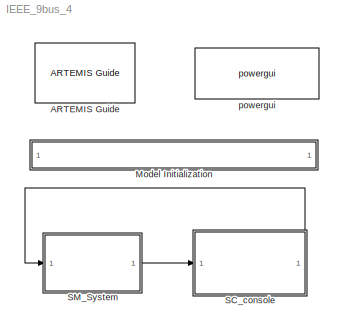
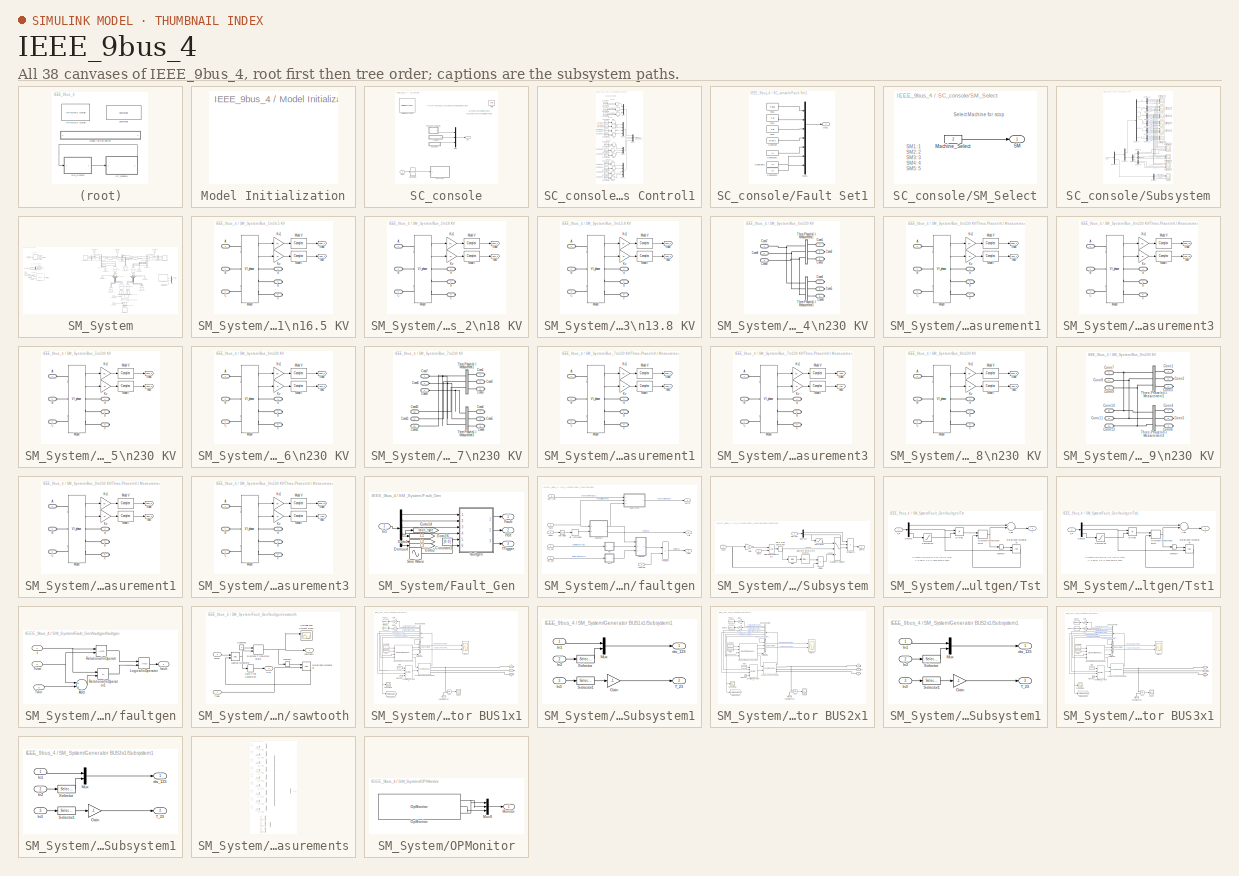
[diagram: thumbnail index - all 38 canvases of the model, root first then tree order]
MODEL IEEE_9bus_4
KIND model
CONFIG InitFcn = Ts=25e-6;Rs=5*1.867;cs=1.4080e-004;
CONFIG PostLoadFcn = Ts=25e-6;Rs=5*1.867;cs=1.4080e-004;
BLOCK [Reference] ARTEMIS Guide  REF=artemis/ARTEMIS/ARTEMIS Guide
  Description = 5.0_z1
  LF = off
  Ports = []
  RT_fullcomp = off
  SID = 1
  SPSRulesBlock = SPSRules
  SourceBlock = artemis/ARTEMIS/ARTEMIS Guide
  SourceType = ARTEMISmethode
  Tag = FTSSmethode_opal_4hx0r99
  Thy_Impulse = on
  Ts = Ts
  ao = on
  ct_mac = off
  ctmm = off
  custom_type = off
  dpl_type = ARTEMiS DPL
  dtc = Off
  dtc_extra = 1
  dtc_opt = true impulse event detection
  dtc_pied = 0.5
  dtc_sws = normal
  dyna = off
  lin_mov = off
  lock = on
  lsp = [0.001 2]
  nb_perm = 50
  opt = art5
  para = off
  paraExtinctionThy = off
  rlc_type = off
  simtype = off
  spike_skip = Disabled
  ssn = off
  ssn_ImpulseLoopBlockedStateUpdate = 2
  ssn_ext = off
  ssn_impulse = off
  ssn_impulse_loop = 2
  ssn_itvc = off
  ssn_ivic = off
  ssn_mov_iter_number = 5
  ssn_quasimpulse = off
  ssn_solver = Art5
  ssn_switch_iter_number = 5
  tre = on
BLOCK [SubSystem] Model Initialization
  CopyFcn = set_param(gcb,'LinkStatus','none')
  Ports = []
  RequestExecContextInheritance = off
  SID = 2
BLOCK [SubSystem] SC_console
  Ports = [1, 1]
  RequestExecContextInheritance = off
  SID = 3
BLOCK [SubSystem] SC_console/Breakers Control1
  Ports = [0, 1]
  RequestExecContextInheritance = off
  SID = 5
BLOCK [Outport] SC_console/Breakers Control1/BR_CTRL
  IconDisplay = Port number
  SID = 53
BLOCK [ManualSwitch] SC_console/Breakers Control1/Br1
  SID = 6
BLOCK [ManualSwitch] SC_console/Breakers Control1/Br10
  SID = 7
BLOCK [ManualSwitch] SC_console/Breakers Control1/Br11
  SID = 8
BLOCK [ManualSwitch] SC_console/Breakers Control1/Br12
  SID = 9
BLOCK [ManualSwitch] SC_console/Breakers Control1/Br13
  SID = 10
BLOCK [ManualSwitch] SC_console/Breakers Control1/Br14
  SID = 11
BLOCK [ManualSwitch] SC_console/Breakers Control1/Br2
  SID = 12
BLOCK [ManualSwitch] SC_console/Breakers Control1/Br3
  SID = 13
BLOCK [ManualSwitch] SC_console/Breakers Control1/Br4
  SID = 14
BLOCK [ManualSwitch] SC_console/Breakers Control1/Br5
  SID = 15
BLOCK [ManualSwitch] SC_console/Breakers Control1/Br6
  SID = 16
BLOCK [ManualSwitch] SC_console/Breakers Control1/Br7
  SID = 17
BLOCK [ManualSwitch] SC_console/Breakers Control1/Br8
  SID = 18
BLOCK [ManualSwitch] SC_console/Breakers Control1/Br9
  SID = 19
BLOCK [Constant] SC_console/Breakers Control1/Constant
  SID = 20
BLOCK [Constant] SC_console/Breakers Control1/Constant1
  SID = 21
  Value = 0
BLOCK [Constant] SC_console/Breakers Control1/Constant10
  SID = 22
BLOCK [Constant] SC_console/Breakers Control1/Constant11
  SID = 23
  Value = 0
BLOCK [Constant] SC_console/Breakers Control1/Constant12
  SID = 24
BLOCK [Constant] SC_console/Breakers Control1/Constant13
  SID = 25
  Value = 0
BLOCK [Constant] SC_console/Breakers Control1/Constant14
  SID = 26
BLOCK [Constant] SC_console/Breakers Control1/Constant15
  SID = 27
  Value = 0
BLOCK [Constant] SC_console/Breakers Control1/Constant16
  SID = 28
BLOCK [Constant] SC_console/Breakers Control1/Constant17
  SID = 29
  Value = 0
BLOCK [Constant] SC_console/Breakers Control1/Constant18
  SID = 30
BLOCK [Constant] SC_console/Breakers Control1/Constant19
  SID = 31
  Value = 0
BLOCK [Constant] SC_console/Breakers Control1/Constant2
  SID = 32
BLOCK [Constant] SC_console/Breakers Control1/Constant20
  SID = 33
BLOCK [Constant] SC_console/Breakers Control1/Constant21
  SID = 34
  Value = 0
BLOCK [Constant] SC_console/Breakers Control1/Constant22
  SID = 35
BLOCK [Constant] SC_console/Breakers Control1/Constant23
  SID = 36
  Value = 0
BLOCK [Constant] SC_console/Breakers Control1/Constant24
  SID = 37
BLOCK [Constant] SC_console/Breakers Control1/Constant25
  SID = 38
  Value = 0
BLOCK [Constant] SC_console/Breakers Control1/Constant26
  SID = 39
BLOCK [Constant] SC_console/Breakers Control1/Constant27
  SID = 40
  Value = 0
BLOCK [Constant] SC_console/Breakers Control1/Constant3
  SID = 41
  Value = 0
BLOCK [Constant] SC_console/Breakers Control1/Constant4
  SID = 42
BLOCK [Constant] SC_console/Breakers Control1/Constant5
  SID = 43
  Value = 0
BLOCK [Constant] SC_console/Breakers Control1/Constant6
  SID = 44
BLOCK [Constant] SC_console/Breakers Control1/Constant7
  SID = 45
  Value = 0
BLOCK [Constant] SC_console/Breakers Control1/Constant8
  SID = 46
BLOCK [Constant] SC_console/Breakers Control1/Constant9
  SID = 47
  Value = 0
BLOCK [Mux] SC_console/Breakers Control1/Mux
  DisplayOption = bar
  Inputs = 3
  Ports = [3, 1]
  SID = 48
BLOCK [Mux] SC_console/Breakers Control1/Mux1
  DisplayOption = bar
  Ports = [4, 1]
  SID = 49
BLOCK [Mux] SC_console/Breakers Control1/Mux2
  DisplayOption = bar
  Inputs = 3
  Ports = [3, 1]
  SID = 50
BLOCK [Mux] SC_console/Breakers Control1/Mux3
  DisplayOption = bar
  Ports = [4, 1]
  SID = 51
BLOCK [Mux] SC_console/Breakers Control1/Mux4
  DisplayOption = bar
  Ports = [4, 1]
  SID = 52
BLOCK [SubSystem] SC_console/Fault Set1
  Ports = [0, 1]
  RequestExecContextInheritance = off
  SID = 61
BLOCK [Constant] SC_console/Fault Set1/Constant
  SID = 62
  Value = Ftype-1
BLOCK [Constant] SC_console/Fault Set1/Constant1
  SID = 63
  Value = L1
BLOCK [Constant] SC_console/Fault Set1/Constant2
  SID = 64
  Value = L2
BLOCK [Constant] SC_console/Fault Set1/Constant3
  SID = 65
  Value = L3
BLOCK [Mux] SC_console/Fault Set1/Mux1
  DisplayOption = bar
  Inputs = [1 3 3 1 1 1 1]
  Ports = [7, 1]
  SID = 66
BLOCK [Outport] SC_console/Fault Set1/Out1
  IconDisplay = Port number
  InitialOutput = 0
  SID = 70
BLOCK [Constant] SC_console/Fault Set1/Tacq
  SID = 67
  Value = Tacq
BLOCK [Constant] SC_console/Fault Set1/Tdrp
  SID = 68
  Value = Tdr
BLOCK [Constant] SC_console/Fault Set1/Tstp
  SID = 69
  Value = Tst
BLOCK [Reference] SC_console/Help  REF=artemis/Internal/Help
  Ports = []
  SID = 71
  SourceBlock = artemis/Internal/Help
  SourceType = OpDoc
  docfile = ..\\help\\adgrid22_7bus_hvac.html
BLOCK [Mux] SC_console/Mux
  DisplayOption = bar
  Inputs = 3
  Ports = [3, 1]
  SID = 72
BLOCK [Reference] SC_console/OpComm1  REF=rtlab/OpComm
  Interpolation = on
  Missed_Data = off
  Offset = off
  Ports = [1, 1]
  SID = 73
  Samples = off
  Sim_Time = off
  SourceBlock = rtlab/OpComm
  SourceType = RT-LAB OpComm
  Synchronization = on
  Threshold = 1.0
  dynSigOut = off
  from_console = 0
  groupe_acq = 1
  nbport = 1
  st = 0
  subsys_rate = 0
  warning_done = off
  writeOpCommFile = off
BLOCK [SubSystem] SC_console/SM_Select
  Ports = [0, 1]
  RequestExecContextInheritance = off
  SID = 74
BLOCK [Constant] SC_console/SM_Select/Machine_Select
  SID = 75
  Value = 2
BLOCK [Outport] SC_console/SM_Select/SM
  IconDisplay = Port number
  SID = 76
BLOCK [SubSystem] SC_console/Subsystem
  Ports = [1]
  RequestExecContextInheritance = off
  SID = 1170
BLOCK [Demux] SC_console/Subsystem/Demux1
  DisplayOption = bar
  Outputs = [99 9]
  Ports = [1, 2]
  SID = 59
BLOCK [Demux] SC_console/Subsystem/Demux10
  DisplayOption = bar
  Outputs = [3 3 2 3]
  Ports = [1, 4]
  SID = 1129
BLOCK [Demux] SC_console/Subsystem/Demux11
  DisplayOption = bar
  Outputs = [3 3 2 3]
  Ports = [1, 4]
  SID = 2482
BLOCK [Demux] SC_console/Subsystem/Demux12
  DisplayOption = bar
  Outputs = [3 3 2 3]
  Ports = [1, 4]
  SID = 2484
BLOCK [Demux] SC_console/Subsystem/Demux13
  DisplayOption = bar
  Outputs = [3 3 2 3]
  Ports = [1, 4]
  SID = 2486
BLOCK [Demux] SC_console/Subsystem/Demux14
  DisplayOption = bar
  Outputs = [108 3]
  Ports = [1, 2]
  SID = 2477
BLOCK [Demux] SC_console/Subsystem/Demux2
  DisplayOption = bar
  Outputs = 3
  Ports = [1, 3]
  SID = 1119
BLOCK [Demux] SC_console/Subsystem/Demux3
  DisplayOption = bar
  Outputs = [2 1]
  Ports = [1, 2]
  SID = 1120
BLOCK [Demux] SC_console/Subsystem/Demux4
  DisplayOption = bar
  Outputs = [2 1]
  Ports = [1, 2]
  SID = 1121
BLOCK [Demux] SC_console/Subsystem/Demux5
  DisplayOption = bar
  Outputs = 3
  Ports = [1, 3]
  SID = 60
BLOCK [Demux] SC_console/Subsystem/Demux6
  DisplayOption = bar
  Outputs = [2 1]
  Ports = [1, 2]
  SID = 1122
BLOCK [Demux] SC_console/Subsystem/Demux7
  DisplayOption = bar
  Outputs = [3 3 2 3]
  Ports = [1, 4]
  SID = 2478
BLOCK [Demux] SC_console/Subsystem/Demux8
  DisplayOption = bar
  Outputs = [3 3 2 3]
  Ports = [1, 4]
  SID = 2480
BLOCK [Demux] SC_console/Subsystem/Demux9
  DisplayOption = bar
  Outputs = [11 11 11 11 11 11 11 11 11]
  Ports = [1, 9]
  SID = 1128
BLOCK [Inport] SC_console/Subsystem/In3
  IconDisplay = Port number
  SID = 1173
BLOCK [Scope] SC_console/Subsystem/Voltage and Current Bus1
  DataFormat = StructureWithTime
  Floating = off
  LimitDataPoints = off
  MaxDataPoints = 15000
  NumInputPorts = 4
  Ports = [4]
  SID = 1123
  SampleTime = 0
  SaveName = mach10
  ShowLegends = off
  TimeRange = 0.1
  YMax = 1.25~0.75~0.3~1.00001
  YMin = -1.25~-0.75~-0.5~1
  ZoomMode = xonly
BLOCK [Scope] SC_console/Subsystem/Voltage and Current Bus2
  DataFormat = StructureWithTime
  Floating = off
  LimitDataPoints = off
  MaxDataPoints = 15000
  NumInputPorts = 4
  Ports = [4]
  SID = 1124
  SampleTime = 0
  SaveName = mach11
  ShowLegends = off
  TimeRange = 0.1
  YMax = 1.25~0.75~0.3~1.00001
  YMin = -1.25~-0.75~-0.5~1
  ZoomMode = xonly
BLOCK [Scope] SC_console/Subsystem/Voltage and Current Bus3
  DataFormat = StructureWithTime
  Floating = off
  LimitDataPoints = off
  MaxDataPoints = 15000
  NumInputPorts = 4
  Ports = [4]
  SID = 1125
  SampleTime = 0
  SaveName = mach12
  ShowLegends = off
  TimeRange = 0.1
  YMax = 1.25~0.75~0.3~1.00001
  YMin = -1.25~-0.75~-0.5~1
  ZoomMode = xonly
BLOCK [Scope] SC_console/Subsystem/Voltage and Current Bus4
  DataFormat = StructureWithTime
  Floating = off
  MaxDataPoints = 15000
  NumInputPorts = 4
  Ports = [4]
  SID = 1133
  SampleTime = 0
  SaveName = mach13
  ShowLegends = off
  TimeRange = 0.1
  YMax = 1~0.9~0.5~5
  YMin = -1~-0.9~-0.8~-5
  ZoomMode = xonly
BLOCK [Scope] SC_console/Subsystem/Voltage and Current Bus5
  DataFormat = StructureWithTime
  Floating = off
  MaxDataPoints = 15000
  NumInputPorts = 4
  Ports = [4]
  SID = 2479
  SampleTime = 0
  SaveName = mach
  ShowLegends = off
  TimeRange = 0.1
  YMax = 1~0.9~0.5~5
  YMin = -1~-0.9~-0.8~-5
  ZoomMode = xonly
BLOCK [Scope] SC_console/Subsystem/Voltage and Current Bus6
  DataFormat = StructureWithTime
  Floating = off
  MaxDataPoints = 15000
  NumInputPorts = 4
  Ports = [4]
  SID = 2481
  SampleTime = 0
  SaveName = mach1
  ShowLegends = off
  TimeRange = 0.1
  YMax = 1~0.9~0.5~5
  YMin = -1~-0.9~-0.8~-5
  ZoomMode = xonly
BLOCK [Scope] SC_console/Subsystem/Voltage and Current Bus7
  DataFormat = StructureWithTime
  Floating = off
  MaxDataPoints = 15000
  NumInputPorts = 4
  Ports = [4]
  SID = 2483
  SampleTime = 0
  SaveName = mach3
  ShowLegends = off
  TimeRange = 0.1
  YMax = 1~0.9~0.5~5
  YMin = -1~-0.9~-0.8~-5
  ZoomMode = xonly
BLOCK [Scope] SC_console/Subsystem/Voltage and Current Bus8
  DataFormat = StructureWithTime
  Floating = off
  MaxDataPoints = 15000
  NumInputPorts = 4
  Ports = [4]
  SID = 2485
  SampleTime = 0
  SaveName = mach4
  ShowLegends = off
  TimeRange = 0.1
  YMax = 1~0.9~0.5~5
  YMin = -1~-0.9~-0.8~-5
  ZoomMode = xonly
BLOCK [Scope] SC_console/Subsystem/Voltage and Current Bus9
  DataFormat = StructureWithTime
  Floating = off
  MaxDataPoints = 15000
  NumInputPorts = 4
  Ports = [4]
  SID = 2487
  SampleTime = 0
  SaveName = mach5
  ShowLegends = off
  TimeRange = 0.1
  YMax = 1~0.9~0.5~5
  YMin = -1~-0.9~-0.8~-5
  ZoomMode = xonly
BLOCK [Scope] SC_console/Subsystem/siminfo1
  DataFormat = StructureWithTime
  Floating = off
  MaxDataPoints = 15000
  NumInputPorts = 3
  Ports = [3]
  SID = 92
  SampleTime = 0
  SaveName = mach2
  ShowLegends = off
  TimeRange = 0.8
  YMax = 1~1~1
  YMin = -1~-1~-1
BLOCK [Outport] SC_console/ctrl
  IconDisplay = Port number
  SID = 94
BLOCK [Inport] SC_console/meas
  IconDisplay = Port number
  SID = 4
BLOCK [Reference] SC_console/www.opal-rt.com1  REF=artemis/Internal/www.opal-rt.com
  FunctionWithSeparateData = off
  GeneratePreprocessorConditionals = off
  Ports = []
  SID = 93
  ShowPortLabels = FromPortIcon
  SourceBlock = artemis/Internal/www.opal-rt.com
  SystemSampleTime = -1
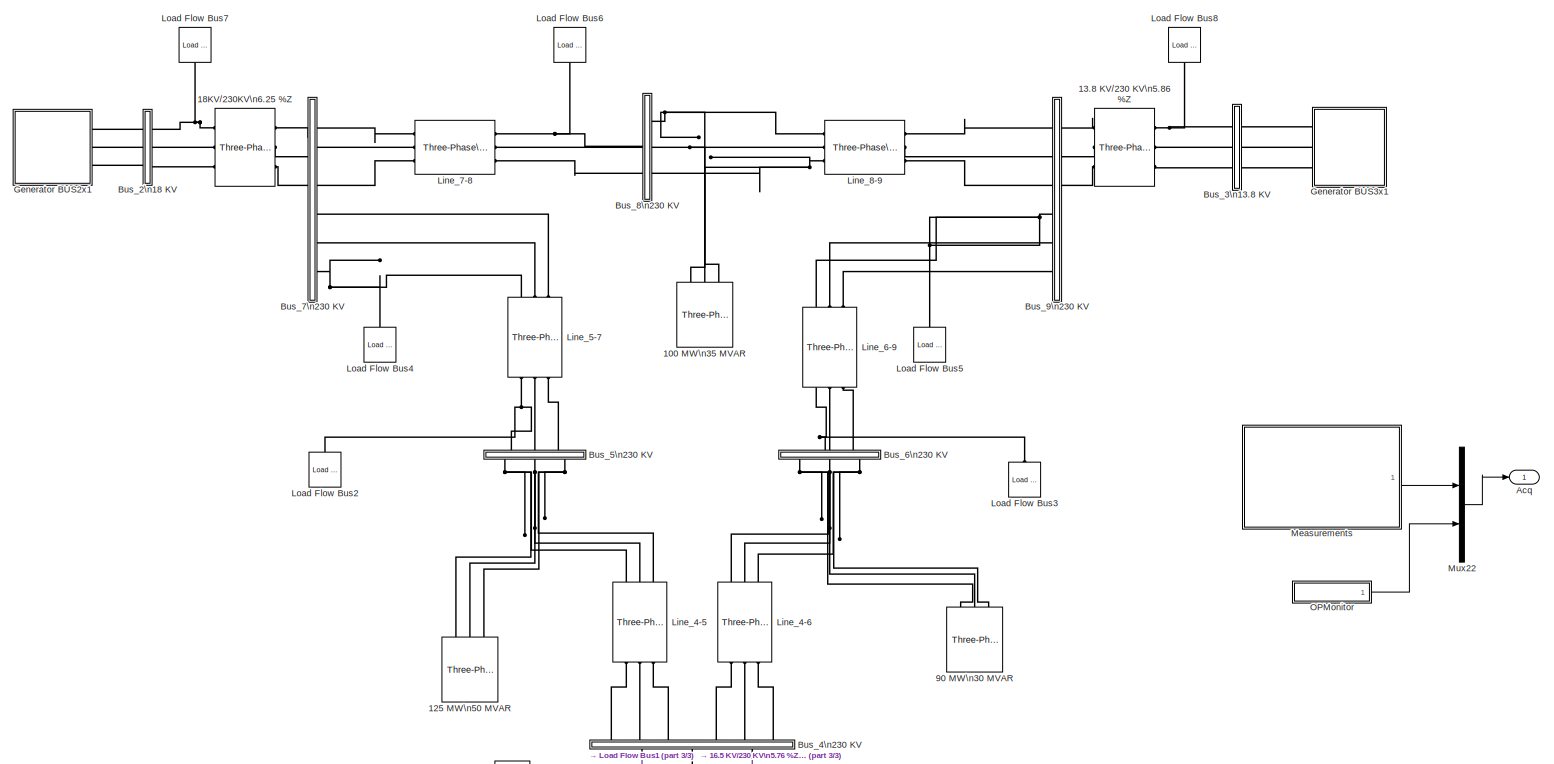
[diagram: SM_System - part 1/3, middle right region]
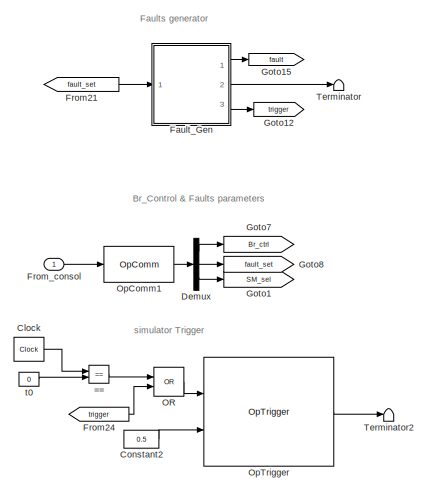
[diagram: SM_System - part 2/3, top left region]
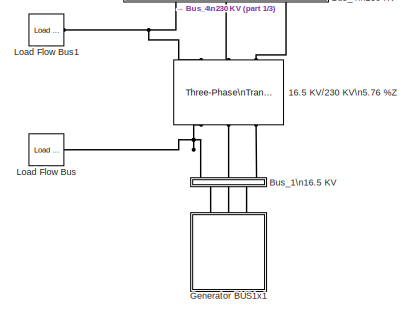
[diagram: SM_System - part 3/3, bottom center region]
BLOCK [SubSystem] SM_System
  Ports = [1, 1]
  RequestExecContextInheritance = off
  SID = 101
BLOCK [Reference] SM_System/100 MW\n35 MVAR  REF=powerlib/Elements/Three-Phase\nSeries RLC Load
  ActivePower = 100e6
  AttributesFormatString = \\n
  CapacitivePower = 0
  Configuration = Y (grounded)
  InductivePower = 35e6
  LConnTagsString = A|B|C
  LoadType = constant PQ
  Measurements = Branch voltages and currents
  NominalFrequency = 60
  NominalVoltage = (230000)*1.01601
  Ports = [0, 0, 0, 0, 0, 3]
  SID = 2224
  SourceBlock = powerlib/Elements/Three-Phase\nSeries RLC Load
  SourceType = Three-Phase Series RLC Load
BLOCK [Reference] SM_System/125 MW\n50 MVAR  REF=powerlib/Elements/Three-Phase\nSeries RLC Load
  ActivePower = 125e6
  AttributesFormatString = \\n
  CapacitivePower = 0
  Configuration = Y (grounded)
  InductivePower = 50e6
  LConnTagsString = A|B|C
  LoadType = constant PQ
  Measurements = Branch voltages and currents
  NominalFrequency = 60
  NominalVoltage = (230000)*0.996126
  Ports = [0, 0, 0, 0, 0, 3]
  SID = 2225
  SourceBlock = powerlib/Elements/Three-Phase\nSeries RLC Load
  SourceType = Three-Phase Series RLC Load
BLOCK [Reference] SM_System/13.8 KV//230 KV\n5.86 %Z  REF=powerlib/Elements/Three-Phase\nTransformer\n(Two Windings)
  BreakLoop = off
  DataFile = 'hysteresis'
  DataType = off
  Hysteresis = off
  InitialFluxes = [ 0.8 , -0.8 , 0.7 ]
  Lm = inf
  Measurements = None
  MoreParameters = off
  NominalPower = [ 128e6 , 60 ]
  Ports = [0, 0, 0, 0, 0, 3, 3]
  Rm = inf
  SID = 2226
  Saturation = [ 0,0 ; 0.0024,1.2 ; 1.0,1.52 ]
  SetInitialFlux = off
  SetSaturation = off
  SourceBlock = powerlib/Elements/Three-Phase\nTransformer\n(Two Windings)
  SourceType = Three-Phase Transformer (Two Windings)
  TransfoNumber = 1
  UNITS = pu
  Winding1 = [ 13.8e3 , 1e-6 , 0.0 ]
  Winding1Connection = Yg
  Winding2 = [ 230e3 , 1e-6, 0.075008 ]
  Winding2Connection = Yg
BLOCK [Reference] SM_System/16.5 KV//230 KV\n5.76 %Z       REF=powerlib/Elements/Three-Phase\nTransformer\n(Two Windings)
  BreakLoop = off
  DataFile = 'hysteresis'
  DataType = off
  Hysteresis = off
  InitialFluxes = [ 0.8 , -0.8 , 0.7 ]
  Lm = inf
  Measurements = None
  MoreParameters = off
  NominalPower = [ 247.5e6 , 60 ]
  Ports = [0, 0, 0, 0, 0, 3, 3]
  Rm = inf
  SID = 2227
  Saturation = [ 0,0 ; 0.0024,1.2 ; 1.0,1.52 ]
  SetInitialFlux = off
  SetSaturation = off
  SourceBlock = powerlib/Elements/Three-Phase\nTransformer\n(Two Windings)
  SourceType = Three-Phase Transformer (Two Windings)
  TransfoNumber = 1
  UNITS = pu
  Winding1 = [ 16.5e3 , 1e-6, 0.0 ]
  Winding1Connection = Yg
  Winding2 = [ 230e3 ,1e-6, 0.14256 ]
  Winding2Connection = Yg
BLOCK [Reference] SM_System/18KV//230KV\n6.25 %Z  REF=powerlib/Elements/Three-Phase\nTransformer\n(Two Windings)
  BreakLoop = off
  DataFile = 'hysteresis'
  DataType = off
  Hysteresis = off
  InitialFluxes = [ 0.8 , -0.8 , 0.7 ]
  Lm = inf
  Measurements = None
  MoreParameters = off
  NominalPower = [ 192e6 , 60 ]
  Ports = [0, 0, 0, 0, 0, 3, 3]
  Rm = inf
  SID = 2228
  Saturation = [ 0,0 ; 0.0024,1.2 ; 1.0,1.52 ]
  SetInitialFlux = off
  SetSaturation = off
  SourceBlock = powerlib/Elements/Three-Phase\nTransformer\n(Two Windings)
  SourceType = Three-Phase Transformer (Two Windings)
  TransfoNumber = 1
  UNITS = pu
  Winding1 = [ 18e3 , 1e-6 , 0.0 ]
  Winding1Connection = Yg
  Winding2 = [ 230e3 , 1e-6, 0.12 ]
  Winding2Connection = Yg
BLOCK [Reference] SM_System/90 MW\n30 MVAR  REF=powerlib/Elements/Three-Phase\nSeries RLC Load
  ActivePower = 90e6
  AttributesFormatString = \\n
  CapacitivePower = 0
  Configuration = Y (grounded)
  InductivePower = 30e6
  LConnTagsString = A|B|C
  LoadType = constant PQ
  Measurements = Branch voltages and currents
  NominalFrequency = 60
  NominalVoltage = (230000)*1.01311
  Ports = [0, 0, 0, 0, 0, 3]
  SID = 2229
  SourceBlock = powerlib/Elements/Three-Phase\nSeries RLC Load
  SourceType = Three-Phase Series RLC Load
BLOCK [RelationalOperator] SM_System/==
  Operator = ==
  Ports = [2, 1]
  SID = 106
BLOCK [Outport] SM_System/Acq
  IconDisplay = Port number
  SID = 674
BLOCK [SubSystem] SM_System/Bus_1\n16.5 KV
  CloseFcn = sps_rtmsupport('CloseFcn',gcbh);
  CopyFcn = sps_rtmsupport('CopyFcn',gcbh); powericon('ThreePhaseVIMeasurementCopy',gcb)
  DeleteFcn = sps_rtmsupport('DeleteFcn',gcbh);
  DialogController = POWERSYS.PowerSysDialog
  LoadFcn = sps_rtmsupport('LoadFcn',gcbh);
  ModelCloseFcn = sps_rtmsupport('ModelCloseFcn',gcbh);
  NameChangeFcn = sps_rtmsupport('NameChangeFcn',gcbh);
  OpenFcn = sps_rtmsupport('OpenFcn',gcbh, [1 2 4 5 6 7 9 -12 13]);
  Ports = [0, 0, 0, 0, 0, 3, 3]
  PostSaveFcn = sps_rtmsupport('PostSaveFcn',gcbh);
  PreCopyFcn = sps_rtmsupport('PreCopyFcn',gcbh);
  PreDeleteFcn = sps_rtmsupport('PreDeleteFcn',gcbh);
  PreSaveFcn = sps_rtmsupport('PreSaveFcn',gcbh);  set_param(gcb,'LinkStatus','restore')\n
  RequestExecContextInheritance = off
  SID = 2230
  StartFcn = sps_rtmsupport('StartFcn',gcbh);
  StopFcn = sps_rtmsupport('StopFcn',gcbh);
  UndoDeleteFcn = sps_rtmsupport('UndoDeleteFcn',gcbh);
BLOCK [PMIOPort] SM_System/Bus_1\n16.5 KV/A
  Port = 1
  SID = 2230:5
  Side = Left
BLOCK [PMIOPort] SM_System/Bus_1\n16.5 KV/B
  Port = 2
  SID = 2230:6
  Side = Left
BLOCK [PMIOPort] SM_System/Bus_1\n16.5 KV/C
  Port = 3
  SID = 2230:7
  Side = Left
BLOCK [Goto] SM_System/Bus_1\n16.5 KV/Iabc
  GotoTag = Iabc_1
  SID = 2230:526
  TagVisibility = global
BLOCK [Gain] SM_System/Bus_1\n16.5 KV/Kv
  Gain = Ki
  SID = 2230:99
BLOCK [Gain] SM_System/Bus_1\n16.5 KV/Kv1
  Gain = Kv
  SID = 2230:100
BLOCK [Reference] SM_System/Bus_1\n16.5 KV/Mode I  REF=spsVIMeasurementModel/Complex
  Ports = [1, 1]
  SID = 2230:523
  SourceBlock = spsVIMeasurementModel/Complex
  SourceType = SubSystem
BLOCK [Reference] SM_System/Bus_1\n16.5 KV/Mode V  REF=spsVIMeasurementModel/Complex
  Ports = [1, 1]
  SID = 2230:522
  SourceBlock = spsVIMeasurementModel/Complex
  SourceType = SubSystem
BLOCK [Reference] SM_System/Bus_1\n16.5 KV/Model  REF=spsVIMeasurementModel/VI_phase
  FunctionWithSeparateData = off
  GeneratePreprocessorConditionals = off
  Ports = [0, 2, 0, 0, 0, 3, 3]
  SID = 2230:524
  ShowPortLabels = FromPortIcon
  SourceBlock = spsVIMeasurementModel/VI_phase
  SourceType = SimPowerSystems Three-Phase VI Measurement
  SystemSampleTime = -1
BLOCK [Goto] SM_System/Bus_1\n16.5 KV/Vabc
  GotoTag = Vabc_1
  SID = 2230:525
  TagVisibility = global
BLOCK [PMIOPort] SM_System/Bus_1\n16.5 KV/a
  Port = 4
  SID = 2230:8
  Side = Right
BLOCK [PMIOPort] SM_System/Bus_1\n16.5 KV/b
  Port = 5
  SID = 2230:9
  Side = Right
BLOCK [PMIOPort] SM_System/Bus_1\n16.5 KV/c
  Port = 6
  SID = 2230:10
  Side = Right
BLOCK [SubSystem] SM_System/Bus_2\n18 KV
  CloseFcn = sps_rtmsupport('CloseFcn',gcbh);
  CopyFcn = sps_rtmsupport('CopyFcn',gcbh); powericon('ThreePhaseVIMeasurementCopy',gcb)
  DeleteFcn = sps_rtmsupport('DeleteFcn',gcbh);
  DialogController = POWERSYS.PowerSysDialog
  LoadFcn = sps_rtmsupport('LoadFcn',gcbh);
  ModelCloseFcn = sps_rtmsupport('ModelCloseFcn',gcbh);
  NameChangeFcn = sps_rtmsupport('NameChangeFcn',gcbh);
  OpenFcn = sps_rtmsupport('OpenFcn',gcbh, [1 2 4 5 6 7 9 -12 13]);
  Ports = [0, 0, 0, 0, 0, 3, 3]
  PostSaveFcn = sps_rtmsupport('PostSaveFcn',gcbh);
  PreCopyFcn = sps_rtmsupport('PreCopyFcn',gcbh);
  PreDeleteFcn = sps_rtmsupport('PreDeleteFcn',gcbh);
  PreSaveFcn = sps_rtmsupport('PreSaveFcn',gcbh);  set_param(gcb,'LinkStatus','restore')\n
  RequestExecContextInheritance = off
  SID = 2231
  StartFcn = sps_rtmsupport('StartFcn',gcbh);
  StopFcn = sps_rtmsupport('StopFcn',gcbh);
  UndoDeleteFcn = sps_rtmsupport('UndoDeleteFcn',gcbh);
BLOCK [PMIOPort] SM_System/Bus_2\n18 KV/A
  Port = 1
  SID = 2231:5
  Side = Left
BLOCK [PMIOPort] SM_System/Bus_2\n18 KV/B
  Port = 2
  SID = 2231:6
  Side = Left
BLOCK [PMIOPort] SM_System/Bus_2\n18 KV/C
  Port = 3
  SID = 2231:7
  Side = Left
BLOCK [Goto] SM_System/Bus_2\n18 KV/Iabc
  GotoTag = Iabc_2
  SID = 2231:526
  TagVisibility = global
BLOCK [Gain] SM_System/Bus_2\n18 KV/Kv
  Gain = Ki
  SID = 2231:99
BLOCK [Gain] SM_System/Bus_2\n18 KV/Kv1
  Gain = Kv
  SID = 2231:100
BLOCK [Reference] SM_System/Bus_2\n18 KV/Mode I  REF=spsVIMeasurementModel/Complex
  Ports = [1, 1]
  SID = 2231:523
  SourceBlock = spsVIMeasurementModel/Complex
  SourceType = SubSystem
BLOCK [Reference] SM_System/Bus_2\n18 KV/Mode V  REF=spsVIMeasurementModel/Complex
  Ports = [1, 1]
  SID = 2231:522
  SourceBlock = spsVIMeasurementModel/Complex
  SourceType = SubSystem
BLOCK [Reference] SM_System/Bus_2\n18 KV/Model  REF=spsVIMeasurementModel/VI_phase
  FunctionWithSeparateData = off
  GeneratePreprocessorConditionals = off
  Ports = [0, 2, 0, 0, 0, 3, 3]
  SID = 2231:524
  ShowPortLabels = FromPortIcon
  SourceBlock = spsVIMeasurementModel/VI_phase
  SourceType = SimPowerSystems Three-Phase VI Measurement
  SystemSampleTime = -1
BLOCK [Goto] SM_System/Bus_2\n18 KV/Vabc
  GotoTag = Vabc_2
  SID = 2231:525
  TagVisibility = global
BLOCK [PMIOPort] SM_System/Bus_2\n18 KV/a
  Port = 4
  SID = 2231:8
  Side = Right
BLOCK [PMIOPort] SM_System/Bus_2\n18 KV/b
  Port = 5
  SID = 2231:9
  Side = Right
BLOCK [PMIOPort] SM_System/Bus_2\n18 KV/c
  Port = 6
  SID = 2231:10
  Side = Right
BLOCK [SubSystem] SM_System/Bus_3\n13.8 KV
  CloseFcn = sps_rtmsupport('CloseFcn',gcbh);
  CopyFcn = sps_rtmsupport('CopyFcn',gcbh); powericon('ThreePhaseVIMeasurementCopy',gcb)
  DeleteFcn = sps_rtmsupport('DeleteFcn',gcbh);
  DialogController = POWERSYS.PowerSysDialog
  LoadFcn = sps_rtmsupport('LoadFcn',gcbh);
  ModelCloseFcn = sps_rtmsupport('ModelCloseFcn',gcbh);
  NameChangeFcn = sps_rtmsupport('NameChangeFcn',gcbh);
  OpenFcn = sps_rtmsupport('OpenFcn',gcbh, [1 2 4 5 6 7 9 -12 13]);
  Ports = [0, 0, 0, 0, 0, 3, 3]
  PostSaveFcn = sps_rtmsupport('PostSaveFcn',gcbh);
  PreCopyFcn = sps_rtmsupport('PreCopyFcn',gcbh);
  PreDeleteFcn = sps_rtmsupport('PreDeleteFcn',gcbh);
  PreSaveFcn = sps_rtmsupport('PreSaveFcn',gcbh);  set_param(gcb,'LinkStatus','restore')\n
  RequestExecContextInheritance = off
  SID = 2232
  StartFcn = sps_rtmsupport('StartFcn',gcbh);
  StopFcn = sps_rtmsupport('StopFcn',gcbh);
  UndoDeleteFcn = sps_rtmsupport('UndoDeleteFcn',gcbh);
BLOCK [PMIOPort] SM_System/Bus_3\n13.8 KV/A
  Port = 1
  SID = 2232:5
  Side = Left
BLOCK [PMIOPort] SM_System/Bus_3\n13.8 KV/B
  Port = 2
  SID = 2232:6
  Side = Left
BLOCK [PMIOPort] SM_System/Bus_3\n13.8 KV/C
  Port = 3
  SID = 2232:7
  Side = Left
BLOCK [Goto] SM_System/Bus_3\n13.8 KV/Iabc
  GotoTag = Iabc_3
  SID = 2232:526
  TagVisibility = global
BLOCK [Gain] SM_System/Bus_3\n13.8 KV/Kv
  Gain = Ki
  SID = 2232:99
BLOCK [Gain] SM_System/Bus_3\n13.8 KV/Kv1
  Gain = Kv
  SID = 2232:100
BLOCK [Reference] SM_System/Bus_3\n13.8 KV/Mode I  REF=spsVIMeasurementModel/Complex
  Ports = [1, 1]
  SID = 2232:523
  SourceBlock = spsVIMeasurementModel/Complex
  SourceType = SubSystem
BLOCK [Reference] SM_System/Bus_3\n13.8 KV/Mode V  REF=spsVIMeasurementModel/Complex
  Ports = [1, 1]
  SID = 2232:522
  SourceBlock = spsVIMeasurementModel/Complex
  SourceType = SubSystem
BLOCK [Reference] SM_System/Bus_3\n13.8 KV/Model  REF=spsVIMeasurementModel/VI_phase
  FunctionWithSeparateData = off
  GeneratePreprocessorConditionals = off
  Ports = [0, 2, 0, 0, 0, 3, 3]
  SID = 2232:524
  ShowPortLabels = FromPortIcon
  SourceBlock = spsVIMeasurementModel/VI_phase
  SourceType = SimPowerSystems Three-Phase VI Measurement
  SystemSampleTime = -1
BLOCK [Goto] SM_System/Bus_3\n13.8 KV/Vabc
  GotoTag = Vabc_3
  SID = 2232:525
  TagVisibility = global
BLOCK [PMIOPort] SM_System/Bus_3\n13.8 KV/a
  Port = 4
  SID = 2232:8
  Side = Right
BLOCK [PMIOPort] SM_System/Bus_3\n13.8 KV/b
  Port = 5
  SID = 2232:9
  Side = Right
BLOCK [PMIOPort] SM_System/Bus_3\n13.8 KV/c
  Port = 6
  SID = 2232:10
  Side = Right
BLOCK [SubSystem] SM_System/Bus_4\n230 KV
  Ports = [0, 0, 0, 0, 0, 3, 6]
  RequestExecContextInheritance = off
  SID = 2233
BLOCK [PMIOPort] SM_System/Bus_4\n230 KV/Conn1
  Port = 4
  SID = 2239
  Side = Right
BLOCK [PMIOPort] SM_System/Bus_4\n230 KV/Conn2
  Port = 5
  SID = 2240
  Side = Right
BLOCK [PMIOPort] SM_System/Bus_4\n230 KV/Conn3
  Port = 6
  SID = 2241
  Side = Right
BLOCK [PMIOPort] SM_System/Bus_4\n230 KV/Conn4
  Port = 7
  SID = 2242
  Side = Right
BLOCK [PMIOPort] SM_System/Bus_4\n230 KV/Conn5
  Port = 8
  SID = 2243
  Side = Right
BLOCK [PMIOPort] SM_System/Bus_4\n230 KV/Conn6
  Port = 9
  SID = 2244
  Side = Right
BLOCK [PMIOPort] SM_System/Bus_4\n230 KV/Conn7
  Port = 1
  SID = 2236
  Side = Left
BLOCK [PMIOPort] SM_System/Bus_4\n230 KV/Conn8
  Port = 2
  SID = 2237
  Side = Left
BLOCK [PMIOPort] SM_System/Bus_4\n230 KV/Conn9
  Port = 3
  SID = 2238
  Side = Left
BLOCK [SubSystem] SM_System/Bus_4\n230 KV/Three-Phase\nV-I Measurement1
  CloseFcn = sps_rtmsupport('CloseFcn',gcbh);
  CopyFcn = sps_rtmsupport('CopyFcn',gcbh); powericon('ThreePhaseVIMeasurementCopy',gcb)
  DeleteFcn = sps_rtmsupport('DeleteFcn',gcbh);
  DialogController = POWERSYS.PowerSysDialog
  LoadFcn = sps_rtmsupport('LoadFcn',gcbh);
  ModelCloseFcn = sps_rtmsupport('ModelCloseFcn',gcbh);
  NameChangeFcn = sps_rtmsupport('NameChangeFcn',gcbh);
  OpenFcn = sps_rtmsupport('OpenFcn',gcbh, [1 2 4 5 6 7 9 -12 13]);
  Ports = [0, 0, 0, 0, 0, 3, 3]
  PostSaveFcn = sps_rtmsupport('PostSaveFcn',gcbh);
  PreCopyFcn = sps_rtmsupport('PreCopyFcn',gcbh);
  PreDeleteFcn = sps_rtmsupport('PreDeleteFcn',gcbh);
  PreSaveFcn = sps_rtmsupport('PreSaveFcn',gcbh);  set_param(gcb,'LinkStatus','restore')\n
  RequestExecContextInheritance = off
  SID = 2234
  StartFcn = sps_rtmsupport('StartFcn',gcbh);
  StopFcn = sps_rtmsupport('StopFcn',gcbh);
  UndoDeleteFcn = sps_rtmsupport('UndoDeleteFcn',gcbh);
BLOCK [PMIOPort] SM_System/Bus_4\n230 KV/Three-Phase\nV-I Measurement1/A
  Port = 1
  SID = 2234:5
  Side = Left
BLOCK [PMIOPort] SM_System/Bus_4\n230 KV/Three-Phase\nV-I Measurement1/B
  Port = 2
  SID = 2234:6
  Side = Left
BLOCK [PMIOPort] SM_System/Bus_4\n230 KV/Three-Phase\nV-I Measurement1/C
  Port = 3
  SID = 2234:7
  Side = Left
BLOCK [Goto] SM_System/Bus_4\n230 KV/Three-Phase\nV-I Measurement1/Iabc
  GotoTag = Iabc_4
  SID = 2234:526
  TagVisibility = global
BLOCK [Gain] SM_System/Bus_4\n230 KV/Three-Phase\nV-I Measurement1/Kv
  Gain = Ki
  SID = 2234:99
BLOCK [Gain] SM_System/Bus_4\n230 KV/Three-Phase\nV-I Measurement1/Kv1
  Gain = Kv
  SID = 2234:100
BLOCK [Reference] SM_System/Bus_4\n230 KV/Three-Phase\nV-I Measurement1/Mode I  REF=spsVIMeasurementModel/Complex
  Ports = [1, 1]
  SID = 2234:523
  SourceBlock = spsVIMeasurementModel/Complex
  SourceType = SubSystem
BLOCK [Reference] SM_System/Bus_4\n230 KV/Three-Phase\nV-I Measurement1/Mode V  REF=spsVIMeasurementModel/Complex
  Ports = [1, 1]
  SID = 2234:522
  SourceBlock = spsVIMeasurementModel/Complex
  SourceType = SubSystem
BLOCK [Reference] SM_System/Bus_4\n230 KV/Three-Phase\nV-I Measurement1/Model  REF=spsVIMeasurementModel/VI_phase
  FunctionWithSeparateData = off
  GeneratePreprocessorConditionals = off
  Ports = [0, 2, 0, 0, 0, 3, 3]
  SID = 2234:524
  ShowPortLabels = FromPortIcon
  SourceBlock = spsVIMeasurementModel/VI_phase
  SourceType = SimPowerSystems Three-Phase VI Measurement
  SystemSampleTime = -1
BLOCK [Goto] SM_System/Bus_4\n230 KV/Three-Phase\nV-I Measurement1/Vabc
  GotoTag = Vabc_4
  SID = 2234:525
  TagVisibility = global
BLOCK [PMIOPort] SM_System/Bus_4\n230 KV/Three-Phase\nV-I Measurement1/a
  Port = 4
  SID = 2234:8
  Side = Right
BLOCK [PMIOPort] SM_System/Bus_4\n230 KV/Three-Phase\nV-I Measurement1/b
  Port = 5
  SID = 2234:9
  Side = Right
BLOCK [PMIOPort] SM_System/Bus_4\n230 KV/Three-Phase\nV-I Measurement1/c
  Port = 6
  SID = 2234:10
  Side = Right
BLOCK [SubSystem] SM_System/Bus_4\n230 KV/Three-Phase\nV-I Measurement3
  CloseFcn = sps_rtmsupport('CloseFcn',gcbh);
  CopyFcn = sps_rtmsupport('CopyFcn',gcbh); powericon('ThreePhaseVIMeasurementCopy',gcb)
  DeleteFcn = sps_rtmsupport('DeleteFcn',gcbh);
  DialogController = POWERSYS.PowerSysDialog
  LoadFcn = sps_rtmsupport('LoadFcn',gcbh);
  ModelCloseFcn = sps_rtmsupport('ModelCloseFcn',gcbh);
  NameChangeFcn = sps_rtmsupport('NameChangeFcn',gcbh);
  OpenFcn = sps_rtmsupport('OpenFcn',gcbh, [1 2 4 5 6 7 9 -12 13]);
  Ports = [0, 0, 0, 0, 0, 3, 3]
  PostSaveFcn = sps_rtmsupport('PostSaveFcn',gcbh);
  PreCopyFcn = sps_rtmsupport('PreCopyFcn',gcbh);
  PreDeleteFcn = sps_rtmsupport('PreDeleteFcn',gcbh);
  PreSaveFcn = sps_rtmsupport('PreSaveFcn',gcbh);  set_param(gcb,'LinkStatus','restore')\n
  RequestExecContextInheritance = off
  SID = 2235
  StartFcn = sps_rtmsupport('StartFcn',gcbh);
  StopFcn = sps_rtmsupport('StopFcn',gcbh);
  UndoDeleteFcn = sps_rtmsupport('UndoDeleteFcn',gcbh);
BLOCK [PMIOPort] SM_System/Bus_4\n230 KV/Three-Phase\nV-I Measurement3/A
  Port = 1
  SID = 2235:5
  Side = Left
BLOCK [PMIOPort] SM_System/Bus_4\n230 KV/Three-Phase\nV-I Measurement3/B
  Port = 2
  SID = 2235:6
  Side = Left
BLOCK [PMIOPort] SM_System/Bus_4\n230 KV/Three-Phase\nV-I Measurement3/C
  Port = 3
  SID = 2235:7
  Side = Left
BLOCK [Goto] SM_System/Bus_4\n230 KV/Three-Phase\nV-I Measurement3/Iabc
  GotoTag = Iabc_46
  SID = 2235:526
  TagVisibility = global
BLOCK [Gain] SM_System/Bus_4\n230 KV/Three-Phase\nV-I Measurement3/Kv
  Gain = Ki
  SID = 2235:99
BLOCK [Gain] SM_System/Bus_4\n230 KV/Three-Phase\nV-I Measurement3/Kv1
  Gain = Kv
  SID = 2235:100
BLOCK [Reference] SM_System/Bus_4\n230 KV/Three-Phase\nV-I Measurement3/Mode I  REF=spsVIMeasurementModel/Complex
  Ports = [1, 1]
  SID = 2235:523
  SourceBlock = spsVIMeasurementModel/Complex
  SourceType = SubSystem
BLOCK [Reference] SM_System/Bus_4\n230 KV/Three-Phase\nV-I Measurement3/Mode V  REF=spsVIMeasurementModel/Complex
  Ports = [1, 1]
  SID = 2235:522
  SourceBlock = spsVIMeasurementModel/Complex
  SourceType = SubSystem
BLOCK [Reference] SM_System/Bus_4\n230 KV/Three-Phase\nV-I Measurement3/Model  REF=spsVIMeasurementModel/VI_phase
  FunctionWithSeparateData = off
  GeneratePreprocessorConditionals = off
  Ports = [0, 2, 0, 0, 0, 3, 3]
  SID = 2235:524
  ShowPortLabels = FromPortIcon
  SourceBlock = spsVIMeasurementModel/VI_phase
  SourceType = SimPowerSystems Three-Phase VI Measurement
  SystemSampleTime = -1
BLOCK [Goto] SM_System/Bus_4\n230 KV/Three-Phase\nV-I Measurement3/Vabc
  GotoTag = Vabc_46
  SID = 2235:525
  TagVisibility = global
BLOCK [PMIOPort] SM_System/Bus_4\n230 KV/Three-Phase\nV-I Measurement3/a
  Port = 4
  SID = 2235:8
  Side = Right
BLOCK [PMIOPort] SM_System/Bus_4\n230 KV/Three-Phase\nV-I Measurement3/b
  Port = 5
  SID = 2235:9
  Side = Right
BLOCK [PMIOPort] SM_System/Bus_4\n230 KV/Three-Phase\nV-I Measurement3/c
  Port = 6
  SID = 2235:10
  Side = Right
BLOCK [SubSystem] SM_System/Bus_5\n230 KV
  CloseFcn = sps_rtmsupport('CloseFcn',gcbh);
  CopyFcn = sps_rtmsupport('CopyFcn',gcbh); powericon('ThreePhaseVIMeasurementCopy',gcb)
  DeleteFcn = sps_rtmsupport('DeleteFcn',gcbh);
  DialogController = POWERSYS.PowerSysDialog
  LoadFcn = sps_rtmsupport('LoadFcn',gcbh);
  ModelCloseFcn = sps_rtmsupport('ModelCloseFcn',gcbh);
  NameChangeFcn = sps_rtmsupport('NameChangeFcn',gcbh);
  OpenFcn = sps_rtmsupport('OpenFcn',gcbh, [1 2 4 5 6 7 9 -12 13]);
  Ports = [0, 0, 0, 0, 0, 3, 3]
  PostSaveFcn = sps_rtmsupport('PostSaveFcn',gcbh);
  PreCopyFcn = sps_rtmsupport('PreCopyFcn',gcbh);
  PreDeleteFcn = sps_rtmsupport('PreDeleteFcn',gcbh);
  PreSaveFcn = sps_rtmsupport('PreSaveFcn',gcbh);  set_param(gcb,'LinkStatus','restore')\n
  RequestExecContextInheritance = off
  SID = 2245
  StartFcn = sps_rtmsupport('StartFcn',gcbh);
  StopFcn = sps_rtmsupport('StopFcn',gcbh);
  UndoDeleteFcn = sps_rtmsupport('UndoDeleteFcn',gcbh);
BLOCK [PMIOPort] SM_System/Bus_5\n230 KV/A
  Port = 1
  SID = 2245:5
  Side = Left
BLOCK [PMIOPort] SM_System/Bus_5\n230 KV/B
  Port = 2
  SID = 2245:6
  Side = Left
BLOCK [PMIOPort] SM_System/Bus_5\n230 KV/C
  Port = 3
  SID = 2245:7
  Side = Left
BLOCK [Goto] SM_System/Bus_5\n230 KV/Iabc
  GotoTag = Iabc_5
  SID = 2245:526
  TagVisibility = global
BLOCK [Gain] SM_System/Bus_5\n230 KV/Kv
  Gain = Ki
  SID = 2245:99
BLOCK [Gain] SM_System/Bus_5\n230 KV/Kv1
  Gain = Kv
  SID = 2245:100
BLOCK [Reference] SM_System/Bus_5\n230 KV/Mode I  REF=spsVIMeasurementModel/Complex
  Ports = [1, 1]
  SID = 2245:523
  SourceBlock = spsVIMeasurementModel/Complex
  SourceType = SubSystem
BLOCK [Reference] SM_System/Bus_5\n230 KV/Mode V  REF=spsVIMeasurementModel/Complex
  Ports = [1, 1]
  SID = 2245:522
  SourceBlock = spsVIMeasurementModel/Complex
  SourceType = SubSystem
BLOCK [Reference] SM_System/Bus_5\n230 KV/Model  REF=spsVIMeasurementModel/VI_phase
  FunctionWithSeparateData = off
  GeneratePreprocessorConditionals = off
  Ports = [0, 2, 0, 0, 0, 3, 3]
  SID = 2245:524
  ShowPortLabels = FromPortIcon
  SourceBlock = spsVIMeasurementModel/VI_phase
  SourceType = SimPowerSystems Three-Phase VI Measurement
  SystemSampleTime = -1
BLOCK [Goto] SM_System/Bus_5\n230 KV/Vabc
  GotoTag = Vabc_5
  SID = 2245:525
  TagVisibility = global
BLOCK [PMIOPort] SM_System/Bus_5\n230 KV/a
  Port = 4
  SID = 2245:8
  Side = Right
BLOCK [PMIOPort] SM_System/Bus_5\n230 KV/b
  Port = 5
  SID = 2245:9
  Side = Right
BLOCK [PMIOPort] SM_System/Bus_5\n230 KV/c
  Port = 6
  SID = 2245:10
  Side = Right
BLOCK [SubSystem] SM_System/Bus_6\n230 KV
  CloseFcn = sps_rtmsupport('CloseFcn',gcbh);
  CopyFcn = sps_rtmsupport('CopyFcn',gcbh); powericon('ThreePhaseVIMeasurementCopy',gcb)
  DeleteFcn = sps_rtmsupport('DeleteFcn',gcbh);
  DialogController = POWERSYS.PowerSysDialog
  LoadFcn = sps_rtmsupport('LoadFcn',gcbh);
  ModelCloseFcn = sps_rtmsupport('ModelCloseFcn',gcbh);
  NameChangeFcn = sps_rtmsupport('NameChangeFcn',gcbh);
  OpenFcn = sps_rtmsupport('OpenFcn',gcbh, [1 2 4 5 6 7 9 -12 13]);
  Ports = [0, 0, 0, 0, 0, 3, 3]
  PostSaveFcn = sps_rtmsupport('PostSaveFcn',gcbh);
  PreCopyFcn = sps_rtmsupport('PreCopyFcn',gcbh);
  PreDeleteFcn = sps_rtmsupport('PreDeleteFcn',gcbh);
  PreSaveFcn = sps_rtmsupport('PreSaveFcn',gcbh);  set_param(gcb,'LinkStatus','restore')\n
  RequestExecContextInheritance = off
  SID = 2246
  StartFcn = sps_rtmsupport('StartFcn',gcbh);
  StopFcn = sps_rtmsupport('StopFcn',gcbh);
  UndoDeleteFcn = sps_rtmsupport('UndoDeleteFcn',gcbh);
BLOCK [PMIOPort] SM_System/Bus_6\n230 KV/A
  Port = 1
  SID = 2246:5
  Side = Left
BLOCK [PMIOPort] SM_System/Bus_6\n230 KV/B
  Port = 2
  SID = 2246:6
  Side = Left
BLOCK [PMIOPort] SM_System/Bus_6\n230 KV/C
  Port = 3
  SID = 2246:7
  Side = Left
BLOCK [Goto] SM_System/Bus_6\n230 KV/Iabc
  GotoTag = Iabc_6
  SID = 2246:526
  TagVisibility = global
BLOCK [Gain] SM_System/Bus_6\n230 KV/Kv
  Gain = Ki
  SID = 2246:99
BLOCK [Gain] SM_System/Bus_6\n230 KV/Kv1
  Gain = Kv
  SID = 2246:100
BLOCK [Reference] SM_System/Bus_6\n230 KV/Mode I  REF=spsVIMeasurementModel/Complex
  Ports = [1, 1]
  SID = 2246:523
  SourceBlock = spsVIMeasurementModel/Complex
  SourceType = SubSystem
BLOCK [Reference] SM_System/Bus_6\n230 KV/Mode V  REF=spsVIMeasurementModel/Complex
  Ports = [1, 1]
  SID = 2246:522
  SourceBlock = spsVIMeasurementModel/Complex
  SourceType = SubSystem
BLOCK [Reference] SM_System/Bus_6\n230 KV/Model  REF=spsVIMeasurementModel/VI_phase
  FunctionWithSeparateData = off
  GeneratePreprocessorConditionals = off
  Ports = [0, 2, 0, 0, 0, 3, 3]
  SID = 2246:524
  ShowPortLabels = FromPortIcon
  SourceBlock = spsVIMeasurementModel/VI_phase
  SourceType = SimPowerSystems Three-Phase VI Measurement
  SystemSampleTime = -1
BLOCK [Goto] SM_System/Bus_6\n230 KV/Vabc
  GotoTag = Vabc_6
  SID = 2246:525
  TagVisibility = global
BLOCK [PMIOPort] SM_System/Bus_6\n230 KV/a
  Port = 4
  SID = 2246:8
  Side = Right
BLOCK [PMIOPort] SM_System/Bus_6\n230 KV/b
  Port = 5
  SID = 2246:9
  Side = Right
BLOCK [PMIOPort] SM_System/Bus_6\n230 KV/c
  Port = 6
  SID = 2246:10
  Side = Right
BLOCK [SubSystem] SM_System/Bus_7\n230 KV
  Ports = [0, 0, 0, 0, 0, 6, 6]
  RequestExecContextInheritance = off
  SID = 2247
BLOCK [PMIOPort] SM_System/Bus_7\n230 KV/Conn1
  Port = 4
  SID = 2253
  Side = Right
BLOCK [PMIOPort] SM_System/Bus_7\n230 KV/Conn10
  Port = 10
  SID = 2259
  Side = Left
BLOCK [PMIOPort] SM_System/Bus_7\n230 KV/Conn11
  Port = 11
  SID = 2260
  Side = Left
BLOCK [PMIOPort] SM_System/Bus_7\n230 KV/Conn12
  Port = 12
  SID = 2261
  Side = Left
BLOCK [PMIOPort] SM_System/Bus_7\n230 KV/Conn2
  Port = 5
  SID = 2254
  Side = Right
BLOCK [PMIOPort] SM_System/Bus_7\n230 KV/Conn3
  Port = 6
  SID = 2255
  Side = Right
BLOCK [PMIOPort] SM_System/Bus_7\n230 KV/Conn4
  Port = 7
  SID = 2256
  Side = Right
BLOCK [PMIOPort] SM_System/Bus_7\n230 KV/Conn5
  Port = 8
  SID = 2257
  Side = Right
BLOCK [PMIOPort] SM_System/Bus_7\n230 KV/Conn6
  Port = 9
  SID = 2258
  Side = Right
BLOCK [PMIOPort] SM_System/Bus_7\n230 KV/Conn7
  Port = 1
  SID = 2250
  Side = Left
BLOCK [PMIOPort] SM_System/Bus_7\n230 KV/Conn8
  Port = 2
  SID = 2251
  Side = Left
BLOCK [PMIOPort] SM_System/Bus_7\n230 KV/Conn9
  Port = 3
  SID = 2252
  Side = Left
BLOCK [SubSystem] SM_System/Bus_7\n230 KV/Three-Phase\nV-I Measurement1
  CloseFcn = sps_rtmsupport('CloseFcn',gcbh);
  CopyFcn = sps_rtmsupport('CopyFcn',gcbh); powericon('ThreePhaseVIMeasurementCopy',gcb)
  DeleteFcn = sps_rtmsupport('DeleteFcn',gcbh);
  DialogController = POWERSYS.PowerSysDialog
  LoadFcn = sps_rtmsupport('LoadFcn',gcbh);
  ModelCloseFcn = sps_rtmsupport('ModelCloseFcn',gcbh);
  NameChangeFcn = sps_rtmsupport('NameChangeFcn',gcbh);
  OpenFcn = sps_rtmsupport('OpenFcn',gcbh, [1 2 4 5 6 7 9 -12 13]);
  Ports = [0, 0, 0, 0, 0, 3, 3]
  PostSaveFcn = sps_rtmsupport('PostSaveFcn',gcbh);
  PreCopyFcn = sps_rtmsupport('PreCopyFcn',gcbh);
  PreDeleteFcn = sps_rtmsupport('PreDeleteFcn',gcbh);
  PreSaveFcn = sps_rtmsupport('PreSaveFcn',gcbh);  set_param(gcb,'LinkStatus','restore')\n
  RequestExecContextInheritance = off
  SID = 2248
  StartFcn = sps_rtmsupport('StartFcn',gcbh);
  StopFcn = sps_rtmsupport('StopFcn',gcbh);
  UndoDeleteFcn = sps_rtmsupport('UndoDeleteFcn',gcbh);
BLOCK [PMIOPort] SM_System/Bus_7\n230 KV/Three-Phase\nV-I Measurement1/A
  Port = 1
  SID = 2248:5
  Side = Left
BLOCK [PMIOPort] SM_System/Bus_7\n230 KV/Three-Phase\nV-I Measurement1/B
  Port = 2
  SID = 2248:6
  Side = Left
BLOCK [PMIOPort] SM_System/Bus_7\n230 KV/Three-Phase\nV-I Measurement1/C
  Port = 3
  SID = 2248:7
  Side = Left
BLOCK [Goto] SM_System/Bus_7\n230 KV/Three-Phase\nV-I Measurement1/Iabc
  GotoTag = Iabc_7
  SID = 2248:526
  TagVisibility = global
BLOCK [Gain] SM_System/Bus_7\n230 KV/Three-Phase\nV-I Measurement1/Kv
  Gain = Ki
  SID = 2248:99
BLOCK [Gain] SM_System/Bus_7\n230 KV/Three-Phase\nV-I Measurement1/Kv1
  Gain = Kv
  SID = 2248:100
BLOCK [Reference] SM_System/Bus_7\n230 KV/Three-Phase\nV-I Measurement1/Mode I  REF=spsVIMeasurementModel/Complex
  Ports = [1, 1]
  SID = 2248:523
  SourceBlock = spsVIMeasurementModel/Complex
  SourceType = SubSystem
BLOCK [Reference] SM_System/Bus_7\n230 KV/Three-Phase\nV-I Measurement1/Mode V  REF=spsVIMeasurementModel/Complex
  Ports = [1, 1]
  SID = 2248:522
  SourceBlock = spsVIMeasurementModel/Complex
  SourceType = SubSystem
BLOCK [Reference] SM_System/Bus_7\n230 KV/Three-Phase\nV-I Measurement1/Model  REF=spsVIMeasurementModel/VI_phase
  FunctionWithSeparateData = off
  GeneratePreprocessorConditionals = off
  Ports = [0, 2, 0, 0, 0, 3, 3]
  SID = 2248:524
  ShowPortLabels = FromPortIcon
  SourceBlock = spsVIMeasurementModel/VI_phase
  SourceType = SimPowerSystems Three-Phase VI Measurement
  SystemSampleTime = -1
BLOCK [Goto] SM_System/Bus_7\n230 KV/Three-Phase\nV-I Measurement1/Vabc
  GotoTag = Vabc_7
  SID = 2248:525
  TagVisibility = global
BLOCK [PMIOPort] SM_System/Bus_7\n230 KV/Three-Phase\nV-I Measurement1/a
  Port = 4
  SID = 2248:8
  Side = Right
BLOCK [PMIOPort] SM_System/Bus_7\n230 KV/Three-Phase\nV-I Measurement1/b
  Port = 5
  SID = 2248:9
  Side = Right
BLOCK [PMIOPort] SM_System/Bus_7\n230 KV/Three-Phase\nV-I Measurement1/c
  Port = 6
  SID = 2248:10
  Side = Right
BLOCK [SubSystem] SM_System/Bus_7\n230 KV/Three-Phase\nV-I Measurement3
  CloseFcn = sps_rtmsupport('CloseFcn',gcbh);
  CopyFcn = sps_rtmsupport('CopyFcn',gcbh); powericon('ThreePhaseVIMeasurementCopy',gcb)
  DeleteFcn = sps_rtmsupport('DeleteFcn',gcbh);
  DialogController = POWERSYS.PowerSysDialog
  LoadFcn = sps_rtmsupport('LoadFcn',gcbh);
  ModelCloseFcn = sps_rtmsupport('ModelCloseFcn',gcbh);
  NameChangeFcn = sps_rtmsupport('NameChangeFcn',gcbh);
  OpenFcn = sps_rtmsupport('OpenFcn',gcbh, [1 2 4 5 6 7 9 -12 13]);
  Ports = [0, 0, 0, 0, 0, 3, 3]
  PostSaveFcn = sps_rtmsupport('PostSaveFcn',gcbh);
  PreCopyFcn = sps_rtmsupport('PreCopyFcn',gcbh);
  PreDeleteFcn = sps_rtmsupport('PreDeleteFcn',gcbh);
  PreSaveFcn = sps_rtmsupport('PreSaveFcn',gcbh);  set_param(gcb,'LinkStatus','restore')\n
  RequestExecContextInheritance = off
  SID = 2249
  StartFcn = sps_rtmsupport('StartFcn',gcbh);
  StopFcn = sps_rtmsupport('StopFcn',gcbh);
  UndoDeleteFcn = sps_rtmsupport('UndoDeleteFcn',gcbh);
BLOCK [PMIOPort] SM_System/Bus_7\n230 KV/Three-Phase\nV-I Measurement3/A
  Port = 1
  SID = 2249:5
  Side = Left
BLOCK [PMIOPort] SM_System/Bus_7\n230 KV/Three-Phase\nV-I Measurement3/B
  Port = 2
  SID = 2249:6
  Side = Left
BLOCK [PMIOPort] SM_System/Bus_7\n230 KV/Three-Phase\nV-I Measurement3/C
  Port = 3
  SID = 2249:7
  Side = Left
BLOCK [Goto] SM_System/Bus_7\n230 KV/Three-Phase\nV-I Measurement3/Iabc
  GotoTag = Iab
  SID = 2249:526
  TagVisibility = global
BLOCK [Gain] SM_System/Bus_7\n230 KV/Three-Phase\nV-I Measurement3/Kv
  Gain = Ki
  SID = 2249:99
BLOCK [Gain] SM_System/Bus_7\n230 KV/Three-Phase\nV-I Measurement3/Kv1
  Gain = Kv
  SID = 2249:100
BLOCK [Reference] SM_System/Bus_7\n230 KV/Three-Phase\nV-I Measurement3/Mode I  REF=spsVIMeasurementModel/Complex
  Ports = [1, 1]
  SID = 2249:523
  SourceBlock = spsVIMeasurementModel/Complex
  SourceType = SubSystem
BLOCK [Reference] SM_System/Bus_7\n230 KV/Three-Phase\nV-I Measurement3/Mode V  REF=spsVIMeasurementModel/Complex
  Ports = [1, 1]
  SID = 2249:522
  SourceBlock = spsVIMeasurementModel/Complex
  SourceType = SubSystem
BLOCK [Reference] SM_System/Bus_7\n230 KV/Three-Phase\nV-I Measurement3/Model  REF=spsVIMeasurementModel/VI_phase
  FunctionWithSeparateData = off
  GeneratePreprocessorConditionals = off
  Ports = [0, 2, 0, 0, 0, 3, 3]
  SID = 2249:524
  ShowPortLabels = FromPortIcon
  SourceBlock = spsVIMeasurementModel/VI_phase
  SourceType = SimPowerSystems Three-Phase VI Measurement
  SystemSampleTime = -1
BLOCK [Goto] SM_System/Bus_7\n230 KV/Three-Phase\nV-I Measurement3/Vabc
  GotoTag = Vabc
  SID = 2249:525
  TagVisibility = global
BLOCK [PMIOPort] SM_System/Bus_7\n230 KV/Three-Phase\nV-I Measurement3/a
  Port = 4
  SID = 2249:8
  Side = Right
BLOCK [PMIOPort] SM_System/Bus_7\n230 KV/Three-Phase\nV-I Measurement3/b
  Port = 5
  SID = 2249:9
  Side = Right
BLOCK [PMIOPort] SM_System/Bus_7\n230 KV/Three-Phase\nV-I Measurement3/c
  Port = 6
  SID = 2249:10
  Side = Right
BLOCK [SubSystem] SM_System/Bus_8\n230 KV
  CloseFcn = sps_rtmsupport('CloseFcn',gcbh);
  CopyFcn = sps_rtmsupport('CopyFcn',gcbh); powericon('ThreePhaseVIMeasurementCopy',gcb)
  DeleteFcn = sps_rtmsupport('DeleteFcn',gcbh);
  DialogController = POWERSYS.PowerSysDialog
  LoadFcn = sps_rtmsupport('LoadFcn',gcbh);
  ModelCloseFcn = sps_rtmsupport('ModelCloseFcn',gcbh);
  NameChangeFcn = sps_rtmsupport('NameChangeFcn',gcbh);
  OpenFcn = sps_rtmsupport('OpenFcn',gcbh, [1 2 4 5 6 7 9 -12 13]);
  Ports = [0, 0, 0, 0, 0, 3, 3]
  PostSaveFcn = sps_rtmsupport('PostSaveFcn',gcbh);
  PreCopyFcn = sps_rtmsupport('PreCopyFcn',gcbh);
  PreDeleteFcn = sps_rtmsupport('PreDeleteFcn',gcbh);
  PreSaveFcn = sps_rtmsupport('PreSaveFcn',gcbh);  set_param(gcb,'LinkStatus','restore')\n
  RequestExecContextInheritance = off
  SID = 2262
  StartFcn = sps_rtmsupport('StartFcn',gcbh);
  StopFcn = sps_rtmsupport('StopFcn',gcbh);
  UndoDeleteFcn = sps_rtmsupport('UndoDeleteFcn',gcbh);
BLOCK [PMIOPort] SM_System/Bus_8\n230 KV/A
  Port = 1
  SID = 2262:5
  Side = Left
BLOCK [PMIOPort] SM_System/Bus_8\n230 KV/B
  Port = 2
  SID = 2262:6
  Side = Left
BLOCK [PMIOPort] SM_System/Bus_8\n230 KV/C
  Port = 3
  SID = 2262:7
  Side = Left
BLOCK [Goto] SM_System/Bus_8\n230 KV/Iabc
  GotoTag = Iabc_8
  SID = 2262:526
  TagVisibility = global
BLOCK [Gain] SM_System/Bus_8\n230 KV/Kv
  Gain = Ki
  SID = 2262:99
BLOCK [Gain] SM_System/Bus_8\n230 KV/Kv1
  Gain = Kv
  SID = 2262:100
BLOCK [Reference] SM_System/Bus_8\n230 KV/Mode I  REF=spsVIMeasurementModel/Complex
  Ports = [1, 1]
  SID = 2262:523
  SourceBlock = spsVIMeasurementModel/Complex
  SourceType = SubSystem
BLOCK [Reference] SM_System/Bus_8\n230 KV/Mode V  REF=spsVIMeasurementModel/Complex
  Ports = [1, 1]
  SID = 2262:522
  SourceBlock = spsVIMeasurementModel/Complex
  SourceType = SubSystem
BLOCK [Reference] SM_System/Bus_8\n230 KV/Model  REF=spsVIMeasurementModel/VI_phase
  FunctionWithSeparateData = off
  GeneratePreprocessorConditionals = off
  Ports = [0, 2, 0, 0, 0, 3, 3]
  SID = 2262:524
  ShowPortLabels = FromPortIcon
  SourceBlock = spsVIMeasurementModel/VI_phase
  SourceType = SimPowerSystems Three-Phase VI Measurement
  SystemSampleTime = -1
BLOCK [Goto] SM_System/Bus_8\n230 KV/Vabc
  GotoTag = Vabc_8
  SID = 2262:525
  TagVisibility = global
BLOCK [PMIOPort] SM_System/Bus_8\n230 KV/a
  Port = 4
  SID = 2262:8
  Side = Right
BLOCK [PMIOPort] SM_System/Bus_8\n230 KV/b
  Port = 5
  SID = 2262:9
  Side = Right
BLOCK [PMIOPort] SM_System/Bus_8\n230 KV/c
  Port = 6
  SID = 2262:10
  Side = Right
BLOCK [SubSystem] SM_System/Bus_9\n230 KV
  Ports = [0, 0, 0, 0, 0, 6, 6]
  RequestExecContextInheritance = off
  SID = 2263
BLOCK [PMIOPort] SM_System/Bus_9\n230 KV/Conn1
  Port = 4
  SID = 2269
  Side = Right
BLOCK [PMIOPort] SM_System/Bus_9\n230 KV/Conn10
  Port = 10
  SID = 2275
  Side = Left
BLOCK [PMIOPort] SM_System/Bus_9\n230 KV/Conn11
  Port = 11
  SID = 2276
  Side = Left
BLOCK [PMIOPort] SM_System/Bus_9\n230 KV/Conn12
  Port = 12
  SID = 2277
  Side = Left
BLOCK [PMIOPort] SM_System/Bus_9\n230 KV/Conn2
  Port = 5
  SID = 2270
  Side = Right
BLOCK [PMIOPort] SM_System/Bus_9\n230 KV/Conn3
  Port = 6
  SID = 2271
  Side = Right
BLOCK [PMIOPort] SM_System/Bus_9\n230 KV/Conn4
  Port = 7
  SID = 2272
  Side = Right
BLOCK [PMIOPort] SM_System/Bus_9\n230 KV/Conn5
  Port = 8
  SID = 2273
  Side = Right
BLOCK [PMIOPort] SM_System/Bus_9\n230 KV/Conn6
  Port = 9
  SID = 2274
  Side = Right
BLOCK [PMIOPort] SM_System/Bus_9\n230 KV/Conn7
  Port = 1
  SID = 2266
  Side = Left
BLOCK [PMIOPort] SM_System/Bus_9\n230 KV/Conn8
  Port = 2
  SID = 2267
  Side = Left
BLOCK [PMIOPort] SM_System/Bus_9\n230 KV/Conn9
  Port = 3
  SID = 2268
  Side = Left
BLOCK [SubSystem] SM_System/Bus_9\n230 KV/Three-Phase\nV-I Measurement1
  CloseFcn = sps_rtmsupport('CloseFcn',gcbh);
  CopyFcn = sps_rtmsupport('CopyFcn',gcbh); powericon('ThreePhaseVIMeasurementCopy',gcb)
  DeleteFcn = sps_rtmsupport('DeleteFcn',gcbh);
  DialogController = POWERSYS.PowerSysDialog
  LoadFcn = sps_rtmsupport('LoadFcn',gcbh);
  ModelCloseFcn = sps_rtmsupport('ModelCloseFcn',gcbh);
  NameChangeFcn = sps_rtmsupport('NameChangeFcn',gcbh);
  OpenFcn = sps_rtmsupport('OpenFcn',gcbh, [1 2 4 5 6 7 9 -12 13]);
  Ports = [0, 0, 0, 0, 0, 3, 3]
  PostSaveFcn = sps_rtmsupport('PostSaveFcn',gcbh);
  PreCopyFcn = sps_rtmsupport('PreCopyFcn',gcbh);
  PreDeleteFcn = sps_rtmsupport('PreDeleteFcn',gcbh);
  PreSaveFcn = sps_rtmsupport('PreSaveFcn',gcbh);  set_param(gcb,'LinkStatus','restore')\n
  RequestExecContextInheritance = off
  SID = 2264
  StartFcn = sps_rtmsupport('StartFcn',gcbh);
  StopFcn = sps_rtmsupport('StopFcn',gcbh);
  UndoDeleteFcn = sps_rtmsupport('UndoDeleteFcn',gcbh);
BLOCK [PMIOPort] SM_System/Bus_9\n230 KV/Three-Phase\nV-I Measurement1/A
  Port = 1
  SID = 2264:5
  Side = Left
BLOCK [PMIOPort] SM_System/Bus_9\n230 KV/Three-Phase\nV-I Measurement1/B
  Port = 2
  SID = 2264:6
  Side = Left
BLOCK [PMIOPort] SM_System/Bus_9\n230 KV/Three-Phase\nV-I Measurement1/C
  Port = 3
  SID = 2264:7
  Side = Left
BLOCK [Goto] SM_System/Bus_9\n230 KV/Three-Phase\nV-I Measurement1/Iabc
  GotoTag = Iabc_9
  SID = 2264:526
  TagVisibility = global
BLOCK [Gain] SM_System/Bus_9\n230 KV/Three-Phase\nV-I Measurement1/Kv
  Gain = Ki
  SID = 2264:99
BLOCK [Gain] SM_System/Bus_9\n230 KV/Three-Phase\nV-I Measurement1/Kv1
  Gain = Kv
  SID = 2264:100
BLOCK [Reference] SM_System/Bus_9\n230 KV/Three-Phase\nV-I Measurement1/Mode I  REF=spsVIMeasurementModel/Complex
  Ports = [1, 1]
  SID = 2264:523
  SourceBlock = spsVIMeasurementModel/Complex
  SourceType = SubSystem
BLOCK [Reference] SM_System/Bus_9\n230 KV/Three-Phase\nV-I Measurement1/Mode V  REF=spsVIMeasurementModel/Complex
  Ports = [1, 1]
  SID = 2264:522
  SourceBlock = spsVIMeasurementModel/Complex
  SourceType = SubSystem
BLOCK [Reference] SM_System/Bus_9\n230 KV/Three-Phase\nV-I Measurement1/Model  REF=spsVIMeasurementModel/VI_phase
  FunctionWithSeparateData = off
  GeneratePreprocessorConditionals = off
  Ports = [0, 2, 0, 0, 0, 3, 3]
  SID = 2264:524
  ShowPortLabels = FromPortIcon
  SourceBlock = spsVIMeasurementModel/VI_phase
  SourceType = SimPowerSystems Three-Phase VI Measurement
  SystemSampleTime = -1
BLOCK [Goto] SM_System/Bus_9\n230 KV/Three-Phase\nV-I Measurement1/Vabc
  GotoTag = Vabc_9
  SID = 2264:525
  TagVisibility = global
BLOCK [PMIOPort] SM_System/Bus_9\n230 KV/Three-Phase\nV-I Measurement1/a
  Port = 4
  SID = 2264:8
  Side = Right
BLOCK [PMIOPort] SM_System/Bus_9\n230 KV/Three-Phase\nV-I Measurement1/b
  Port = 5
  SID = 2264:9
  Side = Right
BLOCK [PMIOPort] SM_System/Bus_9\n230 KV/Three-Phase\nV-I Measurement1/c
  Port = 6
  SID = 2264:10
  Side = Right
BLOCK [SubSystem] SM_System/Bus_9\n230 KV/Three-Phase\nV-I Measurement3
  CloseFcn = sps_rtmsupport('CloseFcn',gcbh);
  CopyFcn = sps_rtmsupport('CopyFcn',gcbh); powericon('ThreePhaseVIMeasurementCopy',gcb)
  DeleteFcn = sps_rtmsupport('DeleteFcn',gcbh);
  DialogController = POWERSYS.PowerSysDialog
  LoadFcn = sps_rtmsupport('LoadFcn',gcbh);
  ModelCloseFcn = sps_rtmsupport('ModelCloseFcn',gcbh);
  NameChangeFcn = sps_rtmsupport('NameChangeFcn',gcbh);
  OpenFcn = sps_rtmsupport('OpenFcn',gcbh, [1 2 4 5 6 7 9 -12 13]);
  Ports = [0, 0, 0, 0, 0, 3, 3]
  PostSaveFcn = sps_rtmsupport('PostSaveFcn',gcbh);
  PreCopyFcn = sps_rtmsupport('PreCopyFcn',gcbh);
  PreDeleteFcn = sps_rtmsupport('PreDeleteFcn',gcbh);
  PreSaveFcn = sps_rtmsupport('PreSaveFcn',gcbh);  set_param(gcb,'LinkStatus','restore')\n
  RequestExecContextInheritance = off
  SID = 2265
  StartFcn = sps_rtmsupport('StartFcn',gcbh);
  StopFcn = sps_rtmsupport('StopFcn',gcbh);
  UndoDeleteFcn = sps_rtmsupport('UndoDeleteFcn',gcbh);
BLOCK [PMIOPort] SM_System/Bus_9\n230 KV/Three-Phase\nV-I Measurement3/A
  Port = 1
  SID = 2265:5
  Side = Left
BLOCK [PMIOPort] SM_System/Bus_9\n230 KV/Three-Phase\nV-I Measurement3/B
  Port = 2
  SID = 2265:6
  Side = Left
BLOCK [PMIOPort] SM_System/Bus_9\n230 KV/Three-Phase\nV-I Measurement3/C
  Port = 3
  SID = 2265:7
  Side = Left
BLOCK [Goto] SM_System/Bus_9\n230 KV/Three-Phase\nV-I Measurement3/Iabc
  GotoTag = Iabc
  SID = 2265:526
  TagVisibility = global
BLOCK [Gain] SM_System/Bus_9\n230 KV/Three-Phase\nV-I Measurement3/Kv
  Gain = Ki
  SID = 2265:99
BLOCK [Gain] SM_System/Bus_9\n230 KV/Three-Phase\nV-I Measurement3/Kv1
  Gain = Kv
  SID = 2265:100
BLOCK [Reference] SM_System/Bus_9\n230 KV/Three-Phase\nV-I Measurement3/Mode I  REF=spsVIMeasurementModel/Complex
  Ports = [1, 1]
  SID = 2265:523
  SourceBlock = spsVIMeasurementModel/Complex
  SourceType = SubSystem
BLOCK [Reference] SM_System/Bus_9\n230 KV/Three-Phase\nV-I Measurement3/Mode V  REF=spsVIMeasurementModel/Complex
  Ports = [1, 1]
  SID = 2265:522
  SourceBlock = spsVIMeasurementModel/Complex
  SourceType = SubSystem
BLOCK [Reference] SM_System/Bus_9\n230 KV/Three-Phase\nV-I Measurement3/Model  REF=spsVIMeasurementModel/VI_phase
  FunctionWithSeparateData = off
  GeneratePreprocessorConditionals = off
  Ports = [0, 2, 0, 0, 0, 3, 3]
  SID = 2265:524
  ShowPortLabels = FromPortIcon
  SourceBlock = spsVIMeasurementModel/VI_phase
  SourceType = SimPowerSystems Three-Phase VI Measurement
  SystemSampleTime = -1
BLOCK [Goto] SM_System/Bus_9\n230 KV/Three-Phase\nV-I Measurement3/Vabc
  GotoTag = Vabc_10
  SID = 2265:525
  TagVisibility = global
BLOCK [PMIOPort] SM_System/Bus_9\n230 KV/Three-Phase\nV-I Measurement3/a
  Port = 4
  SID = 2265:8
  Side = Right
BLOCK [PMIOPort] SM_System/Bus_9\n230 KV/Three-Phase\nV-I Measurement3/b
  Port = 5
  SID = 2265:9
  Side = Right
BLOCK [PMIOPort] SM_System/Bus_9\n230 KV/Three-Phase\nV-I Measurement3/c
  Port = 6
  SID = 2265:10
  Side = Right
BLOCK [Clock] SM_System/Clock
  SID = 286
BLOCK [Constant] SM_System/Constant2
  SID = 287
  Value = 0.5
BLOCK [Demux] SM_System/Demux
  DisplayOption = bar
  Outputs = [14 11 1]
  Ports = [1, 3]
  SID = 288
BLOCK [SubSystem] SM_System/Fault_Gen
  Ports = [1, 3]
  RequestExecContextInheritance = off
  SID = 316
BLOCK [Constant] SM_System/Fault_Gen/Constant1
  SID = 318
  SampleTime = -1
  Value = [0 0]
BLOCK [Demux] SM_System/Fault_Gen/Demux4
  DisplayOption = bar
  Outputs = [1 3 3 1 1 1 1]
  Ports = [1, 7]
  SID = 319
BLOCK [Outport] SM_System/Fault_Gen/Fault
  IconDisplay = Port number
  SID = 396
BLOCK [Goto] SM_System/Fault_Gen/Goto1
  GotoTag = L2
  SID = 320
  TagVisibility = global
BLOCK [Goto] SM_System/Fault_Gen/Goto14
  GotoTag = fault_type
  SID = 321
  TagVisibility = global
BLOCK [Goto] SM_System/Fault_Gen/Goto16
  GotoTag = L1
  SID = 322
  TagVisibility = global
BLOCK [Goto] SM_System/Fault_Gen/Goto2
  GotoTag = L3
  SID = 323
  TagVisibility = global
BLOCK [Inport] SM_System/Fault_Gen/In1
  IconDisplay = Port number
  SID = 317
BLOCK [Outport] SM_System/Fault_Gen/Pert
  IconDisplay = Port number
  Port = 2
  SID = 397
BLOCK [Sin] SM_System/Fault_Gen/Sine Wave
  Frequency = 2*pi*60
  Ports = [0, 1]
  SID = 324
  SampleTime = Ts
BLOCK [Outport] SM_System/Fault_Gen/TTigger
  IconDisplay = Port number
  Port = 3
  SID = 398
BLOCK [SubSystem] SM_System/Fault_Gen/faultgen
  Ports = [6, 3]
  RequestExecContextInheritance = off
  SID = 325
BLOCK [HitCross] SM_System/Fault_Gen/faultgen/Hit \nCrossing
  HitCrossingDirection = rising
  Ports = [1, 1]
  SID = 332
  SampleTime = Ts
BLOCK [Product] SM_System/Fault_Gen/faultgen/Product
  InputSameDT = off
  OutDataTypeStr = Inherit: Inherit via internal rule
  Ports = [2, 1]
  SID = 333
  SampleTime = Ts
  SaturateOnIntegerOverflow = off
BLOCK [SubSystem] SM_System/Fault_Gen/faultgen/Subsystem
  Ports = [3, 1]
  RequestExecContextInheritance = off
  SID = 334
BLOCK [Bias] SM_System/Fault_Gen/faultgen/Subsystem/Bias
  Bias = -0.5
  SID = 338
  SaturateOnIntegerOverflow = off
BLOCK [DataTypeConversion] SM_System/Fault_Gen/faultgen/Subsystem/Data Type Conversion
  RndMeth = Floor
  SID = 339
  SaturateOnIntegerOverflow = off
BLOCK [Demux] SM_System/Fault_Gen/faultgen/Subsystem/Demux4
  Outputs = 2
  Ports = [1, 2]
  SID = 340
BLOCK [DiscreteIntegrator] SM_System/Fault_Gen/faultgen/Subsystem/Discrete-Time\nIntegrator1
  LimitOutput = on
  LowerSaturationLimit = 0
  Ports = [1, 1]
  SID = 341
  SampleTime = Ts
  gainval = 2
BLOCK [Product] SM_System/Fault_Gen/faultgen/Subsystem/Divide
  InputSameDT = off
  Inputs = */
  OutDataTypeStr = Inherit: Inherit via internal rule
  Ports = [2, 1]
  RndMeth = Floor
  SID = 342
  SaturateOnIntegerOverflow = off
BLOCK [Gain] SM_System/Fault_Gen/faultgen/Subsystem/Gain
  Gain = 1/2
  OutDataTypeStr = Inherit: Inherit via internal rule
  ParamDataTypeStr = Inherit: Inherit via internal rule
  SID = 343
  SaturateOnIntegerOverflow = off
BLOCK [MultiPortSwitch] SM_System/Fault_Gen/faultgen/Subsystem/Multiport\nSwitch
  InputSameDT = off
  Inputs = 2
  Ports = [3, 1]
  SID = 344
  SaturateOnIntegerOverflow = off
BLOCK [Product] SM_System/Fault_Gen/faultgen/Subsystem/Product2
  InputSameDT = off
  Inputs = 3
  OutDataTypeStr = Inherit: Inherit via internal rule
  Ports = [3, 1]
  SID = 345
  SaturateOnIntegerOverflow = off
BLOCK [RelationalOperator] SM_System/Fault_Gen/faultgen/Subsystem/Relational\nOperator1
  InputSameDT = off
  OutDataTypeStr = boolean
  Ports = [2, 1]
  SID = 346
BLOCK [Saturate] SM_System/Fault_Gen/faultgen/Subsystem/Saturation
  InputPortMap = u0
  LowerLimit = 1
  Ports = [1, 1]
  SID = 347
  UpperLimit = 2
BLOCK [Inport] SM_System/Fault_Gen/faultgen/Subsystem/Tacq
  IconDisplay = Port number
  Port = 2
  SID = 336
BLOCK [Outport] SM_System/Fault_Gen/faultgen/Subsystem/pertb
  IconDisplay = Port number
  SID = 348
BLOCK [Inport] SM_System/Fault_Gen/faultgen/Subsystem/pertset
  IconDisplay = Port number
  SID = 335
BLOCK [Inport] SM_System/Fault_Gen/faultgen/Subsystem/swth
  IconDisplay = Port number
  Port = 3
  SID = 337
BLOCK [Inport] SM_System/Fault_Gen/faultgen/Tacq
  IconDisplay = Port number
  SID = 326
BLOCK [Inport] SM_System/Fault_Gen/faultgen/Tdr_set
  IconDisplay = Port number
  Port = 3
  SID = 328
BLOCK [SubSystem] SM_System/Fault_Gen/faultgen/Tst
  Ports = [1, 1]
  RequestExecContextInheritance = off
  SID = 349
BLOCK [Sum] SM_System/Fault_Gen/faultgen/Tst/Add
  InputSameDT = off
  OutDataTypeStr = Inherit: Inherit via internal rule
  Ports = [2, 1]
  SID = 351
  SaturateOnIntegerOverflow = off
BLOCK [Demux] SM_System/Fault_Gen/faultgen/Tst/Demux
  DisplayOption = bar
  Outputs = 3
  Ports = [1, 3]
  SID = 352
BLOCK [DiscreteIntegrator] SM_System/Fault_Gen/faultgen/Tst/Discrete-Time\nIntegrtor
  ExternalReset = rising
  Ports = [2, 1]
  SID = 353
  SampleTime = -1
BLOCK [Product] SM_System/Fault_Gen/faultgen/Tst/Divide
  InputSameDT = off
  Inputs = */
  OutDataTypeStr = Inherit: Inherit via internal rule
  Ports = [2, 1]
  RndMeth = Floor
  SID = 354
  SaturateOnIntegerOverflow = off
BLOCK [Memory] SM_System/Fault_Gen/faultgen/Tst/Memory
  SID = 355
BLOCK [RelationalOperator] SM_System/Fault_Gen/faultgen/Tst/Relational\nOperator
  InputSameDT = off
  OutDataTypeStr = boolean
  Ports = [2, 1]
  SID = 356
BLOCK [Saturate] SM_System/Fault_Gen/faultgen/Tst/Saturation
  InputPortMap = u0
  LowerLimit = 0.0001
  Ports = [1, 1]
  SID = 357
  UpperLimit = inf
BLOCK [Inport] SM_System/Fault_Gen/faultgen/Tst/T_p
  IconDisplay = Port number
  SID = 350
BLOCK [Outport] SM_System/Fault_Gen/faultgen/Tst/t
  IconDisplay = Port number
  SID = 358
BLOCK [SubSystem] SM_System/Fault_Gen/faultgen/Tst1
  Ports = [1, 1]
  RequestExecContextInheritance = off
  SID = 360
BLOCK [Sum] SM_System/Fault_Gen/faultgen/Tst1/Add
  InputSameDT = off
  OutDataTypeStr = Inherit: Inherit via internal rule
  Ports = [2, 1]
  SID = 362
  SaturateOnIntegerOverflow = off
BLOCK [Demux] SM_System/Fault_Gen/faultgen/Tst1/Demux
  DisplayOption = bar
  Outputs = 3
  Ports = [1, 3]
  SID = 363
BLOCK [DiscreteIntegrator] SM_System/Fault_Gen/faultgen/Tst1/Discrete-Time\nIntegrtor
  ExternalReset = rising
  Ports = [2, 1]
  SID = 364
  SampleTime = -1
BLOCK [Product] SM_System/Fault_Gen/faultgen/Tst1/Divide
  InputSameDT = off
  Inputs = */
  OutDataTypeStr = Inherit: Inherit via internal rule
  Ports = [2, 1]
  RndMeth = Floor
  SID = 365
  SaturateOnIntegerOverflow = off
BLOCK [Memory] SM_System/Fault_Gen/faultgen/Tst1/Memory
  SID = 366
BLOCK [RelationalOperator] SM_System/Fault_Gen/faultgen/Tst1/Relational\nOperator
  InputSameDT = off
  OutDataTypeStr = boolean
  Ports = [2, 1]
  SID = 367
BLOCK [Saturate] SM_System/Fault_Gen/faultgen/Tst1/Saturation
  InputPortMap = u0
  LowerLimit = 0.0001
  Ports = [1, 1]
  SID = 368
  UpperLimit = inf
BLOCK [Inport] SM_System/Fault_Gen/faultgen/Tst1/T_p
  IconDisplay = Port number
  SID = 361
BLOCK [Outport] SM_System/Fault_Gen/faultgen/Tst1/t
  IconDisplay = Port number
  SID = 369
BLOCK [Inport] SM_System/Fault_Gen/faultgen/Tst_set
  IconDisplay = Port number
  Port = 2
  SID = 327
BLOCK [UnitDelay] SM_System/Fault_Gen/faultgen/Unit Delay
  SID = 371
  SampleTime = Ts
BLOCK [Outport] SM_System/Fault_Gen/faultgen/fault
  IconDisplay = Port number
  SID = 393
  SampleTime = Ts
BLOCK [SubSystem] SM_System/Fault_Gen/faultgen/faultgen
  Ports = [3, 1]
  RequestExecContextInheritance = off
  SID = 372
BLOCK [Sum] SM_System/Fault_Gen/faultgen/faultgen/Add
  InputSameDT = off
  OutDataTypeStr = Inherit: Inherit via internal rule
  Ports = [2, 1]
  SID = 376
  SaturateOnIntegerOverflow = off
BLOCK [Logic] SM_System/Fault_Gen/faultgen/faultgen/Logical\nOperator
  AllPortsSameDT = off
  OutDataTypeStr = boolean
  Ports = [2, 1]
  SID = 377
BLOCK [RelationalOperator] SM_System/Fault_Gen/faultgen/faultgen/Relational\nOperator1
  InputSameDT = off
  Operator = <=
  OutDataTypeStr = boolean
  Ports = [2, 1]
  SID = 378
BLOCK [RelationalOperator] SM_System/Fault_Gen/faultgen/faultgen/Relational\nOperatr
  InputSameDT = off
  OutDataTypeStr = boolean
  Ports = [2, 1]
  SID = 379
BLOCK [Inport] SM_System/Fault_Gen/faultgen/faultgen/Tdur
  IconDisplay = Port number
  Port = 3
  SID = 375
BLOCK [Inport] SM_System/Fault_Gen/faultgen/faultgen/Tstat
  IconDisplay = Port number
  Port = 2
  SID = 374
BLOCK [Outport] SM_System/Fault_Gen/faultgen/faultgen/fault
  IconDisplay = Port number
  SID = 380
BLOCK [Inport] SM_System/Fault_Gen/faultgen/faultgen/t
  IconDisplay = Port number
  SID = 373
BLOCK [Inport] SM_System/Fault_Gen/faultgen/faultype
  IconDisplay = Port number
  Port = 4
  SID = 329
BLOCK [Inport] SM_System/Fault_Gen/faultgen/pert_set
  IconDisplay = Port number
  Port = 5
  SID = 330
BLOCK [Outport] SM_System/Fault_Gen/faultgen/pertb
  IconDisplay = Port number
  Port = 2
  SID = 394
BLOCK [Inport] SM_System/Fault_Gen/faultgen/pulse
  IconDisplay = Port number
  Port = 6
  SID = 331
BLOCK [SubSystem] SM_System/Fault_Gen/faultgen/sawtooth
  Ports = [2, 2]
  RequestExecContextInheritance = off
  SID = 381
BLOCK [Constant] SM_System/Fault_Gen/faultgen/sawtooth/Constant
  SID = 384
BLOCK [DataTypeConversion] SM_System/Fault_Gen/faultgen/sawtooth/Data Type Conversion
  RndMeth = Floor
  SID = 385
  SaturateOnIntegerOverflow = off
BLOCK [DiscreteIntegrator] SM_System/Fault_Gen/faultgen/sawtooth/Discrete-Time\nIntegrator
  ExternalReset = rising
  Ports = [2, 1]
  SID = 386
  SampleTime = Ts
BLOCK [Logic] SM_System/Fault_Gen/faultgen/sawtooth/Logical\nOperator
  AllPortsSameDT = off
  Ports = [2, 1]
  SID = 387
BLOCK [Memory] SM_System/Fault_Gen/faultgen/sawtooth/Memory
  SID = 388
BLOCK [RelationalOperator] SM_System/Fault_Gen/faultgen/sawtooth/Relational\nOperator
  InputSameDT = off
  OutDataTypeStr = boolean
  Ports = [2, 1]
  SID = 389
BLOCK [Inport] SM_System/Fault_Gen/faultgen/sawtooth/Taqu
  IconDisplay = Port number
  SID = 382
BLOCK [Scope] SM_System/Fault_Gen/faultgen/sawtooth/Voltage and Current Bus1
  DataFormat = StructureWithTime
  Floating = off
  LimitDataPoints = off
  MaxDataPoints = 15000
  NumInputPorts = 2
  Ports = [2]
  SID = 390
  SampleTime = 0
  SaveName = mach8
  ShowLegends = off
  TimeRange = 1
  YMax = 0.1~1
  YMin = 0.0625~-1
  ZoomMode = xonly
BLOCK [Inport] SM_System/Fault_Gen/faultgen/sawtooth/pules
  IconDisplay = Port number
  Port = 2
  SID = 383
BLOCK [Outport] SM_System/Fault_Gen/faultgen/sawtooth/sawtooth
  IconDisplay = Port number
  SID = 391
BLOCK [Outport] SM_System/Fault_Gen/faultgen/sawtooth/trig
  IconDisplay = Port number
  Port = 2
  SID = 392
BLOCK [Outport] SM_System/Fault_Gen/faultgen/trig
  IconDisplay = Port number
  Port = 3
  SID = 395
BLOCK [From] SM_System/From21
  GotoTag = fault_set
  SID = 402
BLOCK [From] SM_System/From24
  CloseFcn = tagdialog Close
  GotoTag = trigger
  SID = 403
BLOCK [Inport] SM_System/From_consol
  IconDisplay = Port number
  SID = 102
BLOCK [SubSystem] SM_System/Generator BUS1x1
  Ports = [0, 0, 0, 0, 0, 0, 3]
  RequestExecContextInheritance = off
  SID = 2278
BLOCK [Scope] SM_System/Generator BUS1x1/ Speed (pu)2
  DataFormat = StructureWithTime
  Floating = off
  LimitDataPoints = off
  NumInputPorts = 1
  Ports = [1]
  SID = 2279
  SaveName = Gen1Freq
  SaveToWorkspace = on
  ShowLegends = off
  TickLabels = on
  TimeRange = 100
  YMax = 1
  YMin = 0.995
BLOCK [Reference] SM_System/Generator BUS1x1/247.5 MVA 16.5kV\n3600 rpm2  REF=powerlib/Machines/Synchronous Machine\npu Standard
  BusType = swing
  InitialConditions = [0 -86.3058 0.296671 0.296671 0.296671 -20.4087 -140.409 99.5913 1.08165]
  IterativeModel = Trapezoidal non iterative
  LoadFlowParameters = [2 71600000 0 0 0]
  MeasurementBus = off
  Mechanical = [ 23.64  0 1 ]
  MechanicalLoad = Mechanical power Pm
  NominalParameters = [ 247.5e6  16.5e3   60 ]
  PLF = 0
  PolePairs = 1
  Ports = [2, 1, 0, 0, 0, 0, 3]
  Pref = 0
  PresetModel = No
  QLF = 0
  Qmax = Inf
  Qmin = -Inf
  Qref = 0
  Reactances1 = [ 0.36135, 0.15048, 0.12375, 0.2475, 0.2398275, 0.12375, 0.08316 ]
  Reactances2 = [ 1.305, 0.296, 0.252, 0.474,  0.243,  0.18 ]
  RotorType = Round
  SID = 2280
  Saturation = [0.6404,0.7127,0.8441,0.9214,0.9956,1.082,1.19,1.316,1.457;0.7,0.7698,0.8872,0.9466,0.9969,1.046,1.1,1.151,1.201]
  SetSaturation = off
  ShowDetailedParameters = on
  SourceBlock = powerlib/Machines/Synchronous Machine\npu Standard
  SourceType = Synchronous Machine
  StatorResistance = 0.000125
  TimeConstants1 = [ 4.4849  0.0681  0.1  ]
  TimeConstants2 = [ 8.96, 0.05,  0.31, 0.05 ]
  TimeConstants3 = [  4.49  0.0681  0.0513  ]
  TimeConstants4 = [ 8.0, 0.03, 0.3371, 0.0295 ]
  TimeConstants5 = [ 1.01, 0.053, 0.1 ]
  TimeConstants6 = [ 1.3201, 0.023, 1.0, 0.07 ]
  TimeConstants7 = [  1.01  0.053  0.051266  ]
  TimeConstants8 = [ 1.3201, 0.0231, 0.3371, 0.0295 ]
  TsBlock = -1
  TsPowergui = 0
  Units = per unit standard parameters
  dAxisTimeConstants = Open-circuit
  qAxisTimeConstants = Open-circuit
BLOCK [PMIOPort] SM_System/Generator BUS1x1/A
  Port = 1
  SID = 2308
  Side = Right
BLOCK [PMIOPort] SM_System/Generator BUS1x1/B
  Port = 2
  SID = 2309
  Side = Right
BLOCK [BusSelector] SM_System/Generator BUS1x1/Bus\nSelector3
  OutputSignals = Output active power   Peo (pu),Output reactive power  Qeo (pu),dq0 components.Stator voltage  vd (pu),dq0 components.Stator voltage  vq (pu),Mechanical.Rotor angle deviation  d_theta (rad),Mechanical.Rotor speed  wm  (pu),Mechanical.Rotor speed deviation  dw (pu)  <repeated x3 — deduplicated; at blocks: Bus\nSelector3>
  Ports = [1, 7]
  SID = 2281
BLOCK [PMIOPort] SM_System/Generator BUS1x1/C
  Port = 3
  SID = 2310
  Side = Right
BLOCK [Constant] SM_System/Generator BUS1x1/Constant1
  SID = 2282
BLOCK [Reference] SM_System/Generator BUS1x1/Excitation\nSystem2  REF=sps_avr/Excitation System
  Ports = [4, 1]
  SID = 2283
  SourceBlock = sps_avr/Excitation System
  SourceType = Excitation System
  damp = [ 0.03, 1.0 ]
  exc = [ 1, 0 ]
  lim = [ -10.0, 10.0, 0 ]
  reg = [ 200, 0.02 ]
  sat = [ 0, 0 ]
  tgr = [ 12.0, 1.0 ]
  tr = 20e-3
  v0 = [1.04 1.0817]
BLOCK [Gain] SM_System/Generator BUS1x1/Gain
  Gain = 247.5e6
  OutDataTypeStr = Inherit: Inherit via internal rule
  ParamDataTypeStr = Inherit: Inherit via internal rule
  SID = 2284
  SaturateOnIntegerOverflow = off
BLOCK [Gain] SM_System/Generator BUS1x1/Gain1
  Gain = 247.5e6
  OutDataTypeStr = Inherit: Inherit via internal rule
  ParamDataTypeStr = Inherit: Inherit via internal rule
  SID = 2285
  SaturateOnIntegerOverflow = off
BLOCK [Ground] SM_System/Generator BUS1x1/Ground2
  SID = 2286
BLOCK [Goto] SM_System/Generator BUS1x1/OmegaGen1
  GotoTag = OmegaGen1
  SID = 2287
  TagVisibility = global
BLOCK [Goto] SM_System/Generator BUS1x1/Pgen1
  GotoTag = Pgen1
  SID = 2288
  TagVisibility = global
BLOCK [Constant] SM_System/Generator BUS1x1/Pref2
  SID = 2289
  Value = 0.28917
BLOCK [Goto] SM_System/Generator BUS1x1/Qgen1
  GotoTag = Qgen1
  SID = 2290
  TagVisibility = global
BLOCK [Reference] SM_System/Generator BUS1x1/Steam Turbine\nand Governor1  REF=powerlib/Machines/Steam Turbine\nand Governor
  DA = [  0.3104  0.05  0  0 ]*8
  HA = [  1.5498   0.24894  0  0 ]
  KA = [  83.47  42.702  0  0 ]
  N = 3600
  Ports = [4, 4]
  SID = 2291
  SourceBlock = powerlib/Machines/Steam Turbine\nand Governor
  SourceType = Steam Turbine and Governor
  gentype = Tandem-compound (single mass)
  ini1 = 0.28918
  ini2 = [1.88924e-008,-120.067]
  reg1 = [ 1  0.05    0 ]
  reg2 = [ 0.001  0.1 ]
  reg3 = [ -10.0 0.1   0.1 1.0 ]
  turb1 = [ 0.12  0.13  10.0   0.32   ]
  turb2 = [ 0.48   0.25   0  0.27 ]
BLOCK [SubSystem] SM_System/Generator BUS1x1/Subsystem1
  Ports = [3, 2]
  RequestExecContextInheritance = off
  SID = 2292
BLOCK [Gain] SM_System/Generator BUS1x1/Subsystem1/Gain
  Gain = -1
  SID = 2296
BLOCK [Inport] SM_System/Generator BUS1x1/Subsystem1/In1
  IconDisplay = Port number
  SID = 2293
BLOCK [Inport] SM_System/Generator BUS1x1/Subsystem1/In2
  IconDisplay = Port number
  Port = 2
  SID = 2294
BLOCK [Inport] SM_System/Generator BUS1x1/Subsystem1/In3
  IconDisplay = Port number
  Port = 3
  SID = 2295
BLOCK [Mux] SM_System/Generator BUS1x1/Subsystem1/Mux
  DisplayOption = bar
  Inputs = 2
  Ports = [2, 1]
  SID = 2297
BLOCK [Selector] SM_System/Generator BUS1x1/Subsystem1/Selector
  Indices = [4 3]
  InputPortWidth = 4
  Ports = [1, 1]
  SID = 2298
BLOCK [Selector] SM_System/Generator BUS1x1/Subsystem1/Selector1
  Indices = [4 3]
  InputPortWidth = 4
  Ports = [1, 1]
  SID = 2299
BLOCK [Outport] SM_System/Generator BUS1x1/Subsystem1/T_23
  IconDisplay = Port number
  Port = 2
  SID = 2301
BLOCK [Outport] SM_System/Generator BUS1x1/Subsystem1/dw_123
  IconDisplay = Port number
  SID = 2300
BLOCK [Terminator] SM_System/Generator BUS1x1/Terminator1
  SID = 2302
BLOCK [Scope] SM_System/Generator BUS1x1/Turbine1
  DataFormat = StructureWithTime
  Floating = off
  LimitDataPoints = off
  NumInputPorts = 2
  Ports = [2]
  SID = 2303
  SaveName = ScopeData2
  ShowLegends = off
  TimeRange = 0.5
  YMax = 3e+09~1
  YMin = 0~-1
  ZoomMode = yonly
BLOCK [Scope] SM_System/Generator BUS1x1/Va Gen
  Floating = off
  LimitDataPoints = off
  NumInputPorts = 1
  Ports = [1]
  SID = 2304
  SaveName = vf4
  ShowLegends = off
  TickLabels = on
  TimeRange = 2
  YMax = 15000
  YMin = -15000
BLOCK [Reference] SM_System/Generator BUS1x1/Va4  REF=powerlib/Measurements/Voltage Measurement
  AttributesFormatString = \\n
  OutputType = Magnitude
  PSBequivalent = 0
  PhasorSimulation = off
  Ports = [0, 1, 0, 0, 0, 2]
  SID = 2305
  SourceBlock = powerlib/Measurements/Voltage Measurement
  SourceType = Voltage Measurement
  Tag = PoWeRsYsTeMmEaSuReMeNt
BLOCK [Constant] SM_System/Generator BUS1x1/Vref2
  SID = 2306
  Value = 1.04
BLOCK [Reference] SM_System/Generator BUS1x1/output Ground5  REF=powerlib/Elements/Ground
  AttributesFormatString = \\n
  LConnTagsString = a
  Ports = [0, 0, 0, 0, 0, 1]
  SID = 2307
  SourceBlock = powerlib/Elements/Ground
  SourceType = Ground
BLOCK [SubSystem] SM_System/Generator BUS2x1
  Ports = [0, 0, 0, 0, 0, 0, 3]
  RequestExecContextInheritance = off
  SID = 2311
BLOCK [Scope] SM_System/Generator BUS2x1/ Speed (pu)2
  Floating = off
  LimitDataPoints = off
  NumInputPorts = 1
  Ports = [1]
  SID = 2312
  SaveName = Pm2
  ShowLegends = off
  TickLabels = on
  TimeRange = 150
  YMax = 1
  YMin = 0.995
  ZoomMode = yonly
BLOCK [Reference] SM_System/Generator BUS2x1/192 MVA 18kV\n3600 rpm2  REF=powerlib/Machines/Synchronous Machine\npu Standard
  BusType = PV
  InitialConditions = [0 -28.9349 0.828916 0.828916 0.828916 6.92884 -113.071 126.929 1.78871]
  IterativeModel = Trapezoidal non iterative
  LoadFlowParameters = [1 163000000 0 0 0]
  MeasurementBus = off
  Mechanical = [ 6.4  0 1 ]
  MechanicalLoad = Mechanical power Pm
  NominalParameters = [ 192e6  18e3   60 ]
  PLF = 0
  PolePairs = 1
  Ports = [2, 1, 0, 0, 0, 0, 3]
  Pref = 163e6
  PresetModel = No
  QLF = 0
  Qmax = Inf
  Qmin = -Inf
  Qref = 0
  Reactances1 = [ 1.719936, 0.230016, 0.1632, 1.65984, 0.378048, 0.2304, 0.10002 ]
  Reactances2 = [ 1.305, 0.296, 0.252, 0.474,  0.243,  0.18 ]
  RotorType = Round
  SID = 2313
  Saturation = [0.6404,0.7127,0.8441,0.9214,0.9956,1.082,1.19,1.316,1.457;0.7,0.7698,0.8872,0.9466,0.9969,1.046,1.1,1.151,1.201]
  SetSaturation = off
  ShowDetailedParameters = on
  SourceBlock = powerlib/Machines/Synchronous Machine\npu Standard
  SourceType = Synchronous Machine
  StatorResistance = 0.000125
  TimeConstants1 = [ 4.4849  0.0681  0.1  ]
  TimeConstants2 = [ 6.0, 0.05,  0.535, 0.05 ]
  TimeConstants3 = [  4.49  0.0681  0.0513  ]
  TimeConstants4 = [ 8.0, 0.03, 0.3371, 0.0295 ]
  TimeConstants5 = [ 1.01, 0.053, 0.1 ]
  TimeConstants6 = [ 1.3201, 0.023, 1.0, 0.07 ]
  TimeConstants7 = [  1.01  0.053  0.051266  ]
  TimeConstants8 = [ 1.3201, 0.0231, 0.3371, 0.0295 ]
  TsBlock = -1
  TsPowergui = 0
  Units = per unit standard parameters
  dAxisTimeConstants = Open-circuit
  qAxisTimeConstants = Open-circuit
BLOCK [PMIOPort] SM_System/Generator BUS2x1/A
  Port = 1
  SID = 2341
  Side = Right
BLOCK [PMIOPort] SM_System/Generator BUS2x1/B
  Port = 2
  SID = 2342
  Side = Right
BLOCK [BusSelector] SM_System/Generator BUS2x1/Bus\nSelector3
  Ports = [1, 7]
  SID = 2314
BLOCK [PMIOPort] SM_System/Generator BUS2x1/C
  Port = 3
  SID = 2343
  Side = Right
BLOCK [Constant] SM_System/Generator BUS2x1/Constant1
  SID = 2315
BLOCK [Reference] SM_System/Generator BUS2x1/Excitation\nSystem2  REF=sps_avr/Excitation System
  Ports = [4, 1]
  SID = 2316
  SourceBlock = sps_avr/Excitation System
  SourceType = Excitation System
  damp = [ 0.03, 1.0 ]
  exc = [ 1, 0 ]
  lim = [ -10.0, 10.0, 0 ]
  reg = [ 200, 0.02 ]
  sat = [ 0, 0 ]
  tgr = [ 12.0, 1.0 ]
  tr = 20e-3
  v0 = [1.025 1.7887]
BLOCK [Gain] SM_System/Generator BUS2x1/Gain
  Gain = 192e6
  OutDataTypeStr = Inherit: Inherit via internal rule
  ParamDataTypeStr = Inherit: Inherit via internal rule
  SID = 2317
  SaturateOnIntegerOverflow = off
BLOCK [Gain] SM_System/Generator BUS2x1/Gain1
  Gain = 192e6
  OutDataTypeStr = Inherit: Inherit via internal rule
  ParamDataTypeStr = Inherit: Inherit via internal rule
  SID = 2318
  SaturateOnIntegerOverflow = off
BLOCK [Ground] SM_System/Generator BUS2x1/Ground2
  SID = 2319
BLOCK [Goto] SM_System/Generator BUS2x1/OmegaGen2
  GotoTag = OmegaGen2
  SID = 2320
  TagVisibility = global
BLOCK [Goto] SM_System/Generator BUS2x1/Pgen2
  GotoTag = Pgen2
  SID = 2321
  TagVisibility = global
BLOCK [Constant] SM_System/Generator BUS2x1/Pref2
  SID = 2322
  Value = 0.84896
BLOCK [Goto] SM_System/Generator BUS2x1/Qgen2
  GotoTag = Qgen2
  SID = 2323
  TagVisibility = global
BLOCK [Reference] SM_System/Generator BUS2x1/Steam Turbine\nand Governor1  REF=powerlib/Machines/Steam Turbine\nand Governor
  DA = [  0.3104  0.05  0  0 ]*8
  HA = [  1.5498   0.24894  0  0 ]
  KA = [  83.47  42.702  0  0 ]
  N = 3600
  Ports = [4, 4]
  SID = 2324
  SourceBlock = powerlib/Machines/Steam Turbine\nand Governor
  SourceType = Steam Turbine and Governor
  gentype = Tandem-compound (single mass)
  ini1 = 0.84904
  ini2 = [1.88924e-008,-120.067]
  reg1 = [ 1  0.05    0 ]
  reg2 = [ 0.001  0.1 ]
  reg3 = [ -10.0 0.1   0.1 1.0 ]
  turb1 = [ 0.12  0.13  10.0   0.32   ]
  turb2 = [ 0.48   0.25   0  0.27 ]
BLOCK [SubSystem] SM_System/Generator BUS2x1/Subsystem1
  Ports = [3, 2]
  RequestExecContextInheritance = off
  SID = 2325
BLOCK [Gain] SM_System/Generator BUS2x1/Subsystem1/Gain
  Gain = -1
  SID = 2329
BLOCK [Inport] SM_System/Generator BUS2x1/Subsystem1/In1
  IconDisplay = Port number
  SID = 2326
BLOCK [Inport] SM_System/Generator BUS2x1/Subsystem1/In2
  IconDisplay = Port number
  Port = 2
  SID = 2327
BLOCK [Inport] SM_System/Generator BUS2x1/Subsystem1/In3
  IconDisplay = Port number
  Port = 3
  SID = 2328
BLOCK [Mux] SM_System/Generator BUS2x1/Subsystem1/Mux
  DisplayOption = bar
  Inputs = 2
  Ports = [2, 1]
  SID = 2330
BLOCK [Selector] SM_System/Generator BUS2x1/Subsystem1/Selector
  Indices = [4 3]
  InputPortWidth = 4
  Ports = [1, 1]
  SID = 2331
BLOCK [Selector] SM_System/Generator BUS2x1/Subsystem1/Selector1
  Indices = [4 3]
  InputPortWidth = 4
  Ports = [1, 1]
  SID = 2332
BLOCK [Outport] SM_System/Generator BUS2x1/Subsystem1/T_23
  IconDisplay = Port number
  Port = 2
  SID = 2334
BLOCK [Outport] SM_System/Generator BUS2x1/Subsystem1/dw_123
  IconDisplay = Port number
  SID = 2333
BLOCK [Terminator] SM_System/Generator BUS2x1/Terminator1
  SID = 2335
BLOCK [Scope] SM_System/Generator BUS2x1/Turbine1
  DataFormat = StructureWithTime
  Floating = off
  LimitDataPoints = off
  NumInputPorts = 2
  Ports = [2]
  SID = 2336
  SaveName = ScopeData2
  ShowLegends = off
  TimeRange = 0.5
  YMax = 0.03~5
  YMin = -0.03~-5
  ZoomMode = yonly
BLOCK [Scope] SM_System/Generator BUS2x1/Va Gen
  Floating = off
  LimitDataPoints = off
  NumInputPorts = 1
  Ports = [1]
  SID = 2337
  SaveName = vf4
  ShowLegends = off
  TickLabels = on
  TimeRange = 150
  YMax = 20000
  YMin = -20000
BLOCK [Reference] SM_System/Generator BUS2x1/Va4  REF=powerlib/Measurements/Voltage Measurement
  AttributesFormatString = \\n
  OutputType = Magnitude
  PSBequivalent = 0
  PhasorSimulation = off
  Ports = [0, 1, 0, 0, 0, 2]
  SID = 2338
  SourceBlock = powerlib/Measurements/Voltage Measurement
  SourceType = Voltage Measurement
  Tag = PoWeRsYsTeMmEaSuReMeNt
BLOCK [Constant] SM_System/Generator BUS2x1/Vref2
  SID = 2339
  Value = 1.025
BLOCK [Reference] SM_System/Generator BUS2x1/output Ground5  REF=powerlib/Elements/Ground
  AttributesFormatString = \\n
  LConnTagsString = a
  Ports = [0, 0, 0, 0, 0, 1]
  SID = 2340
  SourceBlock = powerlib/Elements/Ground
  SourceType = Ground
BLOCK [SubSystem] SM_System/Generator BUS3x1
  Ports = [0, 0, 0, 0, 0, 0, 3]
  RequestExecContextInheritance = off
  SID = 2344
BLOCK [Scope] SM_System/Generator BUS3x1/ Speed (pu)2
  Floating = off
  LimitDataPoints = off
  NumInputPorts = 1
  Ports = [1]
  SID = 2345
  SaveName = Pm2
  ShowLegends = off
  TickLabels = on
  TimeRange = 150
  YMax = 1
  YMin = 0.99955
BLOCK [Reference] SM_System/Generator BUS3x1/128 MVA 13.8kV\n3600 rpm2  REF=powerlib/Machines/Synchronous Machine\npu Standard
  BusType = PV
  InitialConditions = [0 -35.8791 0.653244 0.653244 0.653244 11.9635 -108.037 131.963 1.40212]
  IterativeModel = Trapezoidal non iterative
  LoadFlowParameters = [1 85000000 0 0 0]
  MeasurementBus = off
  Mechanical = [ 3.01  0 1 ]
  MechanicalLoad = Mechanical power Pm
  NominalParameters = [ 128e6  13.8e3   60 ]
  PLF = 0
  PolePairs = 1
  Ports = [2, 1, 0, 0, 0, 0, 3]
  Pref = 85e6
  PresetModel = No
  QLF = 0
  Qmax = Inf
  Qmin = -Inf
  Qref = 0
  Reactances1 = [ 1.68, 0.232064, 0.1536, 1.609984, 0.32, 0.2176, 0.094976 ]
  Reactances2 = [ 1.305, 0.296, 0.252, 0.474,  0.243,  0.18 ]
  RotorType = Round
  SID = 2346
  Saturation = [0.6404,0.7127,0.8441,0.9214,0.9956,1.082,1.19,1.316,1.457;0.7,0.7698,0.8872,0.9466,0.9969,1.046,1.1,1.151,1.201]
  SetSaturation = off
  ShowDetailedParameters = on
  SourceBlock = powerlib/Machines/Synchronous Machine\npu Standard
  SourceType = Synchronous Machine
  StatorResistance = 0.000125
  TimeConstants1 = [ 4.4849  0.0681  0.1  ]
  TimeConstants2 = [ 5.89, 0.05,  0.6, 0.05 ]
  TimeConstants3 = [  4.49  0.0681  0.0513  ]
  TimeConstants4 = [ 8.0, 0.03, 0.3371, 0.0295 ]
  TimeConstants5 = [ 1.01, 0.053, 0.1 ]
  TimeConstants6 = [ 1.3201, 0.023, 1.0, 0.07 ]
  TimeConstants7 = [  1.01  0.053  0.051266  ]
  TimeConstants8 = [ 1.3201, 0.0231, 0.3371, 0.0295 ]
  TsBlock = -1
  TsPowergui = 0
  Units = per unit standard parameters
  dAxisTimeConstants = Open-circuit
  qAxisTimeConstants = Open-circuit
BLOCK [PMIOPort] SM_System/Generator BUS3x1/A
  Port = 1
  SID = 2374
  Side = Right
BLOCK [PMIOPort] SM_System/Generator BUS3x1/B
  Port = 2
  SID = 2375
  Side = Right
BLOCK [BusSelector] SM_System/Generator BUS3x1/Bus\nSelector3
  Ports = [1, 7]
  SID = 2347
BLOCK [PMIOPort] SM_System/Generator BUS3x1/C
  Port = 3
  SID = 2376
  Side = Right
BLOCK [Constant] SM_System/Generator BUS3x1/Constant1
  SID = 2348
BLOCK [Reference] SM_System/Generator BUS3x1/Excitation\nSystem2  REF=sps_avr/Excitation System
  Ports = [4, 1]
  SID = 2349
  SourceBlock = sps_avr/Excitation System
  SourceType = Excitation System
  damp = [ 0.03, 1.0 ]
  exc = [ 1, 0 ]
  lim = [ -10.0, 10.0, 0 ]
  reg = [ 200, 0.02 ]
  sat = [ 0, 0 ]
  tgr = [ 12.0, 1.0 ]
  tr = 20e-3
  v0 = [1.025 1.4021]
BLOCK [Gain] SM_System/Generator BUS3x1/Gain
  Gain = 128e6
  OutDataTypeStr = Inherit: Inherit via internal rule
  ParamDataTypeStr = Inherit: Inherit via internal rule
  SID = 2350
  SaturateOnIntegerOverflow = off
BLOCK [Gain] SM_System/Generator BUS3x1/Gain1
  Gain = 128e6
  OutDataTypeStr = Inherit: Inherit via internal rule
  ParamDataTypeStr = Inherit: Inherit via internal rule
  SID = 2351
  SaturateOnIntegerOverflow = off
BLOCK [Ground] SM_System/Generator BUS3x1/Ground2
  SID = 2352
BLOCK [Goto] SM_System/Generator BUS3x1/OmegaGen3
  GotoTag = OmegaGen3
  SID = 2353
  TagVisibility = global
BLOCK [Goto] SM_System/Generator BUS3x1/Pgen3
  GotoTag = Pgen3
  SID = 2354
  TagVisibility = global
BLOCK [Constant] SM_System/Generator BUS3x1/Pref2
  SID = 2355
  Value = 0.66406
BLOCK [Goto] SM_System/Generator BUS3x1/Qgen3
  GotoTag = Qgen3
  SID = 2356
  TagVisibility = global
BLOCK [Reference] SM_System/Generator BUS3x1/Steam Turbine\nand Governor1  REF=powerlib/Machines/Steam Turbine\nand Governor
  DA = [  0.3104  0.05  0  0 ]*8
  HA = [  1.5498   0.24894  0  0 ]
  KA = [  83.47  42.702  0  0 ]
  N = 3600
  Ports = [4, 4]
  SID = 2357
  SourceBlock = powerlib/Machines/Steam Turbine\nand Governor
  SourceType = Steam Turbine and Governor
  gentype = Tandem-compound (single mass)
  ini1 = 0.66412
  ini2 = [1.88924e-008,-120.067]
  reg1 = [ 1  0.05    0 ]
  reg2 = [ 0.001  0.1 ]
  reg3 = [ -10.0 0.1   0.1 1.0 ]
  turb1 = [ 0.12  0.13  10.0   0.32   ]
  turb2 = [ 0.48   0.25   0  0.27 ]
BLOCK [SubSystem] SM_System/Generator BUS3x1/Subsystem1
  Ports = [3, 2]
  RequestExecContextInheritance = off
  SID = 2358
BLOCK [Gain] SM_System/Generator BUS3x1/Subsystem1/Gain
  Gain = -1
  SID = 2362
BLOCK [Inport] SM_System/Generator BUS3x1/Subsystem1/In1
  IconDisplay = Port number
  SID = 2359
BLOCK [Inport] SM_System/Generator BUS3x1/Subsystem1/In2
  IconDisplay = Port number
  Port = 2
  SID = 2360
BLOCK [Inport] SM_System/Generator BUS3x1/Subsystem1/In3
  IconDisplay = Port number
  Port = 3
  SID = 2361
BLOCK [Mux] SM_System/Generator BUS3x1/Subsystem1/Mux
  DisplayOption = bar
  Inputs = 2
  Ports = [2, 1]
  SID = 2363
BLOCK [Selector] SM_System/Generator BUS3x1/Subsystem1/Selector
  Indices = [4 3]
  InputPortWidth = 4
  Ports = [1, 1]
  SID = 2364
BLOCK [Selector] SM_System/Generator BUS3x1/Subsystem1/Selector1
  Indices = [4 3]
  InputPortWidth = 4
  Ports = [1, 1]
  SID = 2365
BLOCK [Outport] SM_System/Generator BUS3x1/Subsystem1/T_23
  IconDisplay = Port number
  Port = 2
  SID = 2367
BLOCK [Outport] SM_System/Generator BUS3x1/Subsystem1/dw_123
  IconDisplay = Port number
  SID = 2366
BLOCK [Terminator] SM_System/Generator BUS3x1/Terminator1
  SID = 2368
BLOCK [Scope] SM_System/Generator BUS3x1/Turbine1
  DataFormat = StructureWithTime
  Floating = off
  LimitDataPoints = off
  NumInputPorts = 2
  Ports = [2]
  SID = 2369
  SaveName = ScopeData2
  ShowLegends = off
  TimeRange = 0.5
  YMax = 5e-08~1
  YMin = -3e-07~-1
  ZoomMode = yonly
BLOCK [Scope] SM_System/Generator BUS3x1/Va Gen
  Floating = off
  LimitDataPoints = off
  NumInputPorts = 1
  Ports = [1]
  SID = 2370
  SaveName = vf4
  ShowLegends = off
  TickLabels = on
  TimeRange = 0.007300652369719236
  YMax = 15000
  YMin = -15000
  ZoomMode = yonly
BLOCK [Reference] SM_System/Generator BUS3x1/Va4  REF=powerlib/Measurements/Voltage Measurement
  AttributesFormatString = \\n
  OutputType = Magnitude
  PSBequivalent = 0
  PhasorSimulation = off
  Ports = [0, 1, 0, 0, 0, 2]
  SID = 2371
  SourceBlock = powerlib/Measurements/Voltage Measurement
  SourceType = Voltage Measurement
  Tag = PoWeRsYsTeMmEaSuReMeNt
BLOCK [Constant] SM_System/Generator BUS3x1/Vref2
  SID = 2372
  Value = 1.025
BLOCK [Reference] SM_System/Generator BUS3x1/output Ground5  REF=powerlib/Elements/Ground
  AttributesFormatString = \\n
  LConnTagsString = a
  Ports = [0, 0, 0, 0, 0, 1]
  SID = 2373
  SourceBlock = powerlib/Elements/Ground
  SourceType = Ground
BLOCK [Goto] SM_System/Goto1
  GotoTag = SM_sel
  SID = 411
BLOCK [Goto] SM_System/Goto12
  GotoTag = trigger
  SID = 412
BLOCK [Goto] SM_System/Goto15
  GotoTag = fault
  SID = 413
  TagVisibility = global
BLOCK [Goto] SM_System/Goto7
  GotoTag = Br_ctrl
  SID = 414
  TagVisibility = global
BLOCK [Goto] SM_System/Goto8
  GotoTag = fault_set
  SID = 415
BLOCK [Reference] SM_System/Line_4-5  REF=powerlib/Elements/Three-Phase\nPI Section Line
  AttributesFormatString = \\n
  Capacitances = [8.82e-9 5.188e-9]
  Frequency = 60
  Inductances = [ 1.192e-3  2.38e-3]
  LConnTagsString = a|b|c
  Length = 100
  Ports = [0, 0, 0, 0, 0, 3, 3]
  RConnTagsString = A|B|C
  Resistances = [ 0.0529 0.13225]
  SID = 2377
  SourceBlock = powerlib/Elements/Three-Phase\nPI Section Line
  SourceType = Three-Phase PI Section Line
BLOCK [Reference] SM_System/Line_4-6  REF=powerlib/Elements/Three-Phase\nPI Section Line
  AttributesFormatString = \\n
  Capacitances = [7.922e-9 4.74e-9]
  Frequency = 60
  Inductances = [ 1.29e-3  3.22e-3]
  LConnTagsString = a|b|c
  Length = 100
  Ports = [0, 0, 0, 0, 0, 3, 3]
  RConnTagsString = A|B|C
  Resistances = [ 0.08993 0.224825]
  SID = 2378
  SourceBlock = powerlib/Elements/Three-Phase\nPI Section Line
  SourceType = Three-Phase PI Section Line
BLOCK [Reference] SM_System/Line_5-7  REF=powerlib/Elements/Three-Phase\nPI Section Line
  AttributesFormatString = \\n
  Capacitances = [15.34e-9 9.025e-9]
  Frequency = 60
  Inductances = [ 2.259e-3  5.64e-3]
  LConnTagsString = a|b|c
  Length = 100
  Ports = [0, 0, 0, 0, 0, 3, 3]
  RConnTagsString = A|B|C
  Resistances = [ 0.16928 0.4232]
  SID = 2379
  SourceBlock = powerlib/Elements/Three-Phase\nPI Section Line
  SourceType = Three-Phase PI Section Line
BLOCK [Reference] SM_System/Line_6-9  REF=powerlib/Elements/Three-Phase\nPI Section Line
  AttributesFormatString = \\n
  Capacitances = [17.95e-9 10.55e-9]
  Frequency = 60
  Inductances = [ 2.38e-3  6.09e-3]
  LConnTagsString = a|b|c
  Length = 100
  Ports = [0, 0, 0, 0, 0, 3, 3]
  RConnTagsString = A|B|C
  Resistances = [ 0.20631 0.5157]
  SID = 2380
  SourceBlock = powerlib/Elements/Three-Phase\nPI Section Line
  SourceType = Three-Phase PI Section Line
BLOCK [Reference] SM_System/Line_7-8  REF=powerlib/Elements/Three-Phase\nPI Section Line
  AttributesFormatString = \\n
  Capacitances = [7.471e-9 4.394e-9]
  Frequency = 60
  Inductances = [ 1.01e-3  2.02e-3]
  LConnTagsString = a|b|c
  Length = 100
  Ports = [0, 0, 0, 0, 0, 3, 3]
  RConnTagsString = A|B|C
  Resistances = [0.044965 0.11241]
  SID = 2381
  SourceBlock = powerlib/Elements/Three-Phase\nPI Section Line
  SourceType = Three-Phase PI Section Line
BLOCK [Reference] SM_System/Line_8-9  REF=powerlib/Elements/Three-Phase\nPI Section Line
  AttributesFormatString = \\n
  Capacitances = [10.47e-9 6.15e-9]
  Frequency = 60
  Inductances = [ 1.414e-3  3.53e-3]
  LConnTagsString = a|b|c
  Length = 100
  Ports = [0, 0, 0, 0, 0, 3, 3]
  RConnTagsString = A|B|C
  Resistances = [ 0.062951 0.15737]
  SID = 2382
  SourceBlock = powerlib/Elements/Three-Phase\nPI Section Line
  SourceType = Three-Phase PI Section Line
BLOCK [Reference] SM_System/Load Flow Bus  REF=powerlib/Measurements/Load Flow Bus
  AttributesFormatString = %<ID>\\n%<Vbase>V\\n%<VLF>pu\\n%<angleLF>deg.
  ID = BUS_1
  LConnTagsString = a
  Ports = [0, 0, 0, 0, 0, 1]
  SID = 2383
  SourceBlock = powerlib/Measurements/Load Flow Bus
  SourceType = Load Flow Bus
  VLF = 1.04
  Vangle = 0
  Vbase = 16.5e3
  Vref = 1.04
  angleLF = 0
BLOCK [Reference] SM_System/Load Flow Bus1  REF=powerlib/Measurements/Load Flow Bus
  AttributesFormatString = %<ID>\\n%<Vbase>V\\n%<VLF>pu\\n%<angleLF>deg.
  ID = BUS_4
  LConnTagsString = a
  Ports = [0, 0, 0, 0, 0, 1]
  SID = 2384
  SourceBlock = powerlib/Measurements/Load Flow Bus
  SourceType = Load Flow Bus
  VLF = 1.026
  Vangle = 0
  Vbase = 230e3
  Vref = 1
  angleLF = -2.214
BLOCK [Reference] SM_System/Load Flow Bus2  REF=powerlib/Measurements/Load Flow Bus
  AttributesFormatString = %<ID>\\n%<Vbase>V\\n%<VLF>pu\\n%<angleLF>deg.
  ID = BUS_5
  LConnTagsString = a
  Ports = [0, 0, 0, 0, 0, 1]
  SID = 2385
  SourceBlock = powerlib/Measurements/Load Flow Bus
  SourceType = Load Flow Bus
  VLF = 0.9961
  Vangle = 0
  Vbase = 230e3
  Vref = 1
  angleLF = -3.98
BLOCK [Reference] SM_System/Load Flow Bus3  REF=powerlib/Measurements/Load Flow Bus
  AttributesFormatString = %<ID>\\n%<Vbase>V\\n%<VLF>pu\\n%<angleLF>deg.
  ID = BUS_6
  LConnTagsString = a
  Ports = [0, 0, 0, 0, 0, 1]
  SID = 2386
  SourceBlock = powerlib/Measurements/Load Flow Bus
  SourceType = Load Flow Bus
  VLF = 1.013
  Vangle = 0
  Vbase = 230e3
  Vref = 1
  angleLF = -3.678
BLOCK [Reference] SM_System/Load Flow Bus4  REF=powerlib/Measurements/Load Flow Bus
  AttributesFormatString = %<ID>\\n%<Vbase>V\\n%<VLF>pu\\n%<angleLF>deg.
  ID = BUS_7
  LConnTagsString = a
  Ports = [0, 0, 0, 0, 0, 1]
  SID = 2387
  SourceBlock = powerlib/Measurements/Load Flow Bus
  SourceType = Load Flow Bus
  VLF = 1.026
  Vangle = 0
  Vbase = 230e3
  Vref = 1
  angleLF = 3.662
BLOCK [Reference] SM_System/Load Flow Bus5  REF=powerlib/Measurements/Load Flow Bus
  AttributesFormatString = %<ID>\\n%<Vbase>V\\n%<VLF>pu\\n%<angleLF>deg.
  ID = BUS_9
  LConnTagsString = a
  Ports = [0, 0, 0, 0, 0, 1]
  SID = 2388
  SourceBlock = powerlib/Measurements/Load Flow Bus
  SourceType = Load Flow Bus
  VLF = 1.032
  Vangle = 0
  Vbase = 230e3
  Vref = 1
  angleLF = 1.909
BLOCK [Reference] SM_System/Load Flow Bus6  REF=powerlib/Measurements/Load Flow Bus
  AttributesFormatString = %<ID>\\n%<Vbase>V\\n%<VLF>pu\\n%<angleLF>deg.
  ID = BUS_8
  LConnTagsString = a
  Ports = [0, 0, 0, 0, 0, 1]
  SID = 2389
  SourceBlock = powerlib/Measurements/Load Flow Bus
  SourceType = Load Flow Bus
  VLF = 1.016
  Vangle = 0
  Vbase = 230e3
  Vref = 1
  angleLF = 0.6755
BLOCK [Reference] SM_System/Load Flow Bus7  REF=powerlib/Measurements/Load Flow Bus
  AttributesFormatString = %<ID>\\n%<Vbase>V\\n%<VLF>pu\\n%<angleLF>deg.
  ID = BUS_2
  LConnTagsString = a
  Ports = [0, 0, 0, 0, 0, 1]
  SID = 2390
  SourceBlock = powerlib/Measurements/Load Flow Bus
  SourceType = Load Flow Bus
  VLF = 1.025
  Vangle = 0
  Vbase = 18e3
  Vref = 1.025
  angleLF = 9.222
BLOCK [Reference] SM_System/Load Flow Bus8  REF=powerlib/Measurements/Load Flow Bus
  AttributesFormatString = %<ID>\\n%<Vbase>V\\n%<VLF>pu\\n%<angleLF>deg.
  ID = BUS_3
  LConnTagsString = a
  Ports = [0, 0, 0, 0, 0, 1]
  SID = 2391
  SourceBlock = powerlib/Measurements/Load Flow Bus
  SourceType = Load Flow Bus
  VLF = 1.025
  Vangle = 4.7
  Vbase = 13.8e3
  Vref = 1.025
  angleLF = 4.606
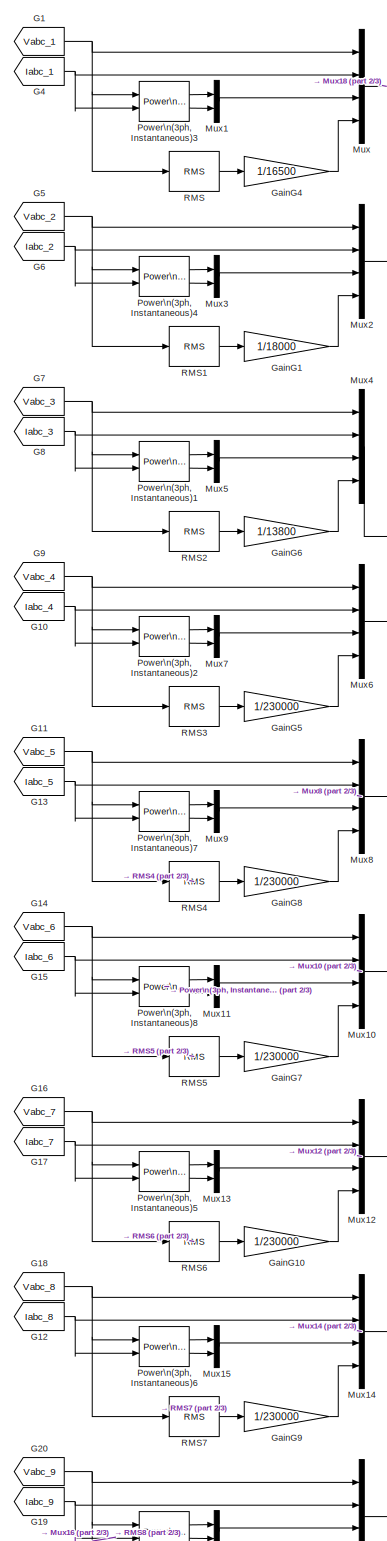
[diagram: SM_System/Measurements - part 1/3, middle left region]
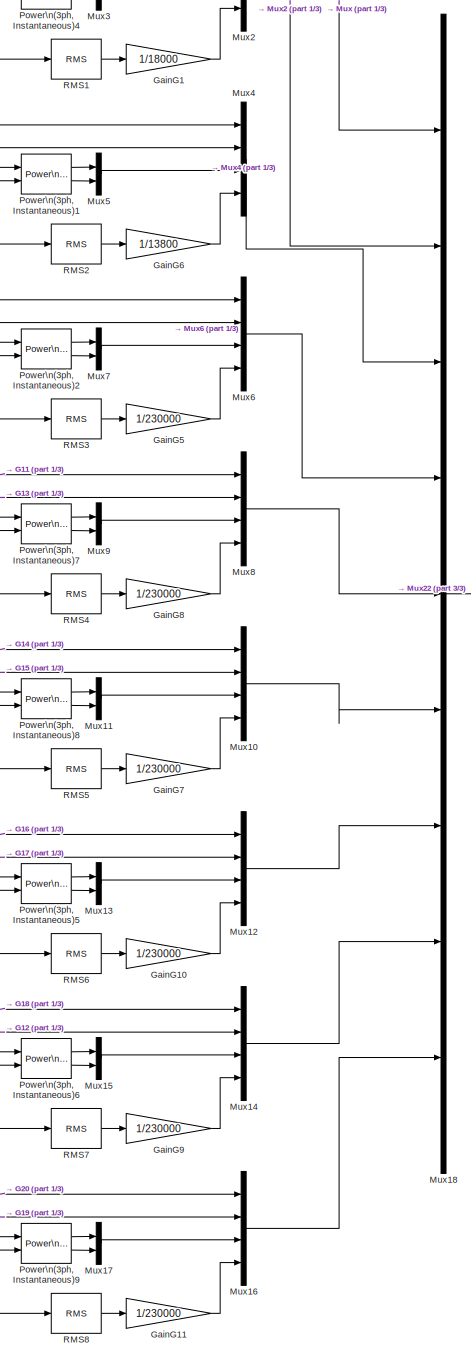
[diagram: SM_System/Measurements - part 2/3, middle left region]
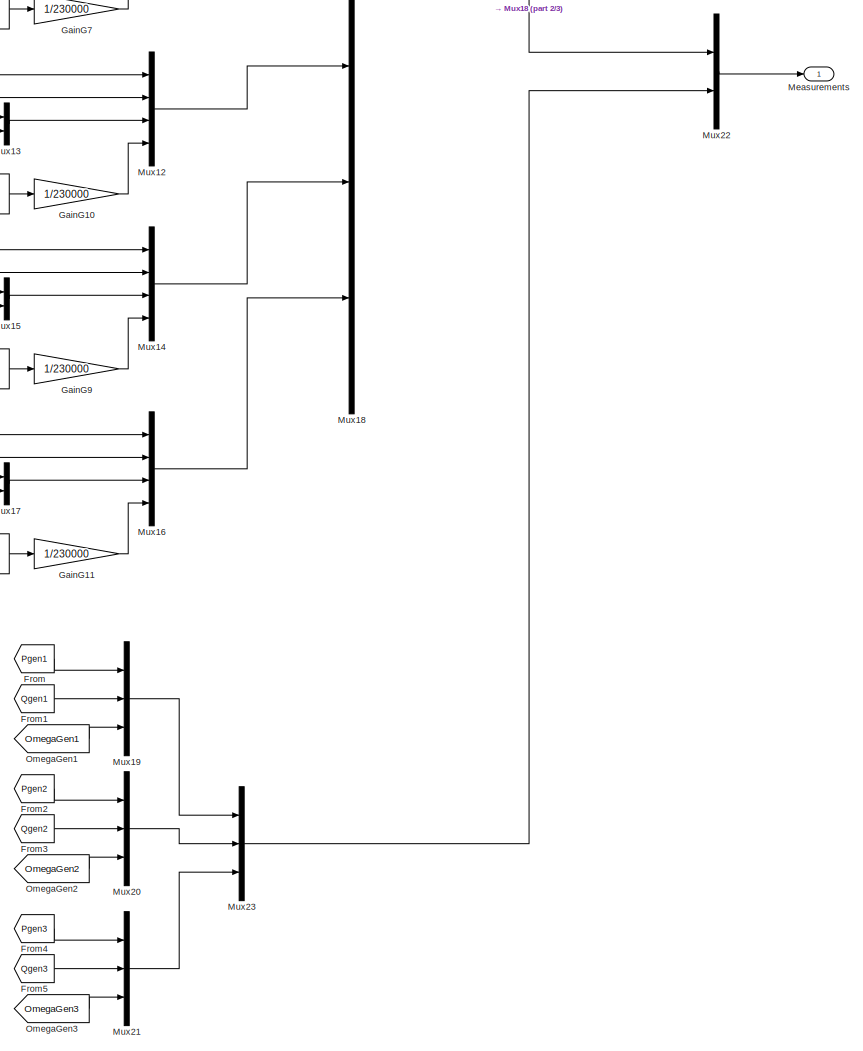
[diagram: SM_System/Measurements - part 3/3, full width, bottom band]
BLOCK [SubSystem] SM_System/Measurements
  Ports = [0, 1]
  RequestExecContextInheritance = off
  SID = 2392
BLOCK [From] SM_System/Measurements/From
  GotoTag = Pgen1
  SID = 2393
  TagVisibility = global
BLOCK [From] SM_System/Measurements/From1
  GotoTag = Qgen1
  SID = 2394
  TagVisibility = global
BLOCK [From] SM_System/Measurements/From2
  GotoTag = Pgen2
  SID = 2395
  TagVisibility = global
BLOCK [From] SM_System/Measurements/From3
  GotoTag = Qgen2
  SID = 2396
  TagVisibility = global
BLOCK [From] SM_System/Measurements/From4
  GotoTag = Pgen3
  SID = 2397
  TagVisibility = global
BLOCK [From] SM_System/Measurements/From5
  GotoTag = Qgen3
  SID = 2398
  TagVisibility = global
BLOCK [From] SM_System/Measurements/G1
  GotoTag = Vabc_1
  SID = 2399
  TagVisibility = global
BLOCK [From] SM_System/Measurements/G10
  GotoTag = Iabc_4
  SID = 2400
  TagVisibility = global
BLOCK [From] SM_System/Measurements/G11
  GotoTag = Vabc_5
  SID = 2401
  TagVisibility = global
BLOCK [From] SM_System/Measurements/G12
  GotoTag = Iabc_8
  SID = 2402
  TagVisibility = global
BLOCK [From] SM_System/Measurements/G13
  GotoTag = Iabc_5
  SID = 2403
  TagVisibility = global
BLOCK [From] SM_System/Measurements/G14
  GotoTag = Vabc_6
  SID = 2404
  TagVisibility = global
BLOCK [From] SM_System/Measurements/G15
  GotoTag = Iabc_6
  SID = 2405
  TagVisibility = global
BLOCK [From] SM_System/Measurements/G16
  GotoTag = Vabc_7
  SID = 2406
  TagVisibility = global
BLOCK [From] SM_System/Measurements/G17
  GotoTag = Iabc_7
  SID = 2407
  TagVisibility = global
BLOCK [From] SM_System/Measurements/G18
  GotoTag = Vabc_8
  SID = 2408
  TagVisibility = global
BLOCK [From] SM_System/Measurements/G19
  GotoTag = Iabc_9
  SID = 2409
  TagVisibility = global
BLOCK [From] SM_System/Measurements/G20
  GotoTag = Vabc_9
  SID = 2410
  TagVisibility = global
BLOCK [From] SM_System/Measurements/G4
  GotoTag = Iabc_1
  SID = 2411
  TagVisibility = global
BLOCK [From] SM_System/Measurements/G5
  GotoTag = Vabc_2
  SID = 2412
  TagVisibility = global
BLOCK [From] SM_System/Measurements/G6
  GotoTag = Iabc_2
  SID = 2413
  TagVisibility = global
BLOCK [From] SM_System/Measurements/G7
  GotoTag = Vabc_3
  SID = 2414
  TagVisibility = global
BLOCK [From] SM_System/Measurements/G8
  GotoTag = Iabc_3
  SID = 2415
  TagVisibility = global
BLOCK [From] SM_System/Measurements/G9
  GotoTag = Vabc_4
  SID = 2416
  TagVisibility = global
BLOCK [Gain] SM_System/Measurements/GainG1
  Gain = 1/18000
  OutDataTypeStr = Inherit: Inherit via internal rule
  ParamDataTypeStr = Inherit: Inherit via internal rule
  SID = 2417
  SaturateOnIntegerOverflow = off
BLOCK [Gain] SM_System/Measurements/GainG10
  Gain = 1/230000
  OutDataTypeStr = Inherit: Inherit via internal rule
  ParamDataTypeStr = Inherit: Inherit via internal rule
  SID = 2418
  SaturateOnIntegerOverflow = off
BLOCK [Gain] SM_System/Measurements/GainG11
  Gain = 1/230000
  OutDataTypeStr = Inherit: Inherit via internal rule
  ParamDataTypeStr = Inherit: Inherit via internal rule
  SID = 2419
  SaturateOnIntegerOverflow = off
BLOCK [Gain] SM_System/Measurements/GainG4
  Gain = 1/16500
  OutDataTypeStr = Inherit: Inherit via internal rule
  ParamDataTypeStr = Inherit: Inherit via internal rule
  SID = 2420
  SaturateOnIntegerOverflow = off
BLOCK [Gain] SM_System/Measurements/GainG5
  Gain = 1/230000
  OutDataTypeStr = Inherit: Inherit via internal rule
  ParamDataTypeStr = Inherit: Inherit via internal rule
  SID = 2421
  SaturateOnIntegerOverflow = off
BLOCK [Gain] SM_System/Measurements/GainG6
  Gain = 1/13800
  OutDataTypeStr = Inherit: Inherit via internal rule
  ParamDataTypeStr = Inherit: Inherit via internal rule
  SID = 2422
  SaturateOnIntegerOverflow = off
BLOCK [Gain] SM_System/Measurements/GainG7
  Gain = 1/230000
  OutDataTypeStr = Inherit: Inherit via internal rule
  ParamDataTypeStr = Inherit: Inherit via internal rule
  SID = 2423
  SaturateOnIntegerOverflow = off
BLOCK [Gain] SM_System/Measurements/GainG8
  Gain = 1/230000
  OutDataTypeStr = Inherit: Inherit via internal rule
  ParamDataTypeStr = Inherit: Inherit via internal rule
  SID = 2424
  SaturateOnIntegerOverflow = off
BLOCK [Gain] SM_System/Measurements/GainG9
  Gain = 1/230000
  OutDataTypeStr = Inherit: Inherit via internal rule
  ParamDataTypeStr = Inherit: Inherit via internal rule
  SID = 2425
  SaturateOnIntegerOverflow = off
BLOCK [Outport] SM_System/Measurements/Measurements
  IconDisplay = Port number
  SID = 2471
BLOCK [Mux] SM_System/Measurements/Mux
  DisplayOption = bar
  Ports = [4, 1]
  SID = 2426
BLOCK [Mux] SM_System/Measurements/Mux1
  DisplayOption = bar
  Inputs = 2
  Ports = [2, 1]
  SID = 2427
BLOCK [Mux] SM_System/Measurements/Mux10
  DisplayOption = bar
  Ports = [4, 1]
  SID = 2428
BLOCK [Mux] SM_System/Measurements/Mux11
  DisplayOption = bar
  Inputs = 2
  Ports = [2, 1]
  SID = 2429
BLOCK [Mux] SM_System/Measurements/Mux12
  DisplayOption = bar
  Ports = [4, 1]
  SID = 2430
BLOCK [Mux] SM_System/Measurements/Mux13
  DisplayOption = bar
  Inputs = 2
  Ports = [2, 1]
  SID = 2431
BLOCK [Mux] SM_System/Measurements/Mux14
  DisplayOption = bar
  Ports = [4, 1]
  SID = 2432
BLOCK [Mux] SM_System/Measurements/Mux15
  DisplayOption = bar
  Inputs = 2
  Ports = [2, 1]
  SID = 2433
BLOCK [Mux] SM_System/Measurements/Mux16
  DisplayOption = bar
  Ports = [4, 1]
  SID = 2434
BLOCK [Mux] SM_System/Measurements/Mux17
  DisplayOption = bar
  Inputs = 2
  Ports = [2, 1]
  SID = 2435
BLOCK [Mux] SM_System/Measurements/Mux18
  DisplayOption = bar
  Inputs = 9
  Ports = [9, 1]
  SID = 2436
BLOCK [Mux] SM_System/Measurements/Mux19
  DisplayOption = bar
  Inputs = 3
  Ports = [3, 1]
  SID = 2437
BLOCK [Mux] SM_System/Measurements/Mux2
  DisplayOption = bar
  Ports = [4, 1]
  SID = 2438
BLOCK [Mux] SM_System/Measurements/Mux20
  DisplayOption = bar
  Inputs = 3
  Ports = [3, 1]
  SID = 2439
BLOCK [Mux] SM_System/Measurements/Mux21
  DisplayOption = bar
  Inputs = 3
  Ports = [3, 1]
  SID = 2440
BLOCK [Mux] SM_System/Measurements/Mux22
  DisplayOption = bar
  Inputs = 2
  Ports = [2, 1]
  SID = 2441
BLOCK [Mux] SM_System/Measurements/Mux23
  DisplayOption = bar
  Inputs = 3
  Ports = [3, 1]
  SID = 2442
BLOCK [Mux] SM_System/Measurements/Mux3
  DisplayOption = bar
  Inputs = 2
  Ports = [2, 1]
  SID = 2443
BLOCK [Mux] SM_System/Measurements/Mux4
  DisplayOption = bar
  Ports = [4, 1]
  SID = 2444
BLOCK [Mux] SM_System/Measurements/Mux5
  DisplayOption = bar
  Inputs = 2
  Ports = [2, 1]
  SID = 2445
BLOCK [Mux] SM_System/Measurements/Mux6
  DisplayOption = bar
  Ports = [4, 1]
  SID = 2446
BLOCK [Mux] SM_System/Measurements/Mux7
  DisplayOption = bar
  Inputs = 2
  Ports = [2, 1]
  SID = 2447
BLOCK [Mux] SM_System/Measurements/Mux8
  DisplayOption = bar
  Ports = [4, 1]
  SID = 2448
BLOCK [Mux] SM_System/Measurements/Mux9
  DisplayOption = bar
  Inputs = 2
  Ports = [2, 1]
  SID = 2449
BLOCK [From] SM_System/Measurements/OmegaGen1
  GotoTag = OmegaGen1
  SID = 2450
  TagVisibility = global
BLOCK [From] SM_System/Measurements/OmegaGen2
  GotoTag = OmegaGen2
  SID = 2451
  TagVisibility = global
BLOCK [From] SM_System/Measurements/OmegaGen3
  GotoTag = OmegaGen3
  SID = 2452
  TagVisibility = global
BLOCK [Reference] SM_System/Measurements/Power\n(3ph, Instantaneous)1  REF=powerlib_meascontrol/Measurements/Power\n(3ph, Instantaneous)
  Ports = [2, 2]
  SID = 2453
  SourceBlock = powerlib_meascontrol/Measurements/Power\n(3ph, Instantaneous)
  SourceType = Power (3ph, Instantaneous)
BLOCK [Reference] SM_System/Measurements/Power\n(3ph, Instantaneous)2  REF=powerlib_meascontrol/Measurements/Power\n(3ph, Instantaneous)
  Ports = [2, 2]
  SID = 2454
  SourceBlock = powerlib_meascontrol/Measurements/Power\n(3ph, Instantaneous)
  SourceType = Power (3ph, Instantaneous)
BLOCK [Reference] SM_System/Measurements/Power\n(3ph, Instantaneous)3  REF=powerlib_meascontrol/Measurements/Power\n(3ph, Instantaneous)
  Ports = [2, 2]
  SID = 2455
  SourceBlock = powerlib_meascontrol/Measurements/Power\n(3ph, Instantaneous)
  SourceType = Power (3ph, Instantaneous)
BLOCK [Reference] SM_System/Measurements/Power\n(3ph, Instantaneous)4  REF=powerlib_meascontrol/Measurements/Power\n(3ph, Instantaneous)
  Ports = [2, 2]
  SID = 2456
  SourceBlock = powerlib_meascontrol/Measurements/Power\n(3ph, Instantaneous)
  SourceType = Power (3ph, Instantaneous)
BLOCK [Reference] SM_System/Measurements/Power\n(3ph, Instantaneous)5  REF=powerlib_meascontrol/Measurements/Power\n(3ph, Instantaneous)
  Ports = [2, 2]
  SID = 2457
  SourceBlock = powerlib_meascontrol/Measurements/Power\n(3ph, Instantaneous)
  SourceType = Power (3ph, Instantaneous)
BLOCK [Reference] SM_System/Measurements/Power\n(3ph, Instantaneous)6  REF=powerlib_meascontrol/Measurements/Power\n(3ph, Instantaneous)
  Ports = [2, 2]
  SID = 2458
  SourceBlock = powerlib_meascontrol/Measurements/Power\n(3ph, Instantaneous)
  SourceType = Power (3ph, Instantaneous)
BLOCK [Reference] SM_System/Measurements/Power\n(3ph, Instantaneous)7  REF=powerlib_meascontrol/Measurements/Power\n(3ph, Instantaneous)
  Ports = [2, 2]
  SID = 2459
  SourceBlock = powerlib_meascontrol/Measurements/Power\n(3ph, Instantaneous)
  SourceType = Power (3ph, Instantaneous)
BLOCK [Reference] SM_System/Measurements/Power\n(3ph, Instantaneous)8  REF=powerlib_meascontrol/Measurements/Power\n(3ph, Instantaneous)
  Ports = [2, 2]
  SID = 2460
  SourceBlock = powerlib_meascontrol/Measurements/Power\n(3ph, Instantaneous)
  SourceType = Power (3ph, Instantaneous)
BLOCK [Reference] SM_System/Measurements/Power\n(3ph, Instantaneous)9  REF=powerlib_meascontrol/Measurements/Power\n(3ph, Instantaneous)
  Ports = [2, 2]
  SID = 2461
  SourceBlock = powerlib_meascontrol/Measurements/Power\n(3ph, Instantaneous)
  SourceType = Power (3ph, Instantaneous)
BLOCK [Reference] SM_System/Measurements/RMS  REF=powerlib_meascontrol/Measurements/RMS
  Freq = 60
  Ports = [1, 1]
  RMSInit = 230
  SID = 2462
  SourceBlock = powerlib_meascontrol/Measurements/RMS
  SourceType = RMS
  TrueRMS = on
  Ts = 0
BLOCK [Reference] SM_System/Measurements/RMS1  REF=powerlib_meascontrol/Measurements/RMS
  Freq = 60
  Ports = [1, 1]
  RMSInit = 230
  SID = 2463
  SourceBlock = powerlib_meascontrol/Measurements/RMS
  SourceType = RMS
  TrueRMS = on
  Ts = 0
BLOCK [Reference] SM_System/Measurements/RMS2  REF=powerlib_meascontrol/Measurements/RMS
  Freq = 60
  Ports = [1, 1]
  RMSInit = 230
  SID = 2464
  SourceBlock = powerlib_meascontrol/Measurements/RMS
  SourceType = RMS
  TrueRMS = on
  Ts = 0
BLOCK [Reference] SM_System/Measurements/RMS3  REF=powerlib_meascontrol/Measurements/RMS
  Freq = 60
  Ports = [1, 1]
  RMSInit = 230
  SID = 2465
  SourceBlock = powerlib_meascontrol/Measurements/RMS
  SourceType = RMS
  TrueRMS = on
  Ts = 0
BLOCK [Reference] SM_System/Measurements/RMS4  REF=powerlib_meascontrol/Measurements/RMS
  Freq = 60
  Ports = [1, 1]
  RMSInit = 230
  SID = 2466
  SourceBlock = powerlib_meascontrol/Measurements/RMS
  SourceType = RMS
  TrueRMS = on
  Ts = 0
BLOCK [Reference] SM_System/Measurements/RMS5  REF=powerlib_meascontrol/Measurements/RMS
  Freq = 60
  Ports = [1, 1]
  RMSInit = 230
  SID = 2467
  SourceBlock = powerlib_meascontrol/Measurements/RMS
  SourceType = RMS
  TrueRMS = on
  Ts = 0
BLOCK [Reference] SM_System/Measurements/RMS6  REF=powerlib_meascontrol/Measurements/RMS
  Freq = 60
  Ports = [1, 1]
  RMSInit = 230
  SID = 2468
  SourceBlock = powerlib_meascontrol/Measurements/RMS
  SourceType = RMS
  TrueRMS = on
  Ts = 0
BLOCK [Reference] SM_System/Measurements/RMS7  REF=powerlib_meascontrol/Measurements/RMS
  Freq = 60
  Ports = [1, 1]
  RMSInit = 230
  SID = 2469
  SourceBlock = powerlib_meascontrol/Measurements/RMS
  SourceType = RMS
  TrueRMS = on
  Ts = 0
BLOCK [Reference] SM_System/Measurements/RMS8  REF=powerlib_meascontrol/Measurements/RMS
  Freq = 60
  Ports = [1, 1]
  RMSInit = 230
  SID = 2470
  SourceBlock = powerlib_meascontrol/Measurements/RMS
  SourceType = RMS
  TrueRMS = on
  Ts = 0
BLOCK [Mux] SM_System/Mux22
  DisplayOption = bar
  Inputs = 2
  Ports = [2, 1]
  SID = 2476
BLOCK [SubSystem] SM_System/OPMonitor
  Ports = [0, 1]
  RequestExecContextInheritance = off
  SID = 2472
BLOCK [Outport] SM_System/OPMonitor/Monitor
  IconDisplay = Port number
  SID = 2475
BLOCK [Mux] SM_System/OPMonitor/Mux8
  DisplayOption = bar
  Inputs = 3
  Ports = [3, 1]
  SID = 2473
BLOCK [Reference] SM_System/OPMonitor/OpMonitor  REF=rtlab/Monitoring/OpMonitor
  Ports = [1, 3]
  SID = 2474
  SourceBlock = rtlab/Monitoring/OpMonitor
  SourceType = OpMonitor
  compute_time = on
  idle_time = off
  nb_overruns = on
  real_step = on
  user_name = my_event_name,another_event_name
  user_time = off
BLOCK [Logic] SM_System/OR
  Operator = OR
  Ports = [2, 1]
  SID = 431
BLOCK [Reference] SM_System/OpComm1  REF=rtlab/OpComm
  Interpolation = on
  Missed_Data = off
  Offset = off
  Ports = [1, 1]
  SID = 432
  Samples = off
  Sim_Time = off
  SourceBlock = rtlab/OpComm
  SourceType = RT-LAB OpComm
  Synchronization = on
  Threshold = 1.0
  dynSigOut = off
  from_console = 1
  groupe_acq = 1
  nbport = 1
  st = Ts
  subsys_rate = Ts
  warning_done = off
  writeOpCommFile = off
BLOCK [Reference] SM_System/OpTrigger  REF=rtlab/DataLogging/OpTrigger
  Acq_Group = 1
  Ports = [2, 1]
  SID = 433
  SourceBlock = rtlab/DataLogging/OpTrigger
  SourceType = OpTrigger
  Trig_Offset = 0
  Trig_Type = TRIGGER SIGNAL >= TRIGGER LEVEL
BLOCK [Terminator] SM_System/Terminator
  SID = 669
BLOCK [Terminator] SM_System/Terminator2
  SID = 670
BLOCK [Constant] SM_System/t0
  SID = 673
  Value = 0
BLOCK [Reference] powergui  REF=powerlib/powergui
  DisableRonSwitches = off
  DisableSnubberDevices = off
  DisableVfSwitches = off
  DisplayEquations = off
  DisplayStyle = 1
  EnableUseOfTLC = off
  ErrMax = 1e-4
  Frange = [0:2:500]
  FreqAxis = off
  FunctionMessages = off
  HookPort = off
  Interpol = off
  Iterations = 50
  MaxFrequency = 1000
  Pbase = 100e6
  Ports = []
  Priority = 1
  ResistiveCurrentMeasurement = off
  RestoreLinks = warning
  RmsSteady = 1
  SID = 680
  SPID = off
  SampleTime = Ts
  ShowGrid = off
  SolverType = Tustin
  SourceBlock = powerlib/powergui
  SourceType = PSB option menu block
  StartTime = 0.0
  SwTol = 0
  Ts = 0
  UnitsV = kV
  UnitsW = MW
  UserData = DataTag0
  UserDataPersistent = on
  Xlog = on
  Ylog = off
  ZoomFFT = on
  cycles = 1
  display = off
  echomessages = off
  frequency = 60
  frequencyindice = 60
  frequencyindicesteady = 1
  fundamental = 60
  methode = off
  save = off
  structure = 0
  variable = ZData
  x0status = steady
ANNOTATION SC_console: System Setting
ANNOTATION SC_console: System Scoping
ANNOTATION SC_console: 7-Three-Phase Bus Transmission and Distribution System
ANNOTATION SC_console: Green for basic setting/scoping
ANNOTATION SC_console: Orange for advanced setting/scoping
ANNOTATION SC_console/Breakers Control1: Breakers Control
ANNOTATION SC_console/Breakers Control1: Zone1
ANNOTATION SC_console/Breakers Control1: Zone2
ANNOTATION SC_console/Breakers Control1: Zone3
ANNOTATION SC_console/Breakers Control1: Zone4
ANNOTATION SC_console/SM_Select: SM1: 1\nSM2: 2\nSM3: 3\nSM4: 4\nSM5: 5
ANNOTATION SC_console/SM_Select: Select Machine for scop
ANNOTATION SM_System: Br_Control & Faults parameters
ANNOTATION SM_System: Faults generator
ANNOTATION SM_System: simulator Trigger
ANNOTATION SM_System/Fault_Gen/faultgen/Tst: Prevents division by 0 at initial step\nif a delay 1/Z is used before hand
ANNOTATION SM_System/Fault_Gen/faultgen/Tst1: Prevents division by 0 at initial step\nif a delay 1/Z is used before hand
LINE SC_console/Breakers Control1/Br10:1 -> SC_console/Breakers Control1/Mux2:3
LINE SC_console/Breakers Control1/Br11:1 -> SC_console/Breakers Control1/Mux3:1
LINE SC_console/Breakers Control1/Br12:1 -> SC_console/Breakers Control1/Mux3:2
LINE SC_console/Breakers Control1/Br13:1 -> SC_console/Breakers Control1/Mux3:3
LINE SC_console/Breakers Control1/Br14:1 -> SC_console/Breakers Control1/Mux3:4
LINE SC_console/Breakers Control1/Br1:1 -> SC_console/Breakers Control1/Mux:1
LINE SC_console/Breakers Control1/Br2:1 -> SC_console/Breakers Control1/Mux:2
LINE SC_console/Breakers Control1/Br3:1 -> SC_console/Breakers Control1/Mux:3
LINE SC_console/Breakers Control1/Br4:1 -> SC_console/Breakers Control1/Mux1:1
LINE SC_console/Breakers Control1/Br5:1 -> SC_console/Breakers Control1/Mux1:2
LINE SC_console/Breakers Control1/Br6:1 -> SC_console/Breakers Control1/Mux1:3
LINE SC_console/Breakers Control1/Br7:1 -> SC_console/Breakers Control1/Mux1:4
LINE SC_console/Breakers Control1/Br8:1 -> SC_console/Breakers Control1/Mux2:1
LINE SC_console/Breakers Control1/Br9:1 -> SC_console/Breakers Control1/Mux2:2
LINE SC_console/Breakers Control1/Constant10:1 -> SC_console/Breakers Control1/Br6:1
LINE SC_console/Breakers Control1/Constant11:1 -> SC_console/Breakers Control1/Br6:2
LINE SC_console/Breakers Control1/Constant12:1 -> SC_console/Breakers Control1/Br7:1
LINE SC_console/Breakers Control1/Constant13:1 -> SC_console/Breakers Control1/Br7:2
LINE SC_console/Breakers Control1/Constant14:1 -> SC_console/Breakers Control1/Br8:1
LINE SC_console/Breakers Control1/Constant15:1 -> SC_console/Breakers Control1/Br8:2
LINE SC_console/Breakers Control1/Constant16:1 -> SC_console/Breakers Control1/Br14:1
LINE SC_console/Breakers Control1/Constant17:1 -> SC_console/Breakers Control1/Br14:2
LINE SC_console/Breakers Control1/Constant18:1 -> SC_console/Breakers Control1/Br10:1
LINE SC_console/Breakers Control1/Constant19:1 -> SC_console/Breakers Control1/Br10:2
LINE SC_console/Breakers Control1/Constant1:1 -> SC_console/Breakers Control1/Br1:2
LINE SC_console/Breakers Control1/Constant20:1 -> SC_console/Breakers Control1/Br9:1
LINE SC_console/Breakers Control1/Constant21:1 -> SC_console/Breakers Control1/Br9:2
LINE SC_console/Breakers Control1/Constant22:1 -> SC_console/Breakers Control1/Br11:1
LINE SC_console/Breakers Control1/Constant23:1 -> SC_console/Breakers Control1/Br11:2
LINE SC_console/Breakers Control1/Constant24:1 -> SC_console/Breakers Control1/Br12:1
LINE SC_console/Breakers Control1/Constant25:1 -> SC_console/Breakers Control1/Br12:2
LINE SC_console/Breakers Control1/Constant26:1 -> SC_console/Breakers Control1/Br13:1
LINE SC_console/Breakers Control1/Constant27:1 -> SC_console/Breakers Control1/Br13:2
LINE SC_console/Breakers Control1/Constant2:1 -> SC_console/Breakers Control1/Br2:1
LINE SC_console/Breakers Control1/Constant3:1 -> SC_console/Breakers Control1/Br2:2
LINE SC_console/Breakers Control1/Constant4:1 -> SC_console/Breakers Control1/Br3:1
LINE SC_console/Breakers Control1/Constant5:1 -> SC_console/Breakers Control1/Br3:2
LINE SC_console/Breakers Control1/Constant6:1 -> SC_console/Breakers Control1/Br4:1
LINE SC_console/Breakers Control1/Constant7:1 -> SC_console/Breakers Control1/Br4:2
LINE SC_console/Breakers Control1/Constant8:1 -> SC_console/Breakers Control1/Br5:1
LINE SC_console/Breakers Control1/Constant9:1 -> SC_console/Breakers Control1/Br5:2
LINE SC_console/Breakers Control1/Constant:1 -> SC_console/Breakers Control1/Br1:1
LINE SC_console/Breakers Control1/Mux1:1 -> SC_console/Breakers Control1/Mux4:2
LINE SC_console/Breakers Control1/Mux2:1 -> SC_console/Breakers Control1/Mux4:3
LINE SC_console/Breakers Control1/Mux3:1 -> SC_console/Breakers Control1/Mux4:4
LINE SC_console/Breakers Control1/Mux4:1 -> SC_console/Breakers Control1/BR_CTRL:1
LINE SC_console/Breakers Control1/Mux:1 -> SC_console/Breakers Control1/Mux4:1
LINE SC_console/Breakers Control1:1 -> SC_console/Mux:1
LINE SC_console/Fault Set1/Constant1:1 -> SC_console/Fault Set1/Mux1:5
LINE SC_console/Fault Set1/Constant2:1 -> SC_console/Fault Set1/Mux1:6
LINE SC_console/Fault Set1/Constant3:1 -> SC_console/Fault Set1/Mux1:7
LINE SC_console/Fault Set1/Constant:1 -> SC_console/Fault Set1/Mux1:4
LINE SC_console/Fault Set1/Mux1:1 -> SC_console/Fault Set1/Out1:1
LINE SC_console/Fault Set1/Tacq:1 -> SC_console/Fault Set1/Mux1:1
LINE SC_console/Fault Set1/Tdrp:1 -> SC_console/Fault Set1/Mux1:3
LINE SC_console/Fault Set1/Tstp:1 -> SC_console/Fault Set1/Mux1:2
LINE SC_console/Fault Set1:1 -> SC_console/Mux:2
LINE SC_console/Mux:1 -> SC_console/ctrl:1
LINE SC_console/OpComm1:1 -> SC_console/Subsystem:1
LINE SC_console/SM_Select/Machine_Select:1 -> SC_console/SM_Select/SM:1
LINE SC_console/SM_Select:1 -> SC_console/Mux:3
NET SC_console/Subsystem/Demux10:1 -> SC_console/Subsystem/Voltage and Current Bus1:1, SC_console/Subsystem/Voltage and Current Bus4:1
NET SC_console/Subsystem/Demux10:2 -> SC_console/Subsystem/Voltage and Current Bus1:2, SC_console/Subsystem/Voltage and Current Bus4:2
LINE SC_console/Subsystem/Demux10:3 -> SC_console/Subsystem/Voltage and Current Bus4:3
LINE SC_console/Subsystem/Demux10:4 -> SC_console/Subsystem/Voltage and Current Bus4:4
LINE SC_console/Subsystem/Demux11:1 -> SC_console/Subsystem/Voltage and Current Bus7:1
LINE SC_console/Subsystem/Demux11:2 -> SC_console/Subsystem/Voltage and Current Bus7:2
LINE SC_console/Subsystem/Demux11:3 -> SC_console/Subsystem/Voltage and Current Bus7:3
LINE SC_console/Subsystem/Demux11:4 -> SC_console/Subsystem/Voltage and Current Bus7:4
LINE SC_console/Subsystem/Demux12:1 -> SC_console/Subsystem/Voltage and Current Bus8:1
LINE SC_console/Subsystem/Demux12:2 -> SC_console/Subsystem/Voltage and Current Bus8:2
LINE SC_console/Subsystem/Demux12:3 -> SC_console/Subsystem/Voltage and Current Bus8:3
LINE SC_console/Subsystem/Demux12:4 -> SC_console/Subsystem/Voltage and Current Bus8:4
LINE SC_console/Subsystem/Demux13:1 -> SC_console/Subsystem/Voltage and Current Bus9:1
LINE SC_console/Subsystem/Demux13:2 -> SC_console/Subsystem/Voltage and Current Bus9:2
LINE SC_console/Subsystem/Demux13:3 -> SC_console/Subsystem/Voltage and Current Bus9:3
LINE SC_console/Subsystem/Demux13:4 -> SC_console/Subsystem/Voltage and Current Bus9:4
LINE SC_console/Subsystem/Demux14:1 -> SC_console/Subsystem/Demux1:1
LINE SC_console/Subsystem/Demux14:2 -> SC_console/Subsystem/Demux5:1
LINE SC_console/Subsystem/Demux1:1 -> SC_console/Subsystem/Demux9:1
LINE SC_console/Subsystem/Demux1:2 -> SC_console/Subsystem/Demux2:1
LINE SC_console/Subsystem/Demux2:1 -> SC_console/Subsystem/Demux6:1
LINE SC_console/Subsystem/Demux2:2 -> SC_console/Subsystem/Demux3:1
LINE SC_console/Subsystem/Demux2:3 -> SC_console/Subsystem/Demux4:1
LINE SC_console/Subsystem/Demux3:1 -> SC_console/Subsystem/Voltage and Current Bus2:3
LINE SC_console/Subsystem/Demux3:2 -> SC_console/Subsystem/Voltage and Current Bus2:4
LINE SC_console/Subsystem/Demux4:1 -> SC_console/Subsystem/Voltage and Current Bus3:3
LINE SC_console/Subsystem/Demux4:2 -> SC_console/Subsystem/Voltage and Current Bus3:4
LINE SC_console/Subsystem/Demux5:1 -> SC_console/Subsystem/siminfo1:1
LINE SC_console/Subsystem/Demux5:2 -> SC_console/Subsystem/siminfo1:2
LINE SC_console/Subsystem/Demux5:3 -> SC_console/Subsystem/siminfo1:3
LINE SC_console/Subsystem/Demux6:1 -> SC_console/Subsystem/Voltage and Current Bus1:3
LINE SC_console/Subsystem/Demux6:2 -> SC_console/Subsystem/Voltage and Current Bus1:4
NET SC_console/Subsystem/Demux7:1 -> SC_console/Subsystem/Voltage and Current Bus2:1, SC_console/Subsystem/Voltage and Current Bus5:1
NET SC_console/Subsystem/Demux7:2 -> SC_console/Subsystem/Voltage and Current Bus2:2, SC_console/Subsystem/Voltage and Current Bus5:2
LINE SC_console/Subsystem/Demux7:3 -> SC_console/Subsystem/Voltage and Current Bus5:3
LINE SC_console/Subsystem/Demux7:4 -> SC_console/Subsystem/Voltage and Current Bus5:4
NET SC_console/Subsystem/Demux8:1 -> SC_console/Subsystem/Voltage and Current Bus3:1, SC_console/Subsystem/Voltage and Current Bus6:1
NET SC_console/Subsystem/Demux8:2 -> SC_console/Subsystem/Voltage and Current Bus3:2, SC_console/Subsystem/Voltage and Current Bus6:2
LINE SC_console/Subsystem/Demux8:3 -> SC_console/Subsystem/Voltage and Current Bus6:3
LINE SC_console/Subsystem/Demux8:4 -> SC_console/Subsystem/Voltage and Current Bus6:4
LINE SC_console/Subsystem/Demux9:1 -> SC_console/Subsystem/Demux10:1
LINE SC_console/Subsystem/Demux9:2 -> SC_console/Subsystem/Demux7:1
LINE SC_console/Subsystem/Demux9:3 -> SC_console/Subsystem/Demux8:1
LINE SC_console/Subsystem/Demux9:4 -> SC_console/Subsystem/Demux11:1
LINE SC_console/Subsystem/Demux9:7 -> SC_console/Subsystem/Demux12:1
LINE SC_console/Subsystem/Demux9:9 -> SC_console/Subsystem/Demux13:1
LINE SC_console/Subsystem/In3:1 -> SC_console/Subsystem/Demux14:1
LINE SC_console/meas:1 -> SC_console/OpComm1:1
LINE SC_console:1 -> SM_System:1
LINE SM_System/==:1 -> SM_System/OR:1
LINE SM_System/Bus_1\n16.5 KV/Kv1:1 -> SM_System/Bus_1\n16.5 KV/Mode V:1
LINE SM_System/Bus_1\n16.5 KV/Kv:1 -> SM_System/Bus_1\n16.5 KV/Mode I:1
LINE SM_System/Bus_1\n16.5 KV/Mode I:1 -> SM_System/Bus_1\n16.5 KV/Iabc:1
LINE SM_System/Bus_1\n16.5 KV/Mode V:1 -> SM_System/Bus_1\n16.5 KV/Vabc:1
LINE SM_System/Bus_1\n16.5 KV/Model:1 -> SM_System/Bus_1\n16.5 KV/Kv1:1
LINE SM_System/Bus_1\n16.5 KV/Model:2 -> SM_System/Bus_1\n16.5 KV/Kv:1
LINE SM_System/Bus_2\n18 KV/Kv1:1 -> SM_System/Bus_2\n18 KV/Mode V:1
LINE SM_System/Bus_2\n18 KV/Kv:1 -> SM_System/Bus_2\n18 KV/Mode I:1
LINE SM_System/Bus_2\n18 KV/Mode I:1 -> SM_System/Bus_2\n18 KV/Iabc:1
LINE SM_System/Bus_2\n18 KV/Mode V:1 -> SM_System/Bus_2\n18 KV/Vabc:1
LINE SM_System/Bus_2\n18 KV/Model:1 -> SM_System/Bus_2\n18 KV/Kv1:1
LINE SM_System/Bus_2\n18 KV/Model:2 -> SM_System/Bus_2\n18 KV/Kv:1
LINE SM_System/Bus_3\n13.8 KV/Kv1:1 -> SM_System/Bus_3\n13.8 KV/Mode V:1
LINE SM_System/Bus_3\n13.8 KV/Kv:1 -> SM_System/Bus_3\n13.8 KV/Mode I:1
LINE SM_System/Bus_3\n13.8 KV/Mode I:1 -> SM_System/Bus_3\n13.8 KV/Iabc:1
LINE SM_System/Bus_3\n13.8 KV/Mode V:1 -> SM_System/Bus_3\n13.8 KV/Vabc:1
LINE SM_System/Bus_3\n13.8 KV/Model:1 -> SM_System/Bus_3\n13.8 KV/Kv1:1
LINE SM_System/Bus_3\n13.8 KV/Model:2 -> SM_System/Bus_3\n13.8 KV/Kv:1
LINE SM_System/Bus_4\n230 KV/Three-Phase\nV-I Measurement1/Kv1:1 -> SM_System/Bus_4\n230 KV/Three-Phase\nV-I Measurement1/Mode V:1
LINE SM_System/Bus_4\n230 KV/Three-Phase\nV-I Measurement1/Kv:1 -> SM_System/Bus_4\n230 KV/Three-Phase\nV-I Measurement1/Mode I:1
LINE SM_System/Bus_4\n230 KV/Three-Phase\nV-I Measurement1/Mode I:1 -> SM_System/Bus_4\n230 KV/Three-Phase\nV-I Measurement1/Iabc:1
LINE SM_System/Bus_4\n230 KV/Three-Phase\nV-I Measurement1/Mode V:1 -> SM_System/Bus_4\n230 KV/Three-Phase\nV-I Measurement1/Vabc:1
LINE SM_System/Bus_4\n230 KV/Three-Phase\nV-I Measurement1/Model:1 -> SM_System/Bus_4\n230 KV/Three-Phase\nV-I Measurement1/Kv1:1
LINE SM_System/Bus_4\n230 KV/Three-Phase\nV-I Measurement1/Model:2 -> SM_System/Bus_4\n230 KV/Three-Phase\nV-I Measurement1/Kv:1
LINE SM_System/Bus_4\n230 KV/Three-Phase\nV-I Measurement3/Kv1:1 -> SM_System/Bus_4\n230 KV/Three-Phase\nV-I Measurement3/Mode V:1
LINE SM_System/Bus_4\n230 KV/Three-Phase\nV-I Measurement3/Kv:1 -> SM_System/Bus_4\n230 KV/Three-Phase\nV-I Measurement3/Mode I:1
LINE SM_System/Bus_4\n230 KV/Three-Phase\nV-I Measurement3/Mode I:1 -> SM_System/Bus_4\n230 KV/Three-Phase\nV-I Measurement3/Iabc:1
LINE SM_System/Bus_4\n230 KV/Three-Phase\nV-I Measurement3/Mode V:1 -> SM_System/Bus_4\n230 KV/Three-Phase\nV-I Measurement3/Vabc:1
LINE SM_System/Bus_4\n230 KV/Three-Phase\nV-I Measurement3/Model:1 -> SM_System/Bus_4\n230 KV/Three-Phase\nV-I Measurement3/Kv1:1
LINE SM_System/Bus_4\n230 KV/Three-Phase\nV-I Measurement3/Model:2 -> SM_System/Bus_4\n230 KV/Three-Phase\nV-I Measurement3/Kv:1
LINE SM_System/Bus_5\n230 KV/Kv1:1 -> SM_System/Bus_5\n230 KV/Mode V:1
LINE SM_System/Bus_5\n230 KV/Kv:1 -> SM_System/Bus_5\n230 KV/Mode I:1
LINE SM_System/Bus_5\n230 KV/Mode I:1 -> SM_System/Bus_5\n230 KV/Iabc:1
LINE SM_System/Bus_5\n230 KV/Mode V:1 -> SM_System/Bus_5\n230 KV/Vabc:1
LINE SM_System/Bus_5\n230 KV/Model:1 -> SM_System/Bus_5\n230 KV/Kv1:1
LINE SM_System/Bus_5\n230 KV/Model:2 -> SM_System/Bus_5\n230 KV/Kv:1
LINE SM_System/Bus_6\n230 KV/Kv1:1 -> SM_System/Bus_6\n230 KV/Mode V:1
LINE SM_System/Bus_6\n230 KV/Kv:1 -> SM_System/Bus_6\n230 KV/Mode I:1
LINE SM_System/Bus_6\n230 KV/Mode I:1 -> SM_System/Bus_6\n230 KV/Iabc:1
LINE SM_System/Bus_6\n230 KV/Mode V:1 -> SM_System/Bus_6\n230 KV/Vabc:1
LINE SM_System/Bus_6\n230 KV/Model:1 -> SM_System/Bus_6\n230 KV/Kv1:1
LINE SM_System/Bus_6\n230 KV/Model:2 -> SM_System/Bus_6\n230 KV/Kv:1
LINE SM_System/Bus_7\n230 KV/Three-Phase\nV-I Measurement1/Kv1:1 -> SM_System/Bus_7\n230 KV/Three-Phase\nV-I Measurement1/Mode V:1
LINE SM_System/Bus_7\n230 KV/Three-Phase\nV-I Measurement1/Kv:1 -> SM_System/Bus_7\n230 KV/Three-Phase\nV-I Measurement1/Mode I:1
LINE SM_System/Bus_7\n230 KV/Three-Phase\nV-I Measurement1/Mode I:1 -> SM_System/Bus_7\n230 KV/Three-Phase\nV-I Measurement1/Iabc:1
LINE SM_System/Bus_7\n230 KV/Three-Phase\nV-I Measurement1/Mode V:1 -> SM_System/Bus_7\n230 KV/Three-Phase\nV-I Measurement1/Vabc:1
LINE SM_System/Bus_7\n230 KV/Three-Phase\nV-I Measurement1/Model:1 -> SM_System/Bus_7\n230 KV/Three-Phase\nV-I Measurement1/Kv1:1
LINE SM_System/Bus_7\n230 KV/Three-Phase\nV-I Measurement1/Model:2 -> SM_System/Bus_7\n230 KV/Three-Phase\nV-I Measurement1/Kv:1
LINE SM_System/Bus_7\n230 KV/Three-Phase\nV-I Measurement3/Kv1:1 -> SM_System/Bus_7\n230 KV/Three-Phase\nV-I Measurement3/Mode V:1
LINE SM_System/Bus_7\n230 KV/Three-Phase\nV-I Measurement3/Kv:1 -> SM_System/Bus_7\n230 KV/Three-Phase\nV-I Measurement3/Mode I:1
LINE SM_System/Bus_7\n230 KV/Three-Phase\nV-I Measurement3/Mode I:1 -> SM_System/Bus_7\n230 KV/Three-Phase\nV-I Measurement3/Iabc:1
LINE SM_System/Bus_7\n230 KV/Three-Phase\nV-I Measurement3/Mode V:1 -> SM_System/Bus_7\n230 KV/Three-Phase\nV-I Measurement3/Vabc:1
LINE SM_System/Bus_7\n230 KV/Three-Phase\nV-I Measurement3/Model:1 -> SM_System/Bus_7\n230 KV/Three-Phase\nV-I Measurement3/Kv1:1
LINE SM_System/Bus_7\n230 KV/Three-Phase\nV-I Measurement3/Model:2 -> SM_System/Bus_7\n230 KV/Three-Phase\nV-I Measurement3/Kv:1
LINE SM_System/Bus_8\n230 KV/Kv1:1 -> SM_System/Bus_8\n230 KV/Mode V:1
LINE SM_System/Bus_8\n230 KV/Kv:1 -> SM_System/Bus_8\n230 KV/Mode I:1
LINE SM_System/Bus_8\n230 KV/Mode I:1 -> SM_System/Bus_8\n230 KV/Iabc:1
LINE SM_System/Bus_8\n230 KV/Mode V:1 -> SM_System/Bus_8\n230 KV/Vabc:1
LINE SM_System/Bus_8\n230 KV/Model:1 -> SM_System/Bus_8\n230 KV/Kv1:1
LINE SM_System/Bus_8\n230 KV/Model:2 -> SM_System/Bus_8\n230 KV/Kv:1
LINE SM_System/Bus_9\n230 KV/Three-Phase\nV-I Measurement1/Kv1:1 -> SM_System/Bus_9\n230 KV/Three-Phase\nV-I Measurement1/Mode V:1
LINE SM_System/Bus_9\n230 KV/Three-Phase\nV-I Measurement1/Kv:1 -> SM_System/Bus_9\n230 KV/Three-Phase\nV-I Measurement1/Mode I:1
LINE SM_System/Bus_9\n230 KV/Three-Phase\nV-I Measurement1/Mode I:1 -> SM_System/Bus_9\n230 KV/Three-Phase\nV-I Measurement1/Iabc:1
LINE SM_System/Bus_9\n230 KV/Three-Phase\nV-I Measurement1/Mode V:1 -> SM_System/Bus_9\n230 KV/Three-Phase\nV-I Measurement1/Vabc:1
LINE SM_System/Bus_9\n230 KV/Three-Phase\nV-I Measurement1/Model:1 -> SM_System/Bus_9\n230 KV/Three-Phase\nV-I Measurement1/Kv1:1
LINE SM_System/Bus_9\n230 KV/Three-Phase\nV-I Measurement1/Model:2 -> SM_System/Bus_9\n230 KV/Three-Phase\nV-I Measurement1/Kv:1
LINE SM_System/Bus_9\n230 KV/Three-Phase\nV-I Measurement3/Kv1:1 -> SM_System/Bus_9\n230 KV/Three-Phase\nV-I Measurement3/Mode V:1
LINE SM_System/Bus_9\n230 KV/Three-Phase\nV-I Measurement3/Kv:1 -> SM_System/Bus_9\n230 KV/Three-Phase\nV-I Measurement3/Mode I:1
LINE SM_System/Bus_9\n230 KV/Three-Phase\nV-I Measurement3/Mode I:1 -> SM_System/Bus_9\n230 KV/Three-Phase\nV-I Measurement3/Iabc:1
LINE SM_System/Bus_9\n230 KV/Three-Phase\nV-I Measurement3/Mode V:1 -> SM_System/Bus_9\n230 KV/Three-Phase\nV-I Measurement3/Vabc:1
LINE SM_System/Bus_9\n230 KV/Three-Phase\nV-I Measurement3/Model:1 -> SM_System/Bus_9\n230 KV/Three-Phase\nV-I Measurement3/Kv1:1
LINE SM_System/Bus_9\n230 KV/Three-Phase\nV-I Measurement3/Model:2 -> SM_System/Bus_9\n230 KV/Three-Phase\nV-I Measurement3/Kv:1
LINE SM_System/Clock:1 -> SM_System/==:1
LINE SM_System/Constant2:1 -> SM_System/OpTrigger:2
LINE SM_System/Demux:1 -> SM_System/Goto7:1
LINE SM_System/Demux:2 -> SM_System/Goto8:1
LINE SM_System/Demux:3 -> SM_System/Goto1:1
LINE SM_System/Fault_Gen/Constant1:1 -> SM_System/Fault_Gen/faultgen:5
LINE SM_System/Fault_Gen/Demux4:1 -> SM_System/Fault_Gen/faultgen:1
LINE SM_System/Fault_Gen/Demux4:2 -> SM_System/Fault_Gen/faultgen:2
LINE SM_System/Fault_Gen/Demux4:3 -> SM_System/Fault_Gen/faultgen:3
NET SM_System/Fault_Gen/Demux4:4 -> SM_System/Fault_Gen/Goto14:1, SM_System/Fault_Gen/faultgen:4
LINE SM_System/Fault_Gen/Demux4:5 -> SM_System/Fault_Gen/Goto16:1
LINE SM_System/Fault_Gen/Demux4:6 -> SM_System/Fault_Gen/Goto1:1
LINE SM_System/Fault_Gen/Demux4:7 -> SM_System/Fault_Gen/Goto2:1
LINE SM_System/Fault_Gen/In1:1 -> SM_System/Fault_Gen/Demux4:1
LINE SM_System/Fault_Gen/Sine Wave:1 -> SM_System/Fault_Gen/faultgen:6
LINE SM_System/Fault_Gen/faultgen/Hit \nCrossing:1 -> SM_System/Fault_Gen/faultgen/sawtooth:2
LINE SM_System/Fault_Gen/faultgen/Product:1 -> SM_System/Fault_Gen/faultgen/fault:1
LINE SM_System/Fault_Gen/faultgen/Subsystem/Bias:1 -> SM_System/Fault_Gen/faultgen/Subsystem/Discrete-Time\nIntegrator1:1
NET SM_System/Fault_Gen/faultgen/Subsystem/Data Type Conversion:1 -> SM_System/Fault_Gen/faultgen/Subsystem/Bias:1, SM_System/Fault_Gen/faultgen/Subsystem/Multiport\nSwitch:2
LINE SM_System/Fault_Gen/faultgen/Subsystem/Demux4:1 -> SM_System/Fault_Gen/faultgen/Subsystem/Product2:1
NET SM_System/Fault_Gen/faultgen/Subsystem/Demux4:2 -> SM_System/Fault_Gen/faultgen/Subsystem/Product2:2, SM_System/Fault_Gen/faultgen/Subsystem/Saturation:1
LINE SM_System/Fault_Gen/faultgen/Subsystem/Discrete-Time\nIntegrator1:1 -> SM_System/Fault_Gen/faultgen/Subsystem/Divide:1
LINE SM_System/Fault_Gen/faultgen/Subsystem/Divide:1 -> SM_System/Fault_Gen/faultgen/Subsystem/Multiport\nSwitch:3
LINE SM_System/Fault_Gen/faultgen/Subsystem/Gain:1 -> SM_System/Fault_Gen/faultgen/Subsystem/Relational\nOperator1:1
LINE SM_System/Fault_Gen/faultgen/Subsystem/Multiport\nSwitch:1 -> SM_System/Fault_Gen/faultgen/Subsystem/Product2:3
LINE SM_System/Fault_Gen/faultgen/Subsystem/Product2:1 -> SM_System/Fault_Gen/faultgen/Subsystem/pertb:1
LINE SM_System/Fault_Gen/faultgen/Subsystem/Relational\nOperator1:1 -> SM_System/Fault_Gen/faultgen/Subsystem/Data Type Conversion:1
LINE SM_System/Fault_Gen/faultgen/Subsystem/Saturation:1 -> SM_System/Fault_Gen/faultgen/Subsystem/Multiport\nSwitch:1
NET SM_System/Fault_Gen/faultgen/Subsystem/Tacq:1 -> SM_System/Fault_Gen/faultgen/Subsystem/Divide:2, SM_System/Fault_Gen/faultgen/Subsystem/Gain:1
LINE SM_System/Fault_Gen/faultgen/Subsystem/pertset:1 -> SM_System/Fault_Gen/faultgen/Subsystem/Demux4:1
LINE SM_System/Fault_Gen/faultgen/Subsystem/swth:1 -> SM_System/Fault_Gen/faultgen/Subsystem/Relational\nOperator1:2
LINE SM_System/Fault_Gen/faultgen/Subsystem:1 -> SM_System/Fault_Gen/faultgen/pertb:1
NET SM_System/Fault_Gen/faultgen/Tacq:1 -> SM_System/Fault_Gen/faultgen/Subsystem:2, SM_System/Fault_Gen/faultgen/sawtooth:1
LINE SM_System/Fault_Gen/faultgen/Tdr_set:1 -> SM_System/Fault_Gen/faultgen/Tst1:1
LINE SM_System/Fault_Gen/faultgen/Tst/Add:1 -> SM_System/Fault_Gen/faultgen/Tst/t:1
LINE SM_System/Fault_Gen/faultgen/Tst/Demux:1 -> SM_System/Fault_Gen/faultgen/Tst/Add:1
NET SM_System/Fault_Gen/faultgen/Tst/Demux:2 -> SM_System/Fault_Gen/faultgen/Tst/Divide:1, SM_System/Fault_Gen/faultgen/Tst/Relational\nOperator:2
LINE SM_System/Fault_Gen/faultgen/Tst/Demux:3 -> SM_System/Fault_Gen/faultgen/Tst/Saturation:1
NET SM_System/Fault_Gen/faultgen/Tst/Discrete-Time\nIntegrtor:1 -> SM_System/Fault_Gen/faultgen/Tst/Add:2, SM_System/Fault_Gen/faultgen/Tst/Memory:1
LINE SM_System/Fault_Gen/faultgen/Tst/Divide:1 -> SM_System/Fault_Gen/faultgen/Tst/Discrete-Time\nIntegrtor:1
LINE SM_System/Fault_Gen/faultgen/Tst/Memory:1 -> SM_System/Fault_Gen/faultgen/Tst/Relational\nOperator:1
LINE SM_System/Fault_Gen/faultgen/Tst/Relational\nOperator:1 -> SM_System/Fault_Gen/faultgen/Tst/Discrete-Time\nIntegrtor:2
LINE SM_System/Fault_Gen/faultgen/Tst/Saturation:1 -> SM_System/Fault_Gen/faultgen/Tst/Divide:2
LINE SM_System/Fault_Gen/faultgen/Tst/T_p:1 -> SM_System/Fault_Gen/faultgen/Tst/Demux:1
LINE SM_System/Fault_Gen/faultgen/Tst1/Add:1 -> SM_System/Fault_Gen/faultgen/Tst1/t:1
LINE SM_System/Fault_Gen/faultgen/Tst1/Demux:1 -> SM_System/Fault_Gen/faultgen/Tst1/Add:1
NET SM_System/Fault_Gen/faultgen/Tst1/Demux:2 -> SM_System/Fault_Gen/faultgen/Tst1/Divide:1, SM_System/Fault_Gen/faultgen/Tst1/Relational\nOperator:2
LINE SM_System/Fault_Gen/faultgen/Tst1/Demux:3 -> SM_System/Fault_Gen/faultgen/Tst1/Saturation:1
NET SM_System/Fault_Gen/faultgen/Tst1/Discrete-Time\nIntegrtor:1 -> SM_System/Fault_Gen/faultgen/Tst1/Add:2, SM_System/Fault_Gen/faultgen/Tst1/Memory:1
LINE SM_System/Fault_Gen/faultgen/Tst1/Divide:1 -> SM_System/Fault_Gen/faultgen/Tst1/Discrete-Time\nIntegrtor:1
LINE SM_System/Fault_Gen/faultgen/Tst1/Memory:1 -> SM_System/Fault_Gen/faultgen/Tst1/Relational\nOperator:1
LINE SM_System/Fault_Gen/faultgen/Tst1/Relational\nOperator:1 -> SM_System/Fault_Gen/faultgen/Tst1/Discrete-Time\nIntegrtor:2
LINE SM_System/Fault_Gen/faultgen/Tst1/Saturation:1 -> SM_System/Fault_Gen/faultgen/Tst1/Divide:2
LINE SM_System/Fault_Gen/faultgen/Tst1/T_p:1 -> SM_System/Fault_Gen/faultgen/Tst1/Demux:1
LINE SM_System/Fault_Gen/faultgen/Tst1:1 -> SM_System/Fault_Gen/faultgen/faultgen:3
LINE SM_System/Fault_Gen/faultgen/Tst:1 -> SM_System/Fault_Gen/faultgen/faultgen:2
LINE SM_System/Fault_Gen/faultgen/Tst_set:1 -> SM_System/Fault_Gen/faultgen/Tst:1
LINE SM_System/Fault_Gen/faultgen/Unit Delay:1 -> SM_System/Fault_Gen/faultgen/Hit \nCrossing:1
LINE SM_System/Fault_Gen/faultgen/faultgen/Add:1 -> SM_System/Fault_Gen/faultgen/faultgen/Relational\nOperator1:2
LINE SM_System/Fault_Gen/faultgen/faultgen/Logical\nOperator:1 -> SM_System/Fault_Gen/faultgen/faultgen/fault:1
LINE SM_System/Fault_Gen/faultgen/faultgen/Relational\nOperator1:1 -> SM_System/Fault_Gen/faultgen/faultgen/Logical\nOperator:2
LINE SM_System/Fault_Gen/faultgen/faultgen/Relational\nOperatr:1 -> SM_System/Fault_Gen/faultgen/faultgen/Logical\nOperator:1
LINE SM_System/Fault_Gen/faultgen/faultgen/Tdur:1 -> SM_System/Fault_Gen/faultgen/faultgen/Add:2
NET SM_System/Fault_Gen/faultgen/faultgen/Tstat:1 -> SM_System/Fault_Gen/faultgen/faultgen/Add:1, SM_System/Fault_Gen/faultgen/faultgen/Relational\nOperatr:2
NET SM_System/Fault_Gen/faultgen/faultgen/t:1 -> SM_System/Fault_Gen/faultgen/faultgen/Relational\nOperator1:1, SM_System/Fault_Gen/faultgen/faultgen/Relational\nOperatr:1
LINE SM_System/Fault_Gen/faultgen/faultgen:1 -> SM_System/Fault_Gen/faultgen/Product:1
LINE SM_System/Fault_Gen/faultgen/faultype:1 -> SM_System/Fault_Gen/faultgen/Product:2
LINE SM_System/Fault_Gen/faultgen/pert_set:1 -> SM_System/Fault_Gen/faultgen/Subsystem:1
LINE SM_System/Fault_Gen/faultgen/pulse:1 -> SM_System/Fault_Gen/faultgen/Unit Delay:1
LINE SM_System/Fault_Gen/faultgen/sawtooth/Constant:1 -> SM_System/Fault_Gen/faultgen/sawtooth/Discrete-Time\nIntegrator:1
LINE SM_System/Fault_Gen/faultgen/sawtooth/Data Type Conversion:1 -> SM_System/Fault_Gen/faultgen/sawtooth/trig:1
NET SM_System/Fault_Gen/faultgen/sawtooth/Discrete-Time\nIntegrator:1 -> SM_System/Fault_Gen/faultgen/sawtooth/Memory:1, SM_System/Fault_Gen/faultgen/sawtooth/Voltage and Current Bus1:1, SM_System/Fault_Gen/faultgen/sawtooth/sawtooth:1
NET SM_System/Fault_Gen/faultgen/sawtooth/Logical\nOperator:1 -> SM_System/Fault_Gen/faultgen/sawtooth/Data Type Conversion:1, SM_System/Fault_Gen/faultgen/sawtooth/Discrete-Time\nIntegrator:2
LINE SM_System/Fault_Gen/faultgen/sawtooth/Memory:1 -> SM_System/Fault_Gen/faultgen/sawtooth/Relational\nOperator:1
LINE SM_System/Fault_Gen/faultgen/sawtooth/Relational\nOperator:1 -> SM_System/Fault_Gen/faultgen/sawtooth/Logical\nOperator:2
LINE SM_System/Fault_Gen/faultgen/sawtooth/Taqu:1 -> SM_System/Fault_Gen/faultgen/sawtooth/Relational\nOperator:2
LINE SM_System/Fault_Gen/faultgen/sawtooth/pules:1 -> SM_System/Fault_Gen/faultgen/sawtooth/Logical\nOperator:1
NET SM_System/Fault_Gen/faultgen/sawtooth:1 -> SM_System/Fault_Gen/faultgen/Subsystem:3, SM_System/Fault_Gen/faultgen/faultgen:1
LINE SM_System/Fault_Gen/faultgen/sawtooth:2 -> SM_System/Fault_Gen/faultgen/trig:1
LINE SM_System/Fault_Gen/faultgen:1 -> SM_System/Fault_Gen/Fault:1
LINE SM_System/Fault_Gen/faultgen:2 -> SM_System/Fault_Gen/Pert:1
LINE SM_System/Fault_Gen/faultgen:3 -> SM_System/Fault_Gen/TTigger:1
LINE SM_System/Fault_Gen:1 -> SM_System/Goto15:1
LINE SM_System/Fault_Gen:2 -> SM_System/Terminator:1
LINE SM_System/Fault_Gen:3 -> SM_System/Goto12:1
LINE SM_System/From21:1 -> SM_System/Fault_Gen:1
LINE SM_System/From24:1 -> SM_System/OR:2
LINE SM_System/From_consol:1 -> SM_System/OpComm1:1
LINE SM_System/Generator BUS1x1/247.5 MVA 16.5kV\n3600 rpm2:1 -> SM_System/Generator BUS1x1/Bus\nSelector3:1
LINE SM_System/Generator BUS1x1/Bus\nSelector3:1 -> SM_System/Generator BUS1x1/Gain:1
LINE SM_System/Generator BUS1x1/Bus\nSelector3:2 -> SM_System/Generator BUS1x1/Gain1:1
LINE SM_System/Generator BUS1x1/Bus\nSelector3:3 -> SM_System/Generator BUS1x1/Excitation\nSystem2:2
LINE SM_System/Generator BUS1x1/Bus\nSelector3:4 -> SM_System/Generator BUS1x1/Excitation\nSystem2:3
LINE SM_System/Generator BUS1x1/Bus\nSelector3:5 -> SM_System/Generator BUS1x1/Steam Turbine\nand Governor1:4
NET SM_System/Generator BUS1x1/Bus\nSelector3:6 -> SM_System/Generator BUS1x1/ Speed (pu)2:1, SM_System/Generator BUS1x1/OmegaGen1:1, SM_System/Generator BUS1x1/Steam Turbine\nand Governor1:3
LINE SM_System/Generator BUS1x1/Bus\nSelector3:7 -> SM_System/Generator BUS1x1/Subsystem1:1
LINE SM_System/Generator BUS1x1/Constant1:1 -> SM_System/Generator BUS1x1/Steam Turbine\nand Governor1:1
LINE SM_System/Generator BUS1x1/Excitation\nSystem2:1 -> SM_System/Generator BUS1x1/247.5 MVA 16.5kV\n3600 rpm2:2
LINE SM_System/Generator BUS1x1/Gain1:1 -> SM_System/Generator BUS1x1/Qgen1:1
LINE SM_System/Generator BUS1x1/Gain:1 -> SM_System/Generator BUS1x1/Pgen1:1
LINE SM_System/Generator BUS1x1/Ground2:1 -> SM_System/Generator BUS1x1/Excitation\nSystem2:4
LINE SM_System/Generator BUS1x1/Pref2:1 -> SM_System/Generator BUS1x1/Steam Turbine\nand Governor1:2
LINE SM_System/Generator BUS1x1/Steam Turbine\nand Governor1:1 -> SM_System/Generator BUS1x1/Subsystem1:2
LINE SM_System/Generator BUS1x1/Steam Turbine\nand Governor1:2 -> SM_System/Generator BUS1x1/Subsystem1:3
LINE SM_System/Generator BUS1x1/Steam Turbine\nand Governor1:3 -> SM_System/Generator BUS1x1/Terminator1:1
LINE SM_System/Generator BUS1x1/Steam Turbine\nand Governor1:4 -> SM_System/Generator BUS1x1/247.5 MVA 16.5kV\n3600 rpm2:1
LINE SM_System/Generator BUS1x1/Subsystem1/Gain:1 -> SM_System/Generator BUS1x1/Subsystem1/T_23:1
LINE SM_System/Generator BUS1x1/Subsystem1/In1:1 -> SM_System/Generator BUS1x1/Subsystem1/Mux:1
LINE SM_System/Generator BUS1x1/Subsystem1/In2:1 -> SM_System/Generator BUS1x1/Subsystem1/Selector:1
LINE SM_System/Generator BUS1x1/Subsystem1/In3:1 -> SM_System/Generator BUS1x1/Subsystem1/Selector1:1
LINE SM_System/Generator BUS1x1/Subsystem1/Mux:1 -> SM_System/Generator BUS1x1/Subsystem1/dw_123:1
LINE SM_System/Generator BUS1x1/Subsystem1/Selector1:1 -> SM_System/Generator BUS1x1/Subsystem1/Gain:1
LINE SM_System/Generator BUS1x1/Subsystem1/Selector:1 -> SM_System/Generator BUS1x1/Subsystem1/Mux:2
LINE SM_System/Generator BUS1x1/Subsystem1:1 -> SM_System/Generator BUS1x1/Turbine1:1
LINE SM_System/Generator BUS1x1/Subsystem1:2 -> SM_System/Generator BUS1x1/Turbine1:2
LINE SM_System/Generator BUS1x1/Va4:1 -> SM_System/Generator BUS1x1/Va Gen:1
LINE SM_System/Generator BUS1x1/Vref2:1 -> SM_System/Generator BUS1x1/Excitation\nSystem2:1
LINE SM_System/Generator BUS2x1/192 MVA 18kV\n3600 rpm2:1 -> SM_System/Generator BUS2x1/Bus\nSelector3:1
LINE SM_System/Generator BUS2x1/Bus\nSelector3:1 -> SM_System/Generator BUS2x1/Gain:1
LINE SM_System/Generator BUS2x1/Bus\nSelector3:2 -> SM_System/Generator BUS2x1/Gain1:1
LINE SM_System/Generator BUS2x1/Bus\nSelector3:3 -> SM_System/Generator BUS2x1/Excitation\nSystem2:2
LINE SM_System/Generator BUS2x1/Bus\nSelector3:4 -> SM_System/Generator BUS2x1/Excitation\nSystem2:3
LINE SM_System/Generator BUS2x1/Bus\nSelector3:5 -> SM_System/Generator BUS2x1/Steam Turbine\nand Governor1:4
NET SM_System/Generator BUS2x1/Bus\nSelector3:6 -> SM_System/Generator BUS2x1/ Speed (pu)2:1, SM_System/Generator BUS2x1/OmegaGen2:1, SM_System/Generator BUS2x1/Steam Turbine\nand Governor1:3
LINE SM_System/Generator BUS2x1/Bus\nSelector3:7 -> SM_System/Generator BUS2x1/Subsystem1:1
LINE SM_System/Generator BUS2x1/Constant1:1 -> SM_System/Generator BUS2x1/Steam Turbine\nand Governor1:1
LINE SM_System/Generator BUS2x1/Excitation\nSystem2:1 -> SM_System/Generator BUS2x1/192 MVA 18kV\n3600 rpm2:2
LINE SM_System/Generator BUS2x1/Gain1:1 -> SM_System/Generator BUS2x1/Qgen2:1
LINE SM_System/Generator BUS2x1/Gain:1 -> SM_System/Generator BUS2x1/Pgen2:1
LINE SM_System/Generator BUS2x1/Ground2:1 -> SM_System/Generator BUS2x1/Excitation\nSystem2:4
LINE SM_System/Generator BUS2x1/Pref2:1 -> SM_System/Generator BUS2x1/Steam Turbine\nand Governor1:2
LINE SM_System/Generator BUS2x1/Steam Turbine\nand Governor1:1 -> SM_System/Generator BUS2x1/Subsystem1:2
LINE SM_System/Generator BUS2x1/Steam Turbine\nand Governor1:2 -> SM_System/Generator BUS2x1/Subsystem1:3
LINE SM_System/Generator BUS2x1/Steam Turbine\nand Governor1:3 -> SM_System/Generator BUS2x1/Terminator1:1
LINE SM_System/Generator BUS2x1/Steam Turbine\nand Governor1:4 -> SM_System/Generator BUS2x1/192 MVA 18kV\n3600 rpm2:1
LINE SM_System/Generator BUS2x1/Subsystem1/Gain:1 -> SM_System/Generator BUS2x1/Subsystem1/T_23:1
LINE SM_System/Generator BUS2x1/Subsystem1/In1:1 -> SM_System/Generator BUS2x1/Subsystem1/Mux:1
LINE SM_System/Generator BUS2x1/Subsystem1/In2:1 -> SM_System/Generator BUS2x1/Subsystem1/Selector:1
LINE SM_System/Generator BUS2x1/Subsystem1/In3:1 -> SM_System/Generator BUS2x1/Subsystem1/Selector1:1
LINE SM_System/Generator BUS2x1/Subsystem1/Mux:1 -> SM_System/Generator BUS2x1/Subsystem1/dw_123:1
LINE SM_System/Generator BUS2x1/Subsystem1/Selector1:1 -> SM_System/Generator BUS2x1/Subsystem1/Gain:1
LINE SM_System/Generator BUS2x1/Subsystem1/Selector:1 -> SM_System/Generator BUS2x1/Subsystem1/Mux:2
LINE SM_System/Generator BUS2x1/Subsystem1:1 -> SM_System/Generator BUS2x1/Turbine1:1
LINE SM_System/Generator BUS2x1/Subsystem1:2 -> SM_System/Generator BUS2x1/Turbine1:2
LINE SM_System/Generator BUS2x1/Va4:1 -> SM_System/Generator BUS2x1/Va Gen:1
LINE SM_System/Generator BUS2x1/Vref2:1 -> SM_System/Generator BUS2x1/Excitation\nSystem2:1
LINE SM_System/Generator BUS3x1/128 MVA 13.8kV\n3600 rpm2:1 -> SM_System/Generator BUS3x1/Bus\nSelector3:1
LINE SM_System/Generator BUS3x1/Bus\nSelector3:1 -> SM_System/Generator BUS3x1/Gain:1
LINE SM_System/Generator BUS3x1/Bus\nSelector3:2 -> SM_System/Generator BUS3x1/Gain1:1
LINE SM_System/Generator BUS3x1/Bus\nSelector3:3 -> SM_System/Generator BUS3x1/Excitation\nSystem2:2
LINE SM_System/Generator BUS3x1/Bus\nSelector3:4 -> SM_System/Generator BUS3x1/Excitation\nSystem2:3
LINE SM_System/Generator BUS3x1/Bus\nSelector3:5 -> SM_System/Generator BUS3x1/Steam Turbine\nand Governor1:4
NET SM_System/Generator BUS3x1/Bus\nSelector3:6 -> SM_System/Generator BUS3x1/ Speed (pu)2:1, SM_System/Generator BUS3x1/OmegaGen3:1, SM_System/Generator BUS3x1/Steam Turbine\nand Governor1:3
LINE SM_System/Generator BUS3x1/Bus\nSelector3:7 -> SM_System/Generator BUS3x1/Subsystem1:1
LINE SM_System/Generator BUS3x1/Constant1:1 -> SM_System/Generator BUS3x1/Steam Turbine\nand Governor1:1
LINE SM_System/Generator BUS3x1/Excitation\nSystem2:1 -> SM_System/Generator BUS3x1/128 MVA 13.8kV\n3600 rpm2:2
LINE SM_System/Generator BUS3x1/Gain1:1 -> SM_System/Generator BUS3x1/Qgen3:1
LINE SM_System/Generator BUS3x1/Gain:1 -> SM_System/Generator BUS3x1/Pgen3:1
LINE SM_System/Generator BUS3x1/Ground2:1 -> SM_System/Generator BUS3x1/Excitation\nSystem2:4
LINE SM_System/Generator BUS3x1/Pref2:1 -> SM_System/Generator BUS3x1/Steam Turbine\nand Governor1:2
LINE SM_System/Generator BUS3x1/Steam Turbine\nand Governor1:1 -> SM_System/Generator BUS3x1/Subsystem1:2
LINE SM_System/Generator BUS3x1/Steam Turbine\nand Governor1:2 -> SM_System/Generator BUS3x1/Subsystem1:3
LINE SM_System/Generator BUS3x1/Steam Turbine\nand Governor1:3 -> SM_System/Generator BUS3x1/Terminator1:1
LINE SM_System/Generator BUS3x1/Steam Turbine\nand Governor1:4 -> SM_System/Generator BUS3x1/128 MVA 13.8kV\n3600 rpm2:1
LINE SM_System/Generator BUS3x1/Subsystem1/Gain:1 -> SM_System/Generator BUS3x1/Subsystem1/T_23:1
LINE SM_System/Generator BUS3x1/Subsystem1/In1:1 -> SM_System/Generator BUS3x1/Subsystem1/Mux:1
LINE SM_System/Generator BUS3x1/Subsystem1/In2:1 -> SM_System/Generator BUS3x1/Subsystem1/Selector:1
LINE SM_System/Generator BUS3x1/Subsystem1/In3:1 -> SM_System/Generator BUS3x1/Subsystem1/Selector1:1
LINE SM_System/Generator BUS3x1/Subsystem1/Mux:1 -> SM_System/Generator BUS3x1/Subsystem1/dw_123:1
LINE SM_System/Generator BUS3x1/Subsystem1/Selector1:1 -> SM_System/Generator BUS3x1/Subsystem1/Gain:1
LINE SM_System/Generator BUS3x1/Subsystem1/Selector:1 -> SM_System/Generator BUS3x1/Subsystem1/Mux:2
LINE SM_System/Generator BUS3x1/Subsystem1:1 -> SM_System/Generator BUS3x1/Turbine1:1
LINE SM_System/Generator BUS3x1/Subsystem1:2 -> SM_System/Generator BUS3x1/Turbine1:2
LINE SM_System/Generator BUS3x1/Va4:1 -> SM_System/Generator BUS3x1/Va Gen:1
LINE SM_System/Generator BUS3x1/Vref2:1 -> SM_System/Generator BUS3x1/Excitation\nSystem2:1
LINE SM_System/Measurements/From1:1 -> SM_System/Measurements/Mux19:2
LINE SM_System/Measurements/From2:1 -> SM_System/Measurements/Mux20:1
LINE SM_System/Measurements/From3:1 -> SM_System/Measurements/Mux20:2
LINE SM_System/Measurements/From4:1 -> SM_System/Measurements/Mux21:1
LINE SM_System/Measurements/From5:1 -> SM_System/Measurements/Mux21:2
LINE SM_System/Measurements/From:1 -> SM_System/Measurements/Mux19:1
NET SM_System/Measurements/G10:1 -> SM_System/Measurements/Mux6:2, SM_System/Measurements/Power\n(3ph, Instantaneous)2:2
NET SM_System/Measurements/G11:1 -> SM_System/Measurements/Mux8:1, SM_System/Measurements/Power\n(3ph, Instantaneous)7:1, SM_System/Measurements/RMS4:1
NET SM_System/Measurements/G12:1 -> SM_System/Measurements/Mux14:2, SM_System/Measurements/Power\n(3ph, Instantaneous)6:2
NET SM_System/Measurements/G13:1 -> SM_System/Measurements/Mux8:2, SM_System/Measurements/Power\n(3ph, Instantaneous)7:2
NET SM_System/Measurements/G14:1 -> SM_System/Measurements/Mux10:1, SM_System/Measurements/Power\n(3ph, Instantaneous)8:1, SM_System/Measurements/RMS5:1
NET SM_System/Measurements/G15:1 -> SM_System/Measurements/Mux10:2, SM_System/Measurements/Power\n(3ph, Instantaneous)8:2
NET SM_System/Measurements/G16:1 -> SM_System/Measurements/Mux12:1, SM_System/Measurements/Power\n(3ph, Instantaneous)5:1, SM_System/Measurements/RMS6:1
NET SM_System/Measurements/G17:1 -> SM_System/Measurements/Mux12:2, SM_System/Measurements/Power\n(3ph, Instantaneous)5:2
NET SM_System/Measurements/G18:1 -> SM_System/Measurements/Mux14:1, SM_System/Measurements/Power\n(3ph, Instantaneous)6:1, SM_System/Measurements/RMS7:1
NET SM_System/Measurements/G19:1 -> SM_System/Measurements/Mux16:2, SM_System/Measurements/Power\n(3ph, Instantaneous)9:2
NET SM_System/Measurements/G1:1 -> SM_System/Measurements/Mux:1, SM_System/Measurements/Power\n(3ph, Instantaneous)3:1, SM_System/Measurements/RMS:1
NET SM_System/Measurements/G20:1 -> SM_System/Measurements/Mux16:1, SM_System/Measurements/Power\n(3ph, Instantaneous)9:1, SM_System/Measurements/RMS8:1
NET SM_System/Measurements/G4:1 -> SM_System/Measurements/Mux:2, SM_System/Measurements/Power\n(3ph, Instantaneous)3:2
NET SM_System/Measurements/G5:1 -> SM_System/Measurements/Mux2:1, SM_System/Measurements/Power\n(3ph, Instantaneous)4:1, SM_System/Measurements/RMS1:1
NET SM_System/Measurements/G6:1 -> SM_System/Measurements/Mux2:2, SM_System/Measurements/Power\n(3ph, Instantaneous)4:2
NET SM_System/Measurements/G7:1 -> SM_System/Measurements/Mux4:1, SM_System/Measurements/Power\n(3ph, Instantaneous)1:1, SM_System/Measurements/RMS2:1
NET SM_System/Measurements/G8:1 -> SM_System/Measurements/Mux4:2, SM_System/Measurements/Power\n(3ph, Instantaneous)1:2
NET SM_System/Measurements/G9:1 -> SM_System/Measurements/Mux6:1, SM_System/Measurements/Power\n(3ph, Instantaneous)2:1, SM_System/Measurements/RMS3:1
LINE SM_System/Measurements/GainG10:1 -> SM_System/Measurements/Mux12:4
LINE SM_System/Measurements/GainG11:1 -> SM_System/Measurements/Mux16:4
LINE SM_System/Measurements/GainG1:1 -> SM_System/Measurements/Mux2:4
LINE SM_System/Measurements/GainG4:1 -> SM_System/Measurements/Mux:4
LINE SM_System/Measurements/GainG5:1 -> SM_System/Measurements/Mux6:4
LINE SM_System/Measurements/GainG6:1 -> SM_System/Measurements/Mux4:4
LINE SM_System/Measurements/GainG7:1 -> SM_System/Measurements/Mux10:4
LINE SM_System/Measurements/GainG8:1 -> SM_System/Measurements/Mux8:4
LINE SM_System/Measurements/GainG9:1 -> SM_System/Measurements/Mux14:4
LINE SM_System/Measurements/Mux10:1 -> SM_System/Measurements/Mux18:6
LINE SM_System/Measurements/Mux11:1 -> SM_System/Measurements/Mux10:3
LINE SM_System/Measurements/Mux12:1 -> SM_System/Measurements/Mux18:7
LINE SM_System/Measurements/Mux13:1 -> SM_System/Measurements/Mux12:3
LINE SM_System/Measurements/Mux14:1 -> SM_System/Measurements/Mux18:8
LINE SM_System/Measurements/Mux15:1 -> SM_System/Measurements/Mux14:3
LINE SM_System/Measurements/Mux16:1 -> SM_System/Measurements/Mux18:9
LINE SM_System/Measurements/Mux17:1 -> SM_System/Measurements/Mux16:3
LINE SM_System/Measurements/Mux18:1 -> SM_System/Measurements/Mux22:1
LINE SM_System/Measurements/Mux19:1 -> SM_System/Measurements/Mux23:1
LINE SM_System/Measurements/Mux1:1 -> SM_System/Measurements/Mux:3
LINE SM_System/Measurements/Mux20:1 -> SM_System/Measurements/Mux23:2
LINE SM_System/Measurements/Mux21:1 -> SM_System/Measurements/Mux23:3
LINE SM_System/Measurements/Mux22:1 -> SM_System/Measurements/Measurements:1
LINE SM_System/Measurements/Mux23:1 -> SM_System/Measurements/Mux22:2
LINE SM_System/Measurements/Mux2:1 -> SM_System/Measurements/Mux18:2
LINE SM_System/Measurements/Mux3:1 -> SM_System/Measurements/Mux2:3
LINE SM_System/Measurements/Mux4:1 -> SM_System/Measurements/Mux18:3
LINE SM_System/Measurements/Mux5:1 -> SM_System/Measurements/Mux4:3
LINE SM_System/Measurements/Mux6:1 -> SM_System/Measurements/Mux18:4
LINE SM_System/Measurements/Mux7:1 -> SM_System/Measurements/Mux6:3
LINE SM_System/Measurements/Mux8:1 -> SM_System/Measurements/Mux18:5
LINE SM_System/Measurements/Mux9:1 -> SM_System/Measurements/Mux8:3
LINE SM_System/Measurements/Mux:1 -> SM_System/Measurements/Mux18:1
LINE SM_System/Measurements/OmegaGen1:1 -> SM_System/Measurements/Mux19:3
LINE SM_System/Measurements/OmegaGen2:1 -> SM_System/Measurements/Mux20:3
LINE SM_System/Measurements/OmegaGen3:1 -> SM_System/Measurements/Mux21:3
LINE SM_System/Measurements/Power\n(3ph, Instantaneous)1:1 -> SM_System/Measurements/Mux5:1
LINE SM_System/Measurements/Power\n(3ph, Instantaneous)1:2 -> SM_System/Measurements/Mux5:2
LINE SM_System/Measurements/Power\n(3ph, Instantaneous)2:1 -> SM_System/Measurements/Mux7:1
LINE SM_System/Measurements/Power\n(3ph, Instantaneous)2:2 -> SM_System/Measurements/Mux7:2
LINE SM_System/Measurements/Power\n(3ph, Instantaneous)3:1 -> SM_System/Measurements/Mux1:1
LINE SM_System/Measurements/Power\n(3ph, Instantaneous)3:2 -> SM_System/Measurements/Mux1:2
LINE SM_System/Measurements/Power\n(3ph, Instantaneous)4:1 -> SM_System/Measurements/Mux3:1
LINE SM_System/Measurements/Power\n(3ph, Instantaneous)4:2 -> SM_System/Measurements/Mux3:2
LINE SM_System/Measurements/Power\n(3ph, Instantaneous)5:1 -> SM_System/Measurements/Mux13:1
LINE SM_System/Measurements/Power\n(3ph, Instantaneous)5:2 -> SM_System/Measurements/Mux13:2
LINE SM_System/Measurements/Power\n(3ph, Instantaneous)6:1 -> SM_System/Measurements/Mux15:1
LINE SM_System/Measurements/Power\n(3ph, Instantaneous)6:2 -> SM_System/Measurements/Mux15:2
LINE SM_System/Measurements/Power\n(3ph, Instantaneous)7:1 -> SM_System/Measurements/Mux9:1
LINE SM_System/Measurements/Power\n(3ph, Instantaneous)7:2 -> SM_System/Measurements/Mux9:2
LINE SM_System/Measurements/Power\n(3ph, Instantaneous)8:1 -> SM_System/Measurements/Mux11:1
LINE SM_System/Measurements/Power\n(3ph, Instantaneous)8:2 -> SM_System/Measurements/Mux11:2
LINE SM_System/Measurements/Power\n(3ph, Instantaneous)9:1 -> SM_System/Measurements/Mux17:1
LINE SM_System/Measurements/Power\n(3ph, Instantaneous)9:2 -> SM_System/Measurements/Mux17:2
LINE SM_System/Measurements/RMS1:1 -> SM_System/Measurements/GainG1:1
LINE SM_System/Measurements/RMS2:1 -> SM_System/Measurements/GainG6:1
LINE SM_System/Measurements/RMS3:1 -> SM_System/Measurements/GainG5:1
LINE SM_System/Measurements/RMS4:1 -> SM_System/Measurements/GainG8:1
LINE SM_System/Measurements/RMS5:1 -> SM_System/Measurements/GainG7:1
LINE SM_System/Measurements/RMS6:1 -> SM_System/Measurements/GainG10:1
LINE SM_System/Measurements/RMS7:1 -> SM_System/Measurements/GainG9:1
LINE SM_System/Measurements/RMS8:1 -> SM_System/Measurements/GainG11:1
LINE SM_System/Measurements/RMS:1 -> SM_System/Measurements/GainG4:1
LINE SM_System/Measurements:1 -> SM_System/Mux22:1
LINE SM_System/Mux22:1 -> SM_System/Acq:1
LINE SM_System/OPMonitor/Mux8:1 -> SM_System/OPMonitor/Monitor:1
LINE SM_System/OPMonitor/OpMonitor:1 -> SM_System/OPMonitor/Mux8:2
LINE SM_System/OPMonitor/OpMonitor:2 -> SM_System/OPMonitor/Mux8:3
LINE SM_System/OPMonitor/OpMonitor:3 -> SM_System/OPMonitor/Mux8:1
LINE SM_System/OPMonitor:1 -> SM_System/Mux22:2
LINE SM_System/OR:1 -> SM_System/OpTrigger:1
LINE SM_System/OpComm1:1 -> SM_System/Demux:1
LINE SM_System/OpTrigger:1 -> SM_System/Terminator2:1
LINE SM_System/t0:1 -> SM_System/==:2
LINE SM_System:1 -> SC_console:1
PNET net1: SM_System/100 MW\n35 MVAR:LConn1 -- SM_System/Bus_8\n230 KV:LConn1 -- SM_System/Line_8-9:LConn1
PNET net2: SM_System/100 MW\n35 MVAR:LConn2 -- SM_System/Bus_8\n230 KV:LConn2 -- SM_System/Line_8-9:LConn2
PNET net3: SM_System/100 MW\n35 MVAR:LConn3 -- SM_System/Bus_8\n230 KV:LConn3 -- SM_System/Line_8-9:LConn3
PNET net4: SM_System/125 MW\n50 MVAR:LConn1 -- SM_System/Bus_5\n230 KV:RConn1 -- SM_System/Line_4-5:RConn1
PNET net5: SM_System/125 MW\n50 MVAR:LConn2 -- SM_System/Bus_5\n230 KV:RConn2 -- SM_System/Line_4-5:RConn2
PNET net6: SM_System/125 MW\n50 MVAR:LConn3 -- SM_System/Bus_5\n230 KV:RConn3 -- SM_System/Line_4-5:RConn3
PNET net7: SM_System/13.8 KV//230 KV\n5.86 %Z:LConn1 -- SM_System/Bus_3\n13.8 KV:LConn1 -- SM_System/Load Flow Bus8:LConn1
PLINE SM_System/13.8 KV//230 KV\n5.86 %Z:LConn2 -- SM_System/Bus_3\n13.8 KV:LConn2
PLINE SM_System/13.8 KV//230 KV\n5.86 %Z:LConn3 -- SM_System/Bus_3\n13.8 KV:LConn3
PLINE SM_System/13.8 KV//230 KV\n5.86 %Z:RConn1 -- SM_System/Bus_9\n230 KV:RConn1
PLINE SM_System/13.8 KV//230 KV\n5.86 %Z:RConn2 -- SM_System/Bus_9\n230 KV:RConn2
PLINE SM_System/13.8 KV//230 KV\n5.86 %Z:RConn3 -- SM_System/Bus_9\n230 KV:RConn3
PNET net8: SM_System/16.5 KV//230 KV\n5.76 %Z     :LConn1 -- SM_System/Bus_1\n16.5 KV:LConn1 -- SM_System/Load Flow Bus:LConn1
PLINE SM_System/16.5 KV//230 KV\n5.76 %Z     :LConn2 -- SM_System/Bus_1\n16.5 KV:LConn2
PLINE SM_System/16.5 KV//230 KV\n5.76 %Z     :LConn3 -- SM_System/Bus_1\n16.5 KV:LConn3
PNET net9: SM_System/16.5 KV//230 KV\n5.76 %Z     :RConn1 -- SM_System/Bus_4\n230 KV:LConn1 -- SM_System/Load Flow Bus1:LConn1
PLINE SM_System/16.5 KV//230 KV\n5.76 %Z     :RConn2 -- SM_System/Bus_4\n230 KV:LConn2
PLINE SM_System/16.5 KV//230 KV\n5.76 %Z     :RConn3 -- SM_System/Bus_4\n230 KV:LConn3
PNET net10: SM_System/18KV//230KV\n6.25 %Z:LConn1 -- SM_System/Bus_2\n18 KV:RConn1 -- SM_System/Load Flow Bus7:LConn1
PLINE SM_System/18KV//230KV\n6.25 %Z:LConn2 -- SM_System/Bus_2\n18 KV:RConn2
PLINE SM_System/18KV//230KV\n6.25 %Z:LConn3 -- SM_System/Bus_2\n18 KV:RConn3
PLINE SM_System/18KV//230KV\n6.25 %Z:RConn1 -- SM_System/Bus_7\n230 KV:LConn1
PLINE SM_System/18KV//230KV\n6.25 %Z:RConn2 -- SM_System/Bus_7\n230 KV:LConn2
PLINE SM_System/18KV//230KV\n6.25 %Z:RConn3 -- SM_System/Bus_7\n230 KV:LConn3
PNET net11: SM_System/90 MW\n30 MVAR:LConn1 -- SM_System/Bus_6\n230 KV:RConn1 -- SM_System/Line_4-6:RConn1
PNET net12: SM_System/90 MW\n30 MVAR:LConn2 -- SM_System/Bus_6\n230 KV:RConn2 -- SM_System/Line_4-6:RConn2
PNET net13: SM_System/90 MW\n30 MVAR:LConn3 -- SM_System/Bus_6\n230 KV:RConn3 -- SM_System/Line_4-6:RConn3
PLINE SM_System/Bus_1\n16.5 KV/A:RConn1 -- SM_System/Bus_1\n16.5 KV/Model:LConn1
PLINE SM_System/Bus_1\n16.5 KV/B:RConn1 -- SM_System/Bus_1\n16.5 KV/Model:LConn2
PLINE SM_System/Bus_1\n16.5 KV/C:RConn1 -- SM_System/Bus_1\n16.5 KV/Model:LConn3
PLINE SM_System/Bus_1\n16.5 KV/Model:RConn1 -- SM_System/Bus_1\n16.5 KV/a:RConn1
PLINE SM_System/Bus_1\n16.5 KV/Model:RConn2 -- SM_System/Bus_1\n16.5 KV/b:RConn1
PLINE SM_System/Bus_1\n16.5 KV/Model:RConn3 -- SM_System/Bus_1\n16.5 KV/c:RConn1
PLINE SM_System/Bus_1\n16.5 KV:RConn1 -- SM_System/Generator BUS1x1:RConn1
PLINE SM_System/Bus_1\n16.5 KV:RConn2 -- SM_System/Generator BUS1x1:RConn2
PLINE SM_System/Bus_1\n16.5 KV:RConn3 -- SM_System/Generator BUS1x1:RConn3
PLINE SM_System/Bus_2\n18 KV/A:RConn1 -- SM_System/Bus_2\n18 KV/Model:LConn1
PLINE SM_System/Bus_2\n18 KV/B:RConn1 -- SM_System/Bus_2\n18 KV/Model:LConn2
PLINE SM_System/Bus_2\n18 KV/C:RConn1 -- SM_System/Bus_2\n18 KV/Model:LConn3
PLINE SM_System/Bus_2\n18 KV/Model:RConn1 -- SM_System/Bus_2\n18 KV/a:RConn1
PLINE SM_System/Bus_2\n18 KV/Model:RConn2 -- SM_System/Bus_2\n18 KV/b:RConn1
PLINE SM_System/Bus_2\n18 KV/Model:RConn3 -- SM_System/Bus_2\n18 KV/c:RConn1
PLINE SM_System/Bus_2\n18 KV:LConn1 -- SM_System/Generator BUS2x1:RConn1
PLINE SM_System/Bus_2\n18 KV:LConn2 -- SM_System/Generator BUS2x1:RConn2
PLINE SM_System/Bus_2\n18 KV:LConn3 -- SM_System/Generator BUS2x1:RConn3
PLINE SM_System/Bus_3\n13.8 KV/A:RConn1 -- SM_System/Bus_3\n13.8 KV/Model:LConn1
PLINE SM_System/Bus_3\n13.8 KV/B:RConn1 -- SM_System/Bus_3\n13.8 KV/Model:LConn2
PLINE SM_System/Bus_3\n13.8 KV/C:RConn1 -- SM_System/Bus_3\n13.8 KV/Model:LConn3
PLINE SM_System/Bus_3\n13.8 KV/Model:RConn1 -- SM_System/Bus_3\n13.8 KV/a:RConn1
PLINE SM_System/Bus_3\n13.8 KV/Model:RConn2 -- SM_System/Bus_3\n13.8 KV/b:RConn1
PLINE SM_System/Bus_3\n13.8 KV/Model:RConn3 -- SM_System/Bus_3\n13.8 KV/c:RConn1
PLINE SM_System/Bus_3\n13.8 KV:RConn1 -- SM_System/Generator BUS3x1:RConn1
PLINE SM_System/Bus_3\n13.8 KV:RConn2 -- SM_System/Generator BUS3x1:RConn2
PLINE SM_System/Bus_3\n13.8 KV:RConn3 -- SM_System/Generator BUS3x1:RConn3
PLINE SM_System/Bus_4\n230 KV/Conn1:RConn1 -- SM_System/Bus_4\n230 KV/Three-Phase\nV-I Measurement1:RConn1
PLINE SM_System/Bus_4\n230 KV/Conn2:RConn1 -- SM_System/Bus_4\n230 KV/Three-Phase\nV-I Measurement1:RConn2
PLINE SM_System/Bus_4\n230 KV/Conn3:RConn1 -- SM_System/Bus_4\n230 KV/Three-Phase\nV-I Measurement1:RConn3
PLINE SM_System/Bus_4\n230 KV/Conn4:RConn1 -- SM_System/Bus_4\n230 KV/Three-Phase\nV-I Measurement3:RConn1
PLINE SM_System/Bus_4\n230 KV/Conn5:RConn1 -- SM_System/Bus_4\n230 KV/Three-Phase\nV-I Measurement3:RConn2
PLINE SM_System/Bus_4\n230 KV/Conn6:RConn1 -- SM_System/Bus_4\n230 KV/Three-Phase\nV-I Measurement3:RConn3
PNET net14: SM_System/Bus_4\n230 KV/Conn7:RConn1 -- SM_System/Bus_4\n230 KV/Three-Phase\nV-I Measurement1:LConn1 -- SM_System/Bus_4\n230 KV/Three-Phase\nV-I Measurement3:LConn1
PNET net15: SM_System/Bus_4\n230 KV/Conn8:RConn1 -- SM_System/Bus_4\n230 KV/Three-Phase\nV-I Measurement1:LConn2 -- SM_System/Bus_4\n230 KV/Three-Phase\nV-I Measurement3:LConn2
PNET net16: SM_System/Bus_4\n230 KV/Conn9:RConn1 -- SM_System/Bus_4\n230 KV/Three-Phase\nV-I Measurement1:LConn3 -- SM_System/Bus_4\n230 KV/Three-Phase\nV-I Measurement3:LConn3
PLINE SM_System/Bus_4\n230 KV/Three-Phase\nV-I Measurement1/A:RConn1 -- SM_System/Bus_4\n230 KV/Three-Phase\nV-I Measurement1/Model:LConn1
PLINE SM_System/Bus_4\n230 KV/Three-Phase\nV-I Measurement1/B:RConn1 -- SM_System/Bus_4\n230 KV/Three-Phase\nV-I Measurement1/Model:LConn2
PLINE SM_System/Bus_4\n230 KV/Three-Phase\nV-I Measurement1/C:RConn1 -- SM_System/Bus_4\n230 KV/Three-Phase\nV-I Measurement1/Model:LConn3
PLINE SM_System/Bus_4\n230 KV/Three-Phase\nV-I Measurement1/Model:RConn1 -- SM_System/Bus_4\n230 KV/Three-Phase\nV-I Measurement1/a:RConn1
PLINE SM_System/Bus_4\n230 KV/Three-Phase\nV-I Measurement1/Model:RConn2 -- SM_System/Bus_4\n230 KV/Three-Phase\nV-I Measurement1/b:RConn1
PLINE SM_System/Bus_4\n230 KV/Three-Phase\nV-I Measurement1/Model:RConn3 -- SM_System/Bus_4\n230 KV/Three-Phase\nV-I Measurement1/c:RConn1
PLINE SM_System/Bus_4\n230 KV/Three-Phase\nV-I Measurement3/A:RConn1 -- SM_System/Bus_4\n230 KV/Three-Phase\nV-I Measurement3/Model:LConn1
PLINE SM_System/Bus_4\n230 KV/Three-Phase\nV-I Measurement3/B:RConn1 -- SM_System/Bus_4\n230 KV/Three-Phase\nV-I Measurement3/Model:LConn2
PLINE SM_System/Bus_4\n230 KV/Three-Phase\nV-I Measurement3/C:RConn1 -- SM_System/Bus_4\n230 KV/Three-Phase\nV-I Measurement3/Model:LConn3
PLINE SM_System/Bus_4\n230 KV/Three-Phase\nV-I Measurement3/Model:RConn1 -- SM_System/Bus_4\n230 KV/Three-Phase\nV-I Measurement3/a:RConn1
PLINE SM_System/Bus_4\n230 KV/Three-Phase\nV-I Measurement3/Model:RConn2 -- SM_System/Bus_4\n230 KV/Three-Phase\nV-I Measurement3/b:RConn1
PLINE SM_System/Bus_4\n230 KV/Three-Phase\nV-I Measurement3/Model:RConn3 -- SM_System/Bus_4\n230 KV/Three-Phase\nV-I Measurement3/c:RConn1
PLINE SM_System/Bus_4\n230 KV:RConn1 -- SM_System/Line_4-5:LConn1
PLINE SM_System/Bus_4\n230 KV:RConn2 -- SM_System/Line_4-5:LConn2
PLINE SM_System/Bus_4\n230 KV:RConn3 -- SM_System/Line_4-5:LConn3
PLINE SM_System/Bus_4\n230 KV:RConn4 -- SM_System/Line_4-6:LConn1
PLINE SM_System/Bus_4\n230 KV:RConn5 -- SM_System/Line_4-6:LConn2
PLINE SM_System/Bus_4\n230 KV:RConn6 -- SM_System/Line_4-6:LConn3
PLINE SM_System/Bus_5\n230 KV/A:RConn1 -- SM_System/Bus_5\n230 KV/Model:LConn1
PLINE SM_System/Bus_5\n230 KV/B:RConn1 -- SM_System/Bus_5\n230 KV/Model:LConn2
PLINE SM_System/Bus_5\n230 KV/C:RConn1 -- SM_System/Bus_5\n230 KV/Model:LConn3
PLINE SM_System/Bus_5\n230 KV/Model:RConn1 -- SM_System/Bus_5\n230 KV/a:RConn1
PLINE SM_System/Bus_5\n230 KV/Model:RConn2 -- SM_System/Bus_5\n230 KV/b:RConn1
PLINE SM_System/Bus_5\n230 KV/Model:RConn3 -- SM_System/Bus_5\n230 KV/c:RConn1
PNET net17: SM_System/Bus_5\n230 KV:LConn1 -- SM_System/Line_5-7:LConn1 -- SM_System/Load Flow Bus2:LConn1
PLINE SM_System/Bus_5\n230 KV:LConn2 -- SM_System/Line_5-7:LConn2
PLINE SM_System/Bus_5\n230 KV:LConn3 -- SM_System/Line_5-7:LConn3
PLINE SM_System/Bus_6\n230 KV/A:RConn1 -- SM_System/Bus_6\n230 KV/Model:LConn1
PLINE SM_System/Bus_6\n230 KV/B:RConn1 -- SM_System/Bus_6\n230 KV/Model:LConn2
PLINE SM_System/Bus_6\n230 KV/C:RConn1 -- SM_System/Bus_6\n230 KV/Model:LConn3
PLINE SM_System/Bus_6\n230 KV/Model:RConn1 -- SM_System/Bus_6\n230 KV/a:RConn1
PLINE SM_System/Bus_6\n230 KV/Model:RConn2 -- SM_System/Bus_6\n230 KV/b:RConn1
PLINE SM_System/Bus_6\n230 KV/Model:RConn3 -- SM_System/Bus_6\n230 KV/c:RConn1
PNET net18: SM_System/Bus_6\n230 KV:LConn1 -- SM_System/Line_6-9:LConn1 -- SM_System/Load Flow Bus3:LConn1
PLINE SM_System/Bus_6\n230 KV:LConn2 -- SM_System/Line_6-9:LConn2
PLINE SM_System/Bus_6\n230 KV:LConn3 -- SM_System/Line_6-9:LConn3
PNET net19: SM_System/Bus_7\n230 KV/Conn10:RConn1 -- SM_System/Bus_7\n230 KV/Conn9:RConn1 -- SM_System/Bus_7\n230 KV/Three-Phase\nV-I Measurement1:LConn3 -- SM_System/Bus_7\n230 KV/Three-Phase\nV-I Measurement3:LConn1
PNET net20: SM_System/Bus_7\n230 KV/Conn11:RConn1 -- SM_System/Bus_7\n230 KV/Conn8:RConn1 -- SM_System/Bus_7\n230 KV/Three-Phase\nV-I Measurement1:LConn2 -- SM_System/Bus_7\n230 KV/Three-Phase\nV-I Measurement3:LConn2
PNET net21: SM_System/Bus_7\n230 KV/Conn12:RConn1 -- SM_System/Bus_7\n230 KV/Conn7:RConn1 -- SM_System/Bus_7\n230 KV/Three-Phase\nV-I Measurement1:LConn1 -- SM_System/Bus_7\n230 KV/Three-Phase\nV-I Measurement3:LConn3
PLINE SM_System/Bus_7\n230 KV/Conn1:RConn1 -- SM_System/Bus_7\n230 KV/Three-Phase\nV-I Measurement1:RConn1
PLINE SM_System/Bus_7\n230 KV/Conn2:RConn1 -- SM_System/Bus_7\n230 KV/Three-Phase\nV-I Measurement1:RConn2
PLINE SM_System/Bus_7\n230 KV/Conn3:RConn1 -- SM_System/Bus_7\n230 KV/Three-Phase\nV-I Measurement1:RConn3
PLINE SM_System/Bus_7\n230 KV/Conn4:RConn1 -- SM_System/Bus_7\n230 KV/Three-Phase\nV-I Measurement3:RConn1
PLINE SM_System/Bus_7\n230 KV/Conn5:RConn1 -- SM_System/Bus_7\n230 KV/Three-Phase\nV-I Measurement3:RConn2
PLINE SM_System/Bus_7\n230 KV/Conn6:RConn1 -- SM_System/Bus_7\n230 KV/Three-Phase\nV-I Measurement3:RConn3
PLINE SM_System/Bus_7\n230 KV/Three-Phase\nV-I Measurement1/A:RConn1 -- SM_System/Bus_7\n230 KV/Three-Phase\nV-I Measurement1/Model:LConn1
PLINE SM_System/Bus_7\n230 KV/Three-Phase\nV-I Measurement1/B:RConn1 -- SM_System/Bus_7\n230 KV/Three-Phase\nV-I Measurement1/Model:LConn2
PLINE SM_System/Bus_7\n230 KV/Three-Phase\nV-I Measurement1/C:RConn1 -- SM_System/Bus_7\n230 KV/Three-Phase\nV-I Measurement1/Model:LConn3
PLINE SM_System/Bus_7\n230 KV/Three-Phase\nV-I Measurement1/Model:RConn1 -- SM_System/Bus_7\n230 KV/Three-Phase\nV-I Measurement1/a:RConn1
PLINE SM_System/Bus_7\n230 KV/Three-Phase\nV-I Measurement1/Model:RConn2 -- SM_System/Bus_7\n230 KV/Three-Phase\nV-I Measurement1/b:RConn1
PLINE SM_System/Bus_7\n230 KV/Three-Phase\nV-I Measurement1/Model:RConn3 -- SM_System/Bus_7\n230 KV/Three-Phase\nV-I Measurement1/c:RConn1
PLINE SM_System/Bus_7\n230 KV/Three-Phase\nV-I Measurement3/A:RConn1 -- SM_System/Bus_7\n230 KV/Three-Phase\nV-I Measurement3/Model:LConn1
PLINE SM_System/Bus_7\n230 KV/Three-Phase\nV-I Measurement3/B:RConn1 -- SM_System/Bus_7\n230 KV/Three-Phase\nV-I Measurement3/Model:LConn2
PLINE SM_System/Bus_7\n230 KV/Three-Phase\nV-I Measurement3/C:RConn1 -- SM_System/Bus_7\n230 KV/Three-Phase\nV-I Measurement3/Model:LConn3
PLINE SM_System/Bus_7\n230 KV/Three-Phase\nV-I Measurement3/Model:RConn1 -- SM_System/Bus_7\n230 KV/Three-Phase\nV-I Measurement3/a:RConn1
PLINE SM_System/Bus_7\n230 KV/Three-Phase\nV-I Measurement3/Model:RConn2 -- SM_System/Bus_7\n230 KV/Three-Phase\nV-I Measurement3/b:RConn1
PLINE SM_System/Bus_7\n230 KV/Three-Phase\nV-I Measurement3/Model:RConn3 -- SM_System/Bus_7\n230 KV/Three-Phase\nV-I Measurement3/c:RConn1
PLINE SM_System/Bus_7\n230 KV:RConn1 -- SM_System/Line_7-8:LConn1
PLINE SM_System/Bus_7\n230 KV:RConn2 -- SM_System/Line_7-8:LConn2
PLINE SM_System/Bus_7\n230 KV:RConn3 -- SM_System/Line_7-8:LConn3
PLINE SM_System/Bus_7\n230 KV:RConn4 -- SM_System/Line_5-7:RConn3
PLINE SM_System/Bus_7\n230 KV:RConn5 -- SM_System/Line_5-7:RConn2
PNET net22: SM_System/Bus_7\n230 KV:RConn6 -- SM_System/Line_5-7:RConn1 -- SM_System/Load Flow Bus4:LConn1
PLINE SM_System/Bus_8\n230 KV/A:RConn1 -- SM_System/Bus_8\n230 KV/Model:LConn1
PLINE SM_System/Bus_8\n230 KV/B:RConn1 -- SM_System/Bus_8\n230 KV/Model:LConn2
PLINE SM_System/Bus_8\n230 KV/C:RConn1 -- SM_System/Bus_8\n230 KV/Model:LConn3
PLINE SM_System/Bus_8\n230 KV/Model:RConn1 -- SM_System/Bus_8\n230 KV/a:RConn1
PLINE SM_System/Bus_8\n230 KV/Model:RConn2 -- SM_System/Bus_8\n230 KV/b:RConn1
PLINE SM_System/Bus_8\n230 KV/Model:RConn3 -- SM_System/Bus_8\n230 KV/c:RConn1
PNET net23: SM_System/Bus_8\n230 KV:RConn1 -- SM_System/Line_7-8:RConn1 -- SM_System/Load Flow Bus6:LConn1
PLINE SM_System/Bus_8\n230 KV:RConn2 -- SM_System/Line_7-8:RConn2
PLINE SM_System/Bus_8\n230 KV:RConn3 -- SM_System/Line_7-8:RConn3
PNET net24: SM_System/Bus_9\n230 KV/Conn10:RConn1 -- SM_System/Bus_9\n230 KV/Conn7:RConn1 -- SM_System/Bus_9\n230 KV/Three-Phase\nV-I Measurement1:LConn1 -- SM_System/Bus_9\n230 KV/Three-Phase\nV-I Measurement3:LConn1
PNET net25: SM_System/Bus_9\n230 KV/Conn11:RConn1 -- SM_System/Bus_9\n230 KV/Conn8:RConn1 -- SM_System/Bus_9\n230 KV/Three-Phase\nV-I Measurement1:LConn2 -- SM_System/Bus_9\n230 KV/Three-Phase\nV-I Measurement3:LConn2
PNET net26: SM_System/Bus_9\n230 KV/Conn12:RConn1 -- SM_System/Bus_9\n230 KV/Conn9:RConn1 -- SM_System/Bus_9\n230 KV/Three-Phase\nV-I Measurement1:LConn3 -- SM_System/Bus_9\n230 KV/Three-Phase\nV-I Measurement3:LConn3
PLINE SM_System/Bus_9\n230 KV/Conn1:RConn1 -- SM_System/Bus_9\n230 KV/Three-Phase\nV-I Measurement1:RConn1
PLINE SM_System/Bus_9\n230 KV/Conn2:RConn1 -- SM_System/Bus_9\n230 KV/Three-Phase\nV-I Measurement1:RConn2
PLINE SM_System/Bus_9\n230 KV/Conn3:RConn1 -- SM_System/Bus_9\n230 KV/Three-Phase\nV-I Measurement1:RConn3
PLINE SM_System/Bus_9\n230 KV/Conn4:RConn1 -- SM_System/Bus_9\n230 KV/Three-Phase\nV-I Measurement3:RConn1
PLINE SM_System/Bus_9\n230 KV/Conn5:RConn1 -- SM_System/Bus_9\n230 KV/Three-Phase\nV-I Measurement3:RConn2
PLINE SM_System/Bus_9\n230 KV/Conn6:RConn1 -- SM_System/Bus_9\n230 KV/Three-Phase\nV-I Measurement3:RConn3
PLINE SM_System/Bus_9\n230 KV/Three-Phase\nV-I Measurement1/A:RConn1 -- SM_System/Bus_9\n230 KV/Three-Phase\nV-I Measurement1/Model:LConn1
PLINE SM_System/Bus_9\n230 KV/Three-Phase\nV-I Measurement1/B:RConn1 -- SM_System/Bus_9\n230 KV/Three-Phase\nV-I Measurement1/Model:LConn2
PLINE SM_System/Bus_9\n230 KV/Three-Phase\nV-I Measurement1/C:RConn1 -- SM_System/Bus_9\n230 KV/Three-Phase\nV-I Measurement1/Model:LConn3
PLINE SM_System/Bus_9\n230 KV/Three-Phase\nV-I Measurement1/Model:RConn1 -- SM_System/Bus_9\n230 KV/Three-Phase\nV-I Measurement1/a:RConn1
PLINE SM_System/Bus_9\n230 KV/Three-Phase\nV-I Measurement1/Model:RConn2 -- SM_System/Bus_9\n230 KV/Three-Phase\nV-I Measurement1/b:RConn1
PLINE SM_System/Bus_9\n230 KV/Three-Phase\nV-I Measurement1/Model:RConn3 -- SM_System/Bus_9\n230 KV/Three-Phase\nV-I Measurement1/c:RConn1
PLINE SM_System/Bus_9\n230 KV/Three-Phase\nV-I Measurement3/A:RConn1 -- SM_System/Bus_9\n230 KV/Three-Phase\nV-I Measurement3/Model:LConn1
PLINE SM_System/Bus_9\n230 KV/Three-Phase\nV-I Measurement3/B:RConn1 -- SM_System/Bus_9\n230 KV/Three-Phase\nV-I Measurement3/Model:LConn2
PLINE SM_System/Bus_9\n230 KV/Three-Phase\nV-I Measurement3/C:RConn1 -- SM_System/Bus_9\n230 KV/Three-Phase\nV-I Measurement3/Model:LConn3
PLINE SM_System/Bus_9\n230 KV/Three-Phase\nV-I Measurement3/Model:RConn1 -- SM_System/Bus_9\n230 KV/Three-Phase\nV-I Measurement3/a:RConn1
PLINE SM_System/Bus_9\n230 KV/Three-Phase\nV-I Measurement3/Model:RConn2 -- SM_System/Bus_9\n230 KV/Three-Phase\nV-I Measurement3/b:RConn1
PLINE SM_System/Bus_9\n230 KV/Three-Phase\nV-I Measurement3/Model:RConn3 -- SM_System/Bus_9\n230 KV/Three-Phase\nV-I Measurement3/c:RConn1
PLINE SM_System/Bus_9\n230 KV:LConn1 -- SM_System/Line_8-9:RConn1
PLINE SM_System/Bus_9\n230 KV:LConn2 -- SM_System/Line_8-9:RConn2
PLINE SM_System/Bus_9\n230 KV:LConn3 -- SM_System/Line_8-9:RConn3
PNET net27: SM_System/Bus_9\n230 KV:LConn4 -- SM_System/Line_6-9:RConn1 -- SM_System/Load Flow Bus5:LConn1
PLINE SM_System/Bus_9\n230 KV:LConn5 -- SM_System/Line_6-9:RConn2
PLINE SM_System/Bus_9\n230 KV:LConn6 -- SM_System/Line_6-9:RConn3
PNET net28: SM_System/Generator BUS1x1/247.5 MVA 16.5kV\n3600 rpm2:RConn1 -- SM_System/Generator BUS1x1/A:RConn1 -- SM_System/Generator BUS1x1/Va4:LConn1
PLINE SM_System/Generator BUS1x1/247.5 MVA 16.5kV\n3600 rpm2:RConn2 -- SM_System/Generator BUS1x1/B:RConn1
PLINE SM_System/Generator BUS1x1/247.5 MVA 16.5kV\n3600 rpm2:RConn3 -- SM_System/Generator BUS1x1/C:RConn1
PLINE SM_System/Generator BUS1x1/Va4:LConn2 -- SM_System/Generator BUS1x1/output Ground5:LConn1
PNET net29: SM_System/Generator BUS2x1/192 MVA 18kV\n3600 rpm2:RConn1 -- SM_System/Generator BUS2x1/A:RConn1 -- SM_System/Generator BUS2x1/Va4:LConn1
PLINE SM_System/Generator BUS2x1/192 MVA 18kV\n3600 rpm2:RConn2 -- SM_System/Generator BUS2x1/B:RConn1
PLINE SM_System/Generator BUS2x1/192 MVA 18kV\n3600 rpm2:RConn3 -- SM_System/Generator BUS2x1/C:RConn1
PLINE SM_System/Generator BUS2x1/Va4:LConn2 -- SM_System/Generator BUS2x1/output Ground5:LConn1
PNET net30: SM_System/Generator BUS3x1/128 MVA 13.8kV\n3600 rpm2:RConn1 -- SM_System/Generator BUS3x1/A:RConn1 -- SM_System/Generator BUS3x1/Va4:LConn1
PLINE SM_System/Generator BUS3x1/128 MVA 13.8kV\n3600 rpm2:RConn2 -- SM_System/Generator BUS3x1/B:RConn1
PLINE SM_System/Generator BUS3x1/128 MVA 13.8kV\n3600 rpm2:RConn3 -- SM_System/Generator BUS3x1/C:RConn1
PLINE SM_System/Generator BUS3x1/Va4:LConn2 -- SM_System/Generator BUS3x1/output Ground5:LConn1
note: NET lines group one-source signal fan-out (src -> all destinations, sorted); 1:1 wires keep LINE; PNET lines group multi-terminal physical nets as a canonical sorted terminal list (undirected conserving connections); 2-terminal nets keep the pairwise PLINE form
